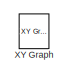
[diagram: root canvas - part 1/6, top left region]
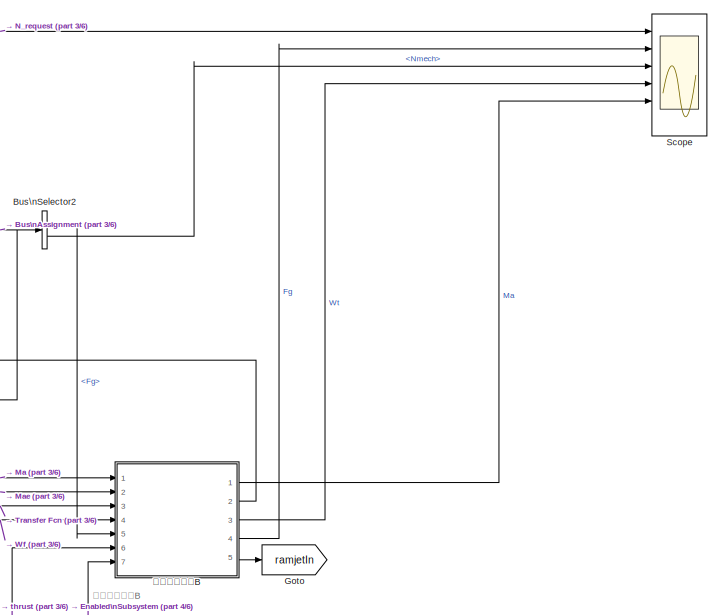
[diagram: root canvas - part 2/6, top right region]
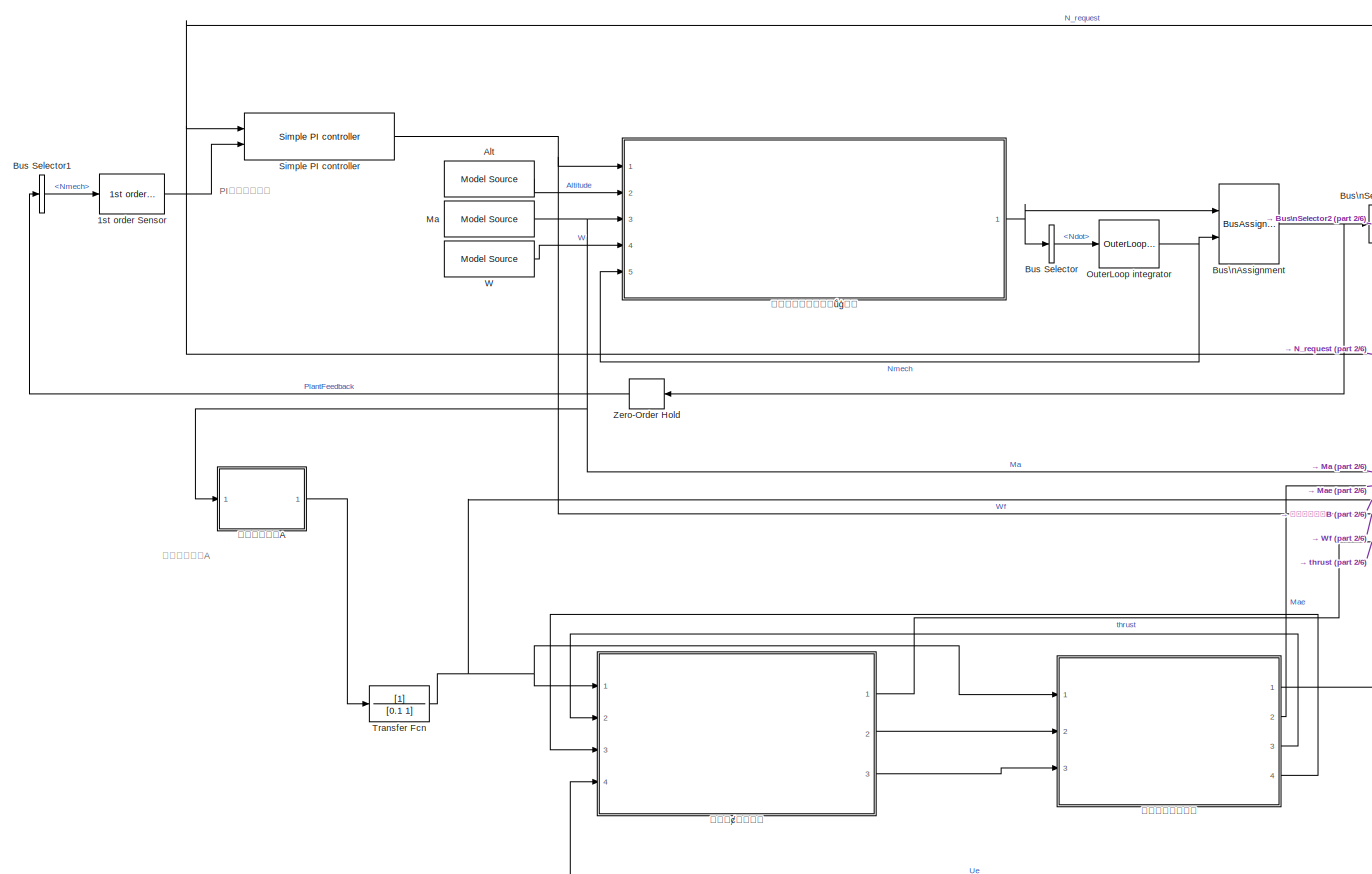
[diagram: root canvas - part 3/6, top center region]
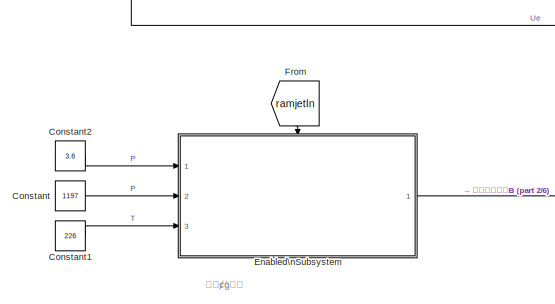
[diagram: root canvas - part 4/6, central region]
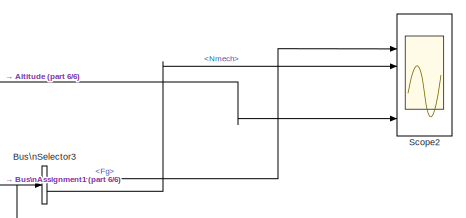
[diagram: root canvas - part 5/6, bottom right region]
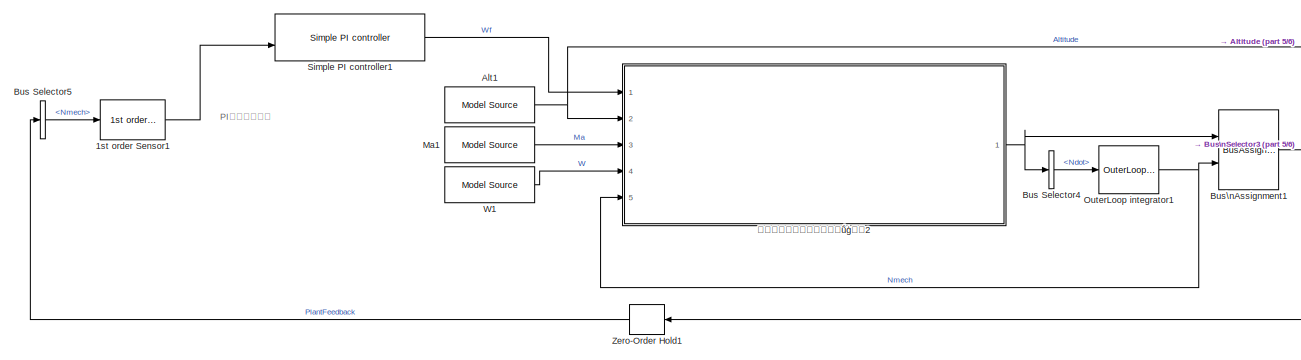
[diagram: root canvas - part 6/6, bottom center region]
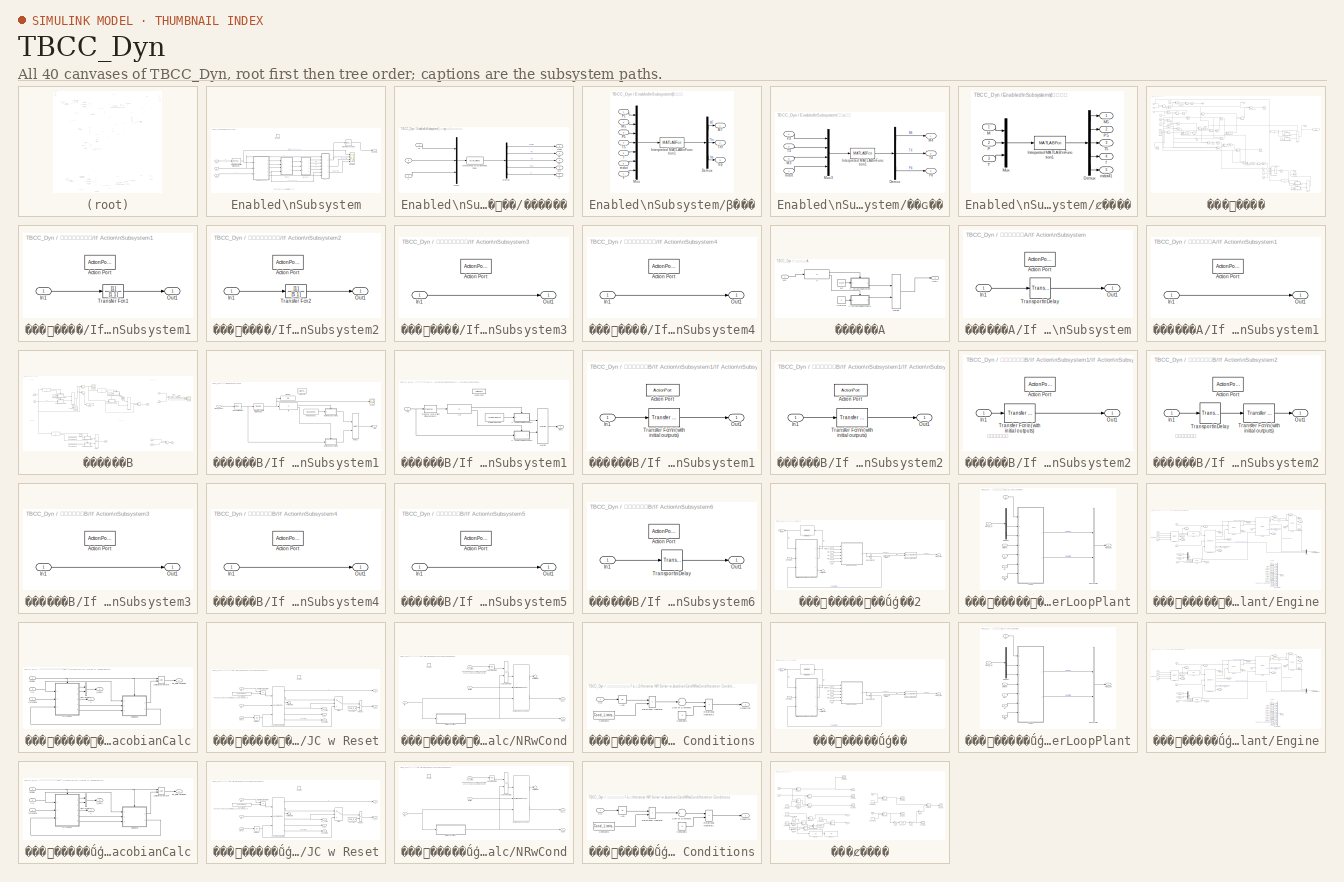
[diagram: thumbnail index - all 40 canvases of the model, root first then tree order]
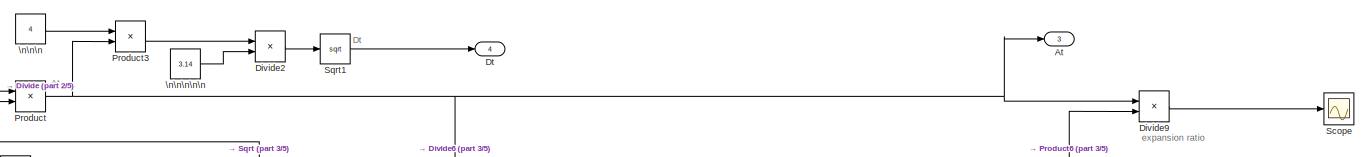
[diagram: ���߶���� - part 1/5, top center region]
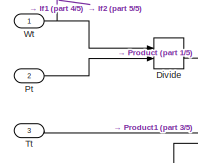
[diagram: ���߶���� - part 2/5, top left region]
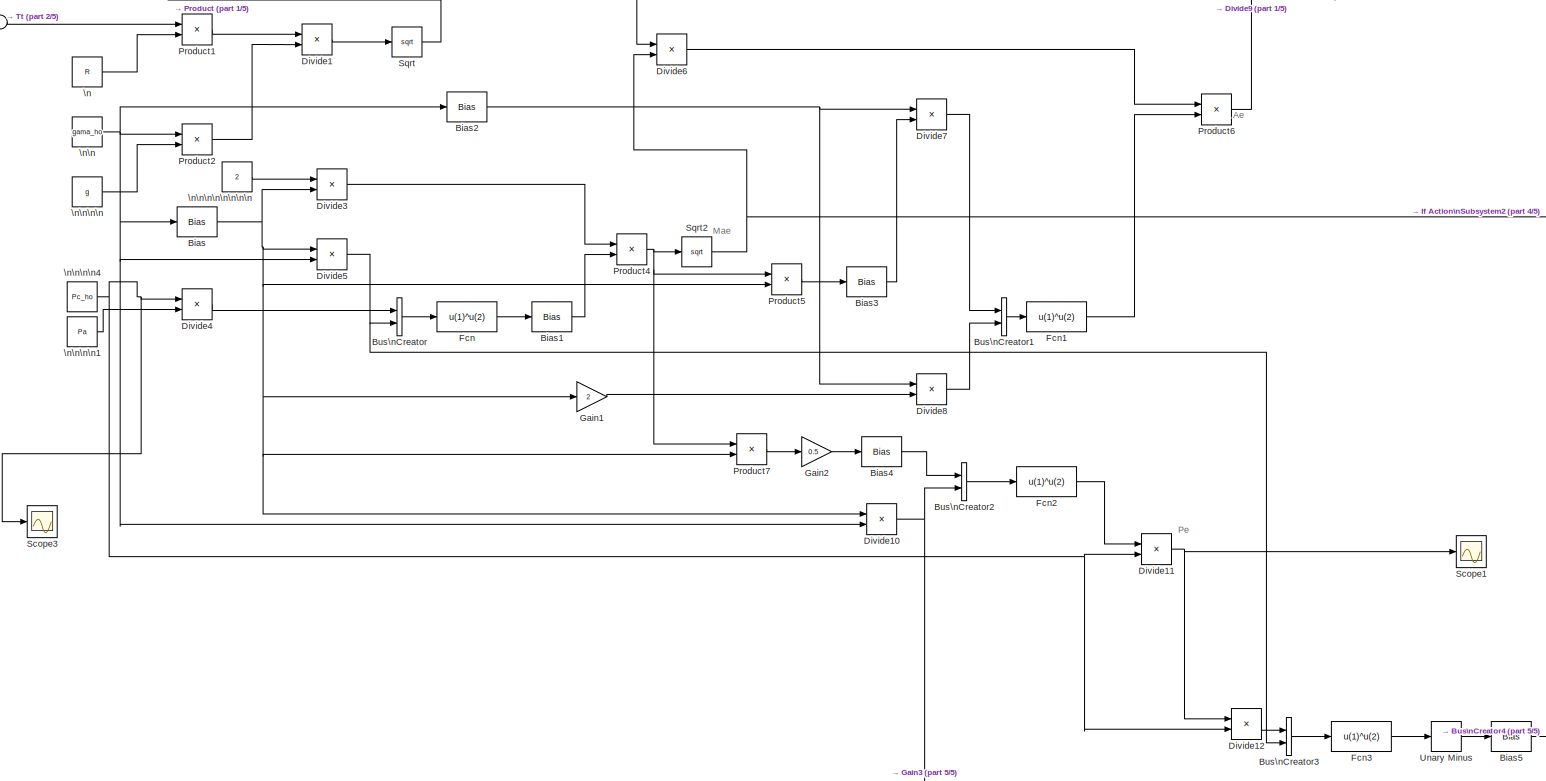
[diagram: ���߶���� - part 3/5, central region]
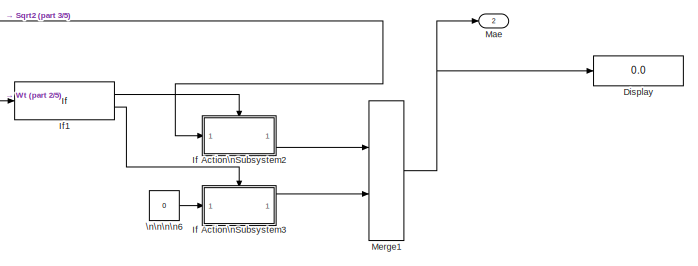
[diagram: ���߶���� - part 4/5, middle right region]
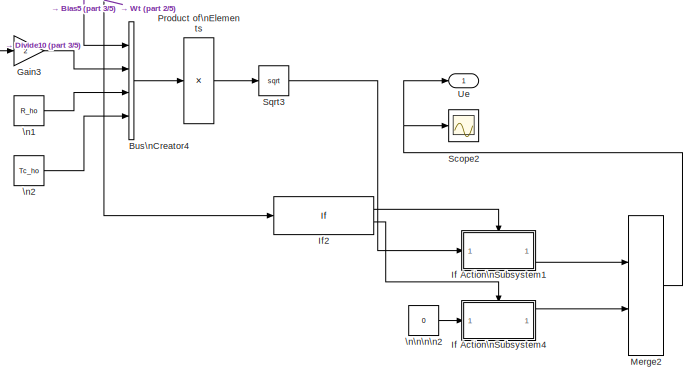
[diagram: ���߶���� - part 5/5, bottom right region]
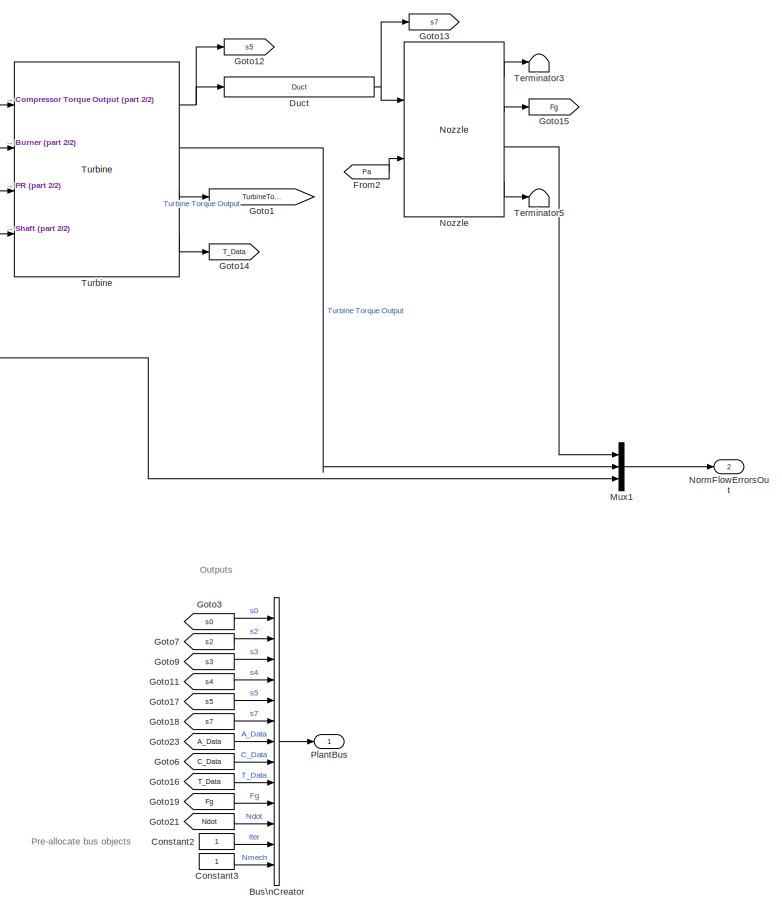
[diagram: ���緢�����ڲ��ṹģ��2/InnerLoopPlant/Engine - part 1/2, right side, full height]
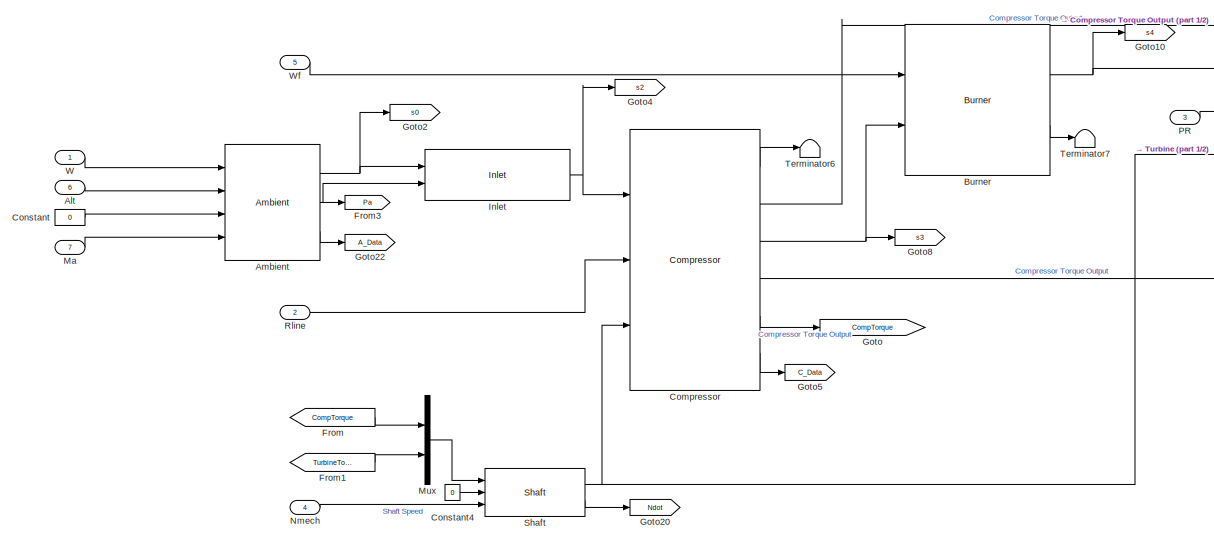
[diagram: ���緢�����ڲ��ṹģ��2/InnerLoopPlant/Engine - part 2/2, middle left region]
MODEL TBCC_Dyn
KIND model
BLOCK [Reference] 1st order  Sensor  REF=Lib_Cntrl_FirstOrderSensor_TMATS/1st order  Sensor
  F_Drift_M = 0
  F_Gain_M = 1
  GN_C_M = 1
  GN_EN_M = off
  GN_MinNoise_M = 0.3
  GN_NST_M = MWS.Solve.T
  Gain_M = 1
  IC_M = MWS.Solve.N_IC
  Ports = [1, 1]
  SID = 618
  Sen_Max_M = 20000
  Sen_Min_M = 0
  SourceBlock = Lib_Cntrl_FirstOrderSensor_TMATS/1st order  Sensor
  SourceType = T-MATS: 1st order sensor Library Block
  Tau_M = 0.05
BLOCK [Reference] 1st order  Sensor1  REF=Lib_Cntrl_FirstOrderSensor_TMATS/1st order  Sensor
  F_Drift_M = 0
  F_Gain_M = 1
  GN_C_M = 1
  GN_EN_M = off
  GN_MinNoise_M = 0.3
  GN_NST_M = MWS.Solve.T
  Gain_M = 1
  IC_M = MWS.Solve.N_IC
  Ports = [1, 1]
  SID = 1632
  Sen_Max_M = 20000
  Sen_Min_M = 0
  SourceBlock = Lib_Cntrl_FirstOrderSensor_TMATS/1st order  Sensor
  SourceType = T-MATS: 1st order sensor Library Block
  Tau_M = 0.05
BLOCK [Reference] Alt  REF=Lib_Solve_ModelSource_TMATS/Model Source
  Ports = [0, 1]
  SID = 604
  SourceBlock = Lib_Solve_ModelSource_TMATS/Model Source
  SourceType = T-MATS: Model Source Library Block
  T_vec_M = MWS.in.t_vec
  input_array_M = MWS.in.Alt
BLOCK [Reference] Alt1  REF=Lib_Solve_ModelSource_TMATS/Model Source
  Ports = [0, 1]
  SID = 1633
  SourceBlock = Lib_Solve_ModelSource_TMATS/Model Source
  SourceType = T-MATS: Model Source Library Block
  T_vec_M = MWS.in.t_vec
  input_array_M = MWS.in.Alt
BLOCK [BusSelector] Bus Selector
  OutputAsBus = off
  OutputSignals = PlantBus.Ndot
  Ports = [1, 1]
  SID = 531
BLOCK [BusSelector] Bus Selector1
  OutputAsBus = off
  OutputSignals = PlantBus.Nmech
  Ports = [1, 1]
  SID = 550
BLOCK [BusSelector] Bus Selector4
  OutputAsBus = off
  OutputSignals = PlantBus.Ndot
  Ports = [1, 1]
  SID = 1636
BLOCK [BusSelector] Bus Selector5
  OutputAsBus = off
  OutputSignals = PlantBus.Nmech
  Ports = [1, 1]
  SID = 1637
BLOCK [BusAssignment] Bus\nAssignment
  AssignedSignals = PlantBus.Nmech
  Ports = [2, 1]
  SID = 758
BLOCK [BusAssignment] Bus\nAssignment1
  AssignedSignals = PlantBus.Nmech
  Ports = [2, 1]
  SID = 1634
BLOCK [BusSelector] Bus\nSelector2
  OutputAsBus = off
  OutputSignals = PlantBus.Fg,PlantBus.Nmech
  Ports = [1, 2]
  SID = 781
BLOCK [BusSelector] Bus\nSelector3
  OutputAsBus = off
  OutputSignals = PlantBus.Fg,PlantBus.Nmech
  Ports = [1, 2]
  SID = 1635
BLOCK [Constant] Constant
  SID = 1760
  Value = 1197
BLOCK [Constant] Constant1
  SID = 1761
  Value = 226
BLOCK [Constant] Constant2
  SID = 1762
  Value = 3.6
BLOCK [SubSystem] Enabled\nSubsystem
  Ports = [3, 1, 1]
  RequestExecContextInheritance = off
  SID = 1535
  TreatAsAtomicUnit = on
BLOCK [EnablePort] Enabled\nSubsystem/Enable
  Ports = []
  SID = 1537
BLOCK [Inport] Enabled\nSubsystem/In1
  IconDisplay = Port number
  SID = 1836
BLOCK [Inport] Enabled\nSubsystem/In2
  IconDisplay = Port number
  Port = 2
  SID = 1837
BLOCK [Inport] Enabled\nSubsystem/In3
  IconDisplay = Port number
  Port = 3
  SID = 1838
BLOCK [Outport] Enabled\nSubsystem/Ma_ram1
  IconDisplay = Port number
  SID = 1816
BLOCK [Scope] Enabled\nSubsystem/Scope1
  Floating = off
  NumInputPorts = 4
  Ports = [4]
  SID = 1763
  ScopeSpecificationString = Simulink.scopes.TimeScopeBlockCfg('CurrentConfiguration', extmgr.ConfigurationSet(extmgr.Configuration('Core','General UI',true,'FigureColor',[1 1 1]),extmgr.Configuration('Core','Source UI',true),extmgr.Configuration('Sources','WiredSimulink',true,'DataLoggingVariableName','ScopeData1'),extmgr.Configuration('Visuals','Time Domain',true,'SerializedDisplays',{struct('MinYLimReal','2.54346','MaxYLim...<+3605ch>
BLOCK [SignalConversion] Enabled\nSubsystem/Signal\nConversion
  OverrideOpt = off
  SID = 1765
BLOCK [Reference] Enabled\nSubsystem/Transfer Fcn\n(with initial outputs)  REF=simulink_extras/Additional\nLinear/Transfer Fcn\n(with initial outputs)
  D = [2  1]
  N = [1]
  Ports = [1, 1]
  SID = 1766
  SourceBlock = simulink_extras/Additional\nLinear/Transfer Fcn\n(with initial outputs)
  SourceProductBaseCode = SL
  SourceProductName = Simulink
  SourceType = Transfer Function with Initial Outputs
  U0 = 0
  Y0 = 2.6
BLOCK [SubSystem] Enabled\nSubsystem/À<copyright redacted>
  Ports = [4, 3]
  RequestExecContextInheritance = off
  SID = 1793
BLOCK [Demux] Enabled\nSubsystem/À<copyright redacted>
  DisplayOption = bar
  Outputs = 3
  Ports = [1, 3]
  SID = 1798
BLOCK [MATLABFcn] Enabled\nSubsystem/À<copyright redacted>\nFunction1
  MATLABFcn = diffuser(u(1),u(2),u(3),u(4))
  OutputDimensions = 3
  Ports = [1, 1]
  SID = 1799
BLOCK [Inport] Enabled\nSubsystem/À<copyright redacted>
  IconDisplay = Port number
  Port = 3
  SID = 1796
BLOCK [Outport] Enabled\nSubsystem/À<copyright redacted>
  IconDisplay = Port number
  SID = 1801
BLOCK [Mux] Enabled\nSubsystem/À<copyright redacted>
  DisplayOption = bar
  Ports = [4, 1]
  SID = 1800
BLOCK [Inport] Enabled\nSubsystem/À<copyright redacted>
  IconDisplay = Port number
  SID = 1794
BLOCK [Outport] Enabled\nSubsystem/À<copyright redacted>
  IconDisplay = Port number
  Port = 3
  SID = 1803
BLOCK [Inport] Enabled\nSubsystem/À<copyright redacted>
  IconDisplay = Port number
  Port = 2
  SID = 1795
BLOCK [Outport] Enabled\nSubsystem/À<copyright redacted>
  IconDisplay = Port number
  Port = 2
  SID = 1802
BLOCK [Inport] Enabled\nSubsystem/À<copyright redacted>
  IconDisplay = Port number
  Port = 4
  SID = 1797
BLOCK [SubSystem] Enabled\nSubsystem/前体压缩//½øÆøµÀ
  Ports = [3, 5]
  RequestExecContextInheritance = off
  SID = 1767
BLOCK [Demux] Enabled\nSubsystem/前体压缩//½øÆøµÀ/Demux
  DisplayOption = bar
  Outputs = 5
  Ports = [1, 5]
  SID = 1771
BLOCK [Outport] Enabled\nSubsystem/前体压缩//½øÆøµÀ/F
  IconDisplay = Port number
  Port = 5
  SID = 1778
BLOCK [MATLABFcn] Enabled\nSubsystem/前体压缩//½øÆøµÀ/Interpreted MATLAB\nFunction1
  MATLABFcn = inlet_v(u(1),u(2),u(3))
  OutputDimensions = 5
  Ports = [1, 1]
  SID = 1772
BLOCK [Inport] Enabled\nSubsystem/前体压缩//½øÆøµÀ/M
  IconDisplay = Port number
  SID = 1768
BLOCK [Outport] Enabled\nSubsystem/前体压缩//½øÆøµÀ/M3
  IconDisplay = Port number
  Port = 3
  SID = 1776
BLOCK [Mux] Enabled\nSubsystem/前体压缩//½øÆøµÀ/Mux3
  DisplayOption = bar
  Inputs = 3
  Ports = [3, 1]
  SID = 1773
BLOCK [Inport] Enabled\nSubsystem/前体压缩//½øÆøµÀ/P
  IconDisplay = Port number
  Port = 2
  SID = 1769
BLOCK [Outport] Enabled\nSubsystem/前体压缩//½øÆøµÀ/P3
  IconDisplay = Port number
  SID = 1774
BLOCK [Inport] Enabled\nSubsystem/前体压缩//½øÆøµÀ/T
  IconDisplay = Port number
  Port = 3
  SID = 1770
BLOCK [Outport] Enabled\nSubsystem/前体压缩//½øÆøµÀ/T3
  IconDisplay = Port number
  Port = 2
  SID = 1775
BLOCK [Outport] Enabled\nSubsystem/前体压缩//½øÆøµÀ/mdot
  IconDisplay = Port number
  Port = 4
  SID = 1777
BLOCK [SubSystem] Enabled\nSubsystem/È¼ÉÕÊÒ
  Ports = [3, 5]
  RequestExecContextInheritance = off
  SID = 1804
BLOCK [Demux] Enabled\nSubsystem/È¼ÉÕÊÒ/Demux
  DisplayOption = bar
  Outputs = 5
  Ports = [1, 5]
  SID = 1808
BLOCK [MATLABFcn] Enabled\nSubsystem/È¼ÉÕÊÒ/Interpreted MATLAB\nFunction1
  MATLABFcn = combustion(u(1),u(2),u(3))
  OutputDimensions = 5
  Ports = [1, 1]
  SID = 1809
BLOCK [Inport] Enabled\nSubsystem/È¼ÉÕÊÒ/M
  IconDisplay = Port number
  SID = 1805
BLOCK [Outport] Enabled\nSubsystem/È¼ÉÕÊÒ/M5
  IconDisplay = Port number
  SID = 1811
BLOCK [Mux] Enabled\nSubsystem/È¼ÉÕÊÒ/Mux
  DisplayOption = bar
  Inputs = 3
  Ports = [3, 1]
  SID = 1810
BLOCK [Inport] Enabled\nSubsystem/È¼ÉÕÊÒ/P
  IconDisplay = Port number
  Port = 2
  SID = 1806
BLOCK [Outport] Enabled\nSubsystem/È¼ÉÕÊÒ/P5
  IconDisplay = Port number
  Port = 2
  SID = 1812
BLOCK [Inport] Enabled\nSubsystem/È¼ÉÕÊÒ/T
  IconDisplay = Port number
  Port = 3
  SID = 1807
BLOCK [Outport] Enabled\nSubsystem/È¼ÉÕÊÒ/T5
  IconDisplay = Port number
  Port = 3
  SID = 1813
BLOCK [Outport] Enabled\nSubsystem/È¼ÉÕÊÒ/f
  IconDisplay = Port number
  Port = 4
  SID = 1814
BLOCK [Outport] Enabled\nSubsystem/È¼ÉÕÊÒ/mdot41
  IconDisplay = Port number
  Port = 5
  SID = 1815
BLOCK [SubSystem] Enabled\nSubsystem/尾喷管
  Ports = [7, 3]
  RequestExecContextInheritance = off
  SID = 1779
BLOCK [Demux] Enabled\nSubsystem/尾喷管/Demux
  DisplayOption = bar
  Outputs = 3
  Ports = [1, 3]
  SID = 1787
BLOCK [Inport] Enabled\nSubsystem/尾喷管/F
  IconDisplay = Port number
  Port = 7
  SID = 1786
BLOCK [MATLABFcn] Enabled\nSubsystem/尾喷管/Interpreted MATLAB\nFunction1
  MATLABFcn = nozzle(u(1),u(2),u(3),u(4),u(5),u(6),u(7))
  OutputDimensions = 3
  Ports = [1, 1]
  SID = 1788
BLOCK [Outport] Enabled\nSubsystem/尾喷管/Isp
  IconDisplay = Port number
  Port = 3
  SID = 1792
BLOCK [Inport] Enabled\nSubsystem/尾喷管/M5
  IconDisplay = Port number
  Port = 2
  SID = 1781
BLOCK [Outport] Enabled\nSubsystem/尾喷管/M7
  IconDisplay = Port number
  SID = 1790
BLOCK [Mux] Enabled\nSubsystem/尾喷管/Mux
  DisplayOption = bar
  Inputs = 7
  Ports = [7, 1]
  SID = 1789
BLOCK [Inport] Enabled\nSubsystem/尾喷管/P1
  IconDisplay = Port number
  SID = 1780
BLOCK [Inport] Enabled\nSubsystem/尾喷管/P5
  IconDisplay = Port number
  Port = 3
  SID = 1782
BLOCK [Inport] Enabled\nSubsystem/尾喷管/T5
  IconDisplay = Port number
  Port = 4
  SID = 1783
BLOCK [Outport] Enabled\nSubsystem/尾喷管/Thr
  IconDisplay = Port number
  Port = 2
  SID = 1791
BLOCK [Inport] Enabled\nSubsystem/尾喷管/f
  IconDisplay = Port number
  Port = 5
  SID = 1784
BLOCK [Inport] Enabled\nSubsystem/尾喷管/mdot
  IconDisplay = Port number
  Port = 6
  SID = 1785
BLOCK [From] From
  GotoTag = ramjetIn
  SID = 1834
BLOCK [Goto] Goto
  GotoTag = ramjetIn
  SID = 1835
BLOCK [Reference] Ma  REF=Lib_Solve_ModelSource_TMATS/Model Source
  Ports = [0, 1]
  SID = 780
  SourceBlock = Lib_Solve_ModelSource_TMATS/Model Source
  SourceType = T-MATS: Model Source Library Block
  T_vec_M = MWS.in.t_vec
  input_array_M = MWS.in.Ma
BLOCK [Reference] Ma1  REF=Lib_Solve_ModelSource_TMATS/Model Source
  Ports = [0, 1]
  SID = 1638
  SourceBlock = Lib_Solve_ModelSource_TMATS/Model Source
  SourceType = T-MATS: Model Source Library Block
  T_vec_M = MWS.in.t_vec
  input_array_M = MWS.in.Ma
BLOCK [Reference] OuterLoop integrator  REF=Lib_Solve_OuterLoopIntegrator_TMATS/OuterLoop integrator
  OL_IC_M = MWS.Solve.N_IC
  Ports = [1, 1]
  SID = 581
  SourceBlock = Lib_Solve_OuterLoopIntegrator_TMATS/OuterLoop integrator
  SourceType = T-MATS: OuterLoop Integrator Library Block
BLOCK [Reference] OuterLoop integrator1  REF=Lib_Solve_OuterLoopIntegrator_TMATS/OuterLoop integrator
  OL_IC_M = MWS.Solve.N_IC
  Ports = [1, 1]
  SID = 1639
  SourceBlock = Lib_Solve_OuterLoopIntegrator_TMATS/OuterLoop integrator
  SourceType = T-MATS: OuterLoop Integrator Library Block
BLOCK [Scope] Scope
  Floating = off
  NumInputPorts = 6
  Ports = [6]
  SID = 802
  ScopeSpecificationString = Simulink.scopes.TimeScopeBlockCfg('CurrentConfiguration', extmgr.ConfigurationSet(extmgr.Configuration('Core','General UI',true,'FigureColor',[1 1 1]),extmgr.Configuration('Core','Source UI',true),extmgr.Configuration('Sources','WiredSimulink',true,'DataLoggingVariableName','ScopeData1'),extmgr.Configuration('Visuals','Time Domain',true,'SerializedDisplays',{struct('MinYLimReal','3669.16854','MaxY...<+5750ch>
BLOCK [Scope] Scope2
  Floating = off
  NumInputPorts = 6
  Ports = [6]
  SID = 1640
  ScopeSpecificationString = Simulink.scopes.TimeScopeBlockCfg('CurrentConfiguration', extmgr.ConfigurationSet(extmgr.Configuration('Core','General UI',true,'FigureColor',[1 1 1]),extmgr.Configuration('Core','Source UI',true),extmgr.Configuration('Sources','WiredSimulink',true,'DataLoggingVariableName','ScopeData1'),extmgr.Configuration('Visuals','Time Domain',true,'SerializedDisplays',{struct('MinYLimReal','-1.00000','MaxYLi...<+6074ch>
BLOCK [Reference] Simple PI controller  REF=Lib_Cntrl_SimplePIcontroller_TMATS/Simple PI controller
  Ki_M = 0.1/2
  Kp_M = 0.05/2
  PI_IC_M = 3
  Ports = [2, 1]
  SID = 671
  SourceBlock = Lib_Cntrl_SimplePIcontroller_TMATS/Simple PI controller
  SourceType = T-MATS: Simple PI controller Library Block
BLOCK [Reference] Simple PI controller1  REF=Lib_Cntrl_SimplePIcontroller_TMATS/Simple PI controller
  Ki_M = 0.1/2
  Kp_M = 0.05/2
  PI_IC_M = 3
  Ports = [2, 1]
  SID = 1641
  SourceBlock = Lib_Cntrl_SimplePIcontroller_TMATS/Simple PI controller
  SourceType = T-MATS: Simple PI controller Library Block
BLOCK [TransferFcn] Transfer Fcn
  Denominator = [0.1 1]
  SID = 879
BLOCK [Reference] W  REF=Lib_Solve_ModelSource_TMATS/Model Source
  Ports = [0, 1]
  SID = 801
  SourceBlock = Lib_Solve_ModelSource_TMATS/Model Source
  SourceType = T-MATS: Model Source Library Block
  T_vec_M = MWS.in.t_vec
  input_array_M = MWS.in.W
BLOCK [Reference] W1  REF=Lib_Solve_ModelSource_TMATS/Model Source
  Ports = [0, 1]
  SID = 1642
  SourceBlock = Lib_Solve_ModelSource_TMATS/Model Source
  SourceType = T-MATS: Model Source Library Block
  T_vec_M = MWS.in.t_vec
  input_array_M = MWS.in.W
BLOCK [Reference] XY Graph  REF=simulink/Sinks/XY Graph
  IOType = viewer
  Ports = [2]
  SID = 795
  SourceBlock = simulink/Sinks/XY Graph
  SourceProductBaseCode = SL
  SourceProductName = Simulink
  SourceType = XY scope.
  st = -1
  xmax = 1
  xmin = -1
  ymax = 1
  ymin = -1
BLOCK [ZeroOrderHold] Zero-Order Hold
  SID = 503
  SampleTime = MWS.Solve.T
BLOCK [ZeroOrderHold] Zero-Order Hold1
  SID = 1643
  SampleTime = MWS.Solve.T
BLOCK [SubSystem] 火箭燃烧室
  Ports = [4, 3]
  RequestExecContextInheritance = off
  SID = 881
BLOCK [Inport] 火箭燃烧室/At
  IconDisplay = Port number
  Port = 2
  SID = 883
BLOCK [Bias] 火箭燃烧室/Bias
  Bias = 1
  SID = 886
  SaturateOnIntegerOverflow = off
BLOCK [Bias] 火箭燃烧室/Bias1
  Bias = 1
  SID = 887
  SaturateOnIntegerOverflow = off
BLOCK [Bias] 火箭燃烧室/Bias2
  Bias = -1
  SID = 888
  SaturateOnIntegerOverflow = off
BLOCK [BusCreator] 火箭燃烧室/Bus\nCreator
  DisplayOption = bar
  InheritFromInputs = on
  Inputs = 2
  Ports = [2, 1]
  SID = 889
BLOCK [Constant] 火箭燃烧室/Constant
  SID = 890
  SampleTime = 0.6
  Value = r_ho
BLOCK [Constant] 火箭燃烧室/Constant1
  SID = 891
  SampleTime = 0.6
  Value = Pc_ho
BLOCK [Constant] 火箭燃烧室/Constant2
  SID = 892
  SampleTime = 0.6
  Value = Tc_ho
BLOCK [Constant] 火箭燃烧室/Constant4
  SID = 893
  SampleTime = 0.6
  Value = gama_ho
BLOCK [Constant] 火箭燃烧室/Constant6
  SID = 894
  SampleTime = 0.6
  Value = 2
BLOCK [Constant] 火箭燃烧室/Constant7
  SID = 895
  SampleTime = 0.6
  Value = L_ho
BLOCK [Constant] 火箭燃烧室/Constant8
  SID = 896
  SampleTime = 0.6
  Value = 5
BLOCK [Display] 火箭燃烧室/Display
  Decimation = 2
  Ports = [1]
  SID = 930
BLOCK [Display] 火箭燃烧室/Display1
  Decimation = 2
  Ports = [1]
  SID = 932
BLOCK [Product] 火箭燃烧室/Divide
  InputSameDT = off
  Inputs = */
  OutDataTypeStr = Inherit: Inherit via internal rule
  Ports = [2, 1]
  RndMeth = Floor
  SID = 897
  SaturateOnIntegerOverflow = off
BLOCK [Product] 火箭燃烧室/Divide1
  InputSameDT = off
  Inputs = */
  OutDataTypeStr = Inherit: Inherit via internal rule
  Ports = [2, 1]
  RndMeth = Floor
  SID = 898
  SaturateOnIntegerOverflow = off
BLOCK [Product] 火箭燃烧室/Divide2
  InputSameDT = off
  Inputs = */
  OutDataTypeStr = Inherit: Inherit via internal rule
  Ports = [2, 1]
  RndMeth = Floor
  SID = 899
  SaturateOnIntegerOverflow = off
BLOCK [Product] 火箭燃烧室/Divide3
  InputSameDT = off
  Inputs = */
  OutDataTypeStr = Inherit: Inherit via internal rule
  Ports = [2, 1]
  RndMeth = Floor
  SID = 900
  SaturateOnIntegerOverflow = off
BLOCK [Product] 火箭燃烧室/Divide4
  InputSameDT = off
  Inputs = */
  OutDataTypeStr = Inherit: Inherit via internal rule
  Ports = [2, 1]
  RndMeth = Floor
  SID = 901
  SaturateOnIntegerOverflow = off
BLOCK [Inport] 火箭燃烧室/Dt
  IconDisplay = Port number
  Port = 3
  SID = 884
BLOCK [Fcn] 火箭燃烧室/Fcn
  Expr = u(1)^u(2)
  SID = 902
BLOCK [Fcn] 火箭燃烧室/Fcn1
  Expr = u(1)^2
  SID = 903
BLOCK [Gain] 火箭燃烧室/Gain
  Gain = 0.5
  OutDataTypeStr = Inherit: Inherit via internal rule
  ParamDataTypeStr = Inherit: Inherit via internal rule
  SID = 904
  SaturateOnIntegerOverflow = off
BLOCK [Gain] 火箭燃烧室/Gain1
  Gain = 3.14
  OutDataTypeStr = Inherit: Inherit via internal rule
  ParamDataTypeStr = Inherit: Inherit via internal rule
  SID = 905
  SaturateOnIntegerOverflow = off
BLOCK [Gain] 火箭燃烧室/Gain2
  Gain = 1.1
  OutDataTypeStr = Inherit: Inherit via internal rule
  ParamDataTypeStr = Inherit: Inherit via internal rule
  SID = 906
  SaturateOnIntegerOverflow = off
BLOCK [Product] 火箭燃烧室/Product
  InputSameDT = off
  OutDataTypeStr = Inherit: Inherit via internal rule
  Ports = [2, 1]
  RndMeth = Floor
  SID = 907
  SaturateOnIntegerOverflow = off
BLOCK [Product] 火箭燃烧室/Product1
  InputSameDT = off
  OutDataTypeStr = Inherit: Inherit via internal rule
  Ports = [2, 1]
  RndMeth = Floor
  SID = 908
  SaturateOnIntegerOverflow = off
BLOCK [Product] 火箭燃烧室/Product3
  InputSameDT = off
  OutDataTypeStr = Inherit: Inherit via internal rule
  Ports = [2, 1]
  RndMeth = Floor
  SID = 909
  SaturateOnIntegerOverflow = off
BLOCK [Product] 火箭燃烧室/Product4
  InputSameDT = off
  OutDataTypeStr = Inherit: Inherit via internal rule
  Ports = [2, 1]
  RndMeth = Floor
  SID = 910
  SaturateOnIntegerOverflow = off
BLOCK [Product] 火箭燃烧室/Product5
  InputSameDT = off
  OutDataTypeStr = Inherit: Inherit via internal rule
  Ports = [2, 1]
  RndMeth = Floor
  SID = 911
  SaturateOnIntegerOverflow = off
BLOCK [Product] 火箭燃烧室/Product6
  InputSameDT = off
  OutDataTypeStr = Inherit: Inherit via internal rule
  Ports = [2, 1]
  RndMeth = Floor
  SID = 912
  SaturateOnIntegerOverflow = off
BLOCK [Outport] 火箭燃烧室/Pt
  IconDisplay = Port number
  Port = 2
  SID = 921
BLOCK [Scope] 火箭燃烧室/Scope
  Floating = off
  NumInputPorts = 1
  Ports = [1]
  SID = 913
  ScopeSpecificationString = Simulink.scopes.TimeScopeBlockCfg('CurrentConfiguration', extmgr.ConfigurationSet(extmgr.Configuration('Core','General UI',true),extmgr.Configuration('Core','Source UI',true),extmgr.Configuration('Sources','WiredSimulink',true,'DataLoggingVariableName','ScopeData1'),extmgr.Configuration('Visuals','Time Domain',true,'SerializedDisplays',{struct('MinYLimReal','0.000035','MaxYLimReal','0.000055','YLa...<+1417ch>
BLOCK [Scope] 火箭燃烧室/Scope1
  Floating = off
  NumInputPorts = 1
  Ports = [1]
  SID = 914
  ScopeSpecificationString = Simulink.scopes.TimeScopeBlockCfg('CurrentConfiguration', extmgr.ConfigurationSet(extmgr.Configuration('Core','General UI',true),extmgr.Configuration('Core','Source UI',true),extmgr.Configuration('Sources','WiredSimulink',true,'DataLoggingVariableName','ScopeData3'),extmgr.Configuration('Visuals','Time Domain',true,'SerializedDisplays',{struct('MinYLimReal','-0.0236','MaxYLimReal','0.21239','YLabe...<+1365ch>
BLOCK [Scope] 火箭燃烧室/Scope2
  Floating = off
  NumInputPorts = 1
  Ports = [1]
  SID = 915
  ScopeSpecificationString = Simulink.scopes.TimeScopeBlockCfg('CurrentConfiguration', extmgr.ConfigurationSet(extmgr.Configuration('Core','General UI',true),extmgr.Configuration('Core','Source UI',true),extmgr.Configuration('Sources','WiredSimulink',true,'DataLoggingVariableName','ScopeData4'),extmgr.Configuration('Visuals','Time Domain',true,'SerializedDisplays',{struct('MinYLimReal','0.00012','MaxYLimReal','0.00212','YLabe...<+1362ch>
BLOCK [Scope] 火箭燃烧室/Scope3
  Floating = off
  NumInputPorts = 1
  Ports = [1]
  SID = 916
  ScopeSpecificationString = Simulink.scopes.TimeScopeBlockCfg('CurrentConfiguration', extmgr.ConfigurationSet(extmgr.Configuration('Core','General UI',true),extmgr.Configuration('Core','Source UI',true),extmgr.Configuration('Sources','WiredSimulink',true,'DataLoggingVariableName','ScopeData5'),extmgr.Configuration('Visuals','Time Domain',true,'SerializedDisplays',{struct('MinYLimReal','0.02636','MaxYLimReal','0.04636','YLabe...<+1364ch>
BLOCK [Scope] 火箭燃烧室/Scope4
  Floating = off
  NumInputPorts = 1
  Ports = [1]
  SID = 917
  ScopeSpecificationString = Simulink.scopes.TimeScopeBlockCfg('CurrentConfiguration', extmgr.ConfigurationSet(extmgr.Configuration('Core','General UI',true),extmgr.Configuration('Core','Source UI',true),extmgr.Configuration('Sources','WiredSimulink',true,'DataLoggingVariableName','ScopeData1'),extmgr.Configuration('Visuals','Time Domain',true,'SerializedDisplays',{struct('MinYLimReal','-0.19083','MaxYLimReal','1.7175','YLabe...<+1362ch>
BLOCK [Scope] 火箭燃烧室/Scope5
  Floating = off
  NumInputPorts = 1
  Ports = [1]
  SID = 918
  ScopeSpecificationString = Simulink.scopes.TimeScopeBlockCfg('CurrentConfiguration', extmgr.ConfigurationSet(extmgr.Configuration('Core','General UI',true),extmgr.Configuration('Core','Source UI',true),extmgr.Configuration('Sources','WiredSimulink',true,'DataLoggingVariableName','ScopeData2'),extmgr.Configuration('Visuals','Time Domain',true,'SerializedDisplays',{struct('MinYLimReal','-0.66792','MaxYLimReal','6.01125','YLab...<+1388ch>
BLOCK [Scope] 火箭燃烧室/Scope6
  Floating = off
  NumInputPorts = 1
  Ports = [1]
  SID = 919
  ScopeSpecificationString = Simulink.scopes.TimeScopeBlockCfg('CurrentConfiguration', extmgr.ConfigurationSet(extmgr.Configuration('Core','General UI',true),extmgr.Configuration('Core','Source UI',true),extmgr.Configuration('Sources','WiredSimulink',true,'DataLoggingVariableName','ScopeData1'),extmgr.Configuration('Visuals','Time Domain',true,'SerializedDisplays',{struct('MinYLimReal','-1874.40741','MaxYLimReal','16869.66665...<+1392ch>
BLOCK [Outport] 火箭燃烧室/Thrust
  IconDisplay = Port number
  SID = 920
BLOCK [Outport] 火箭燃烧室/Tt
  IconDisplay = Port number
  Port = 3
  SID = 922
BLOCK [Inport] 火箭燃烧室/Ue
  IconDisplay = Port number
  Port = 4
  SID = 885
BLOCK [Inport] 火箭燃烧室/Wt
  IconDisplay = Port number
  SID = 882
BLOCK [SubSystem] 控制器A
  Ports = [1, 1]
  RequestExecContextInheritance = off
  SID = 1079
BLOCK [If] 控制器A/If
  IfExpression = u1 >= 1
  Ports = [1, 2]
  SID = 948
BLOCK [SubSystem] 控制器A/If Action\nSubsystem
  Ports = [1, 1, 0, 0, 0, 0, 0, 1]
  RequestExecContextInheritance = off
  SID = 949
  TreatAsAtomicUnit = on
BLOCK [ActionPort] 控制器A/If Action\nSubsystem/Action Port
  ActionPortLabel = if(u1 >= 1)
  SID = 951
BLOCK [Inport] 控制器A/If Action\nSubsystem/In1
  IconDisplay = Port number
  SID = 950
BLOCK [Outport] 控制器A/If Action\nSubsystem/Out1
  IconDisplay = Port number
  SID = 952
BLOCK [TransportDelay] 控制器A/If Action\nSubsystem/Transport\nDelay
  DelayTime = 0
  Ports = [1, 1]
  SID = 1078
BLOCK [SubSystem] 控制器A/If Action\nSubsystem1
  Ports = [1, 1, 0, 0, 0, 0, 0, 1]
  RequestExecContextInheritance = off
  SID = 953
  TreatAsAtomicUnit = on
BLOCK [ActionPort] 控制器A/If Action\nSubsystem1/Action Port
  ActionPortLabel = else
  SID = 955
BLOCK [Inport] 控制器A/If Action\nSubsystem1/In1
  IconDisplay = Port number
  SID = 954
BLOCK [Outport] 控制器A/If Action\nSubsystem1/Out1
  IconDisplay = Port number
  SID = 956
BLOCK [Inport] 控制器A/Ma
  IconDisplay = Port number
  SID = 1080
BLOCK [Merge] 控制器A/Merge
  Ports = [2, 1]
  SID = 957
BLOCK [Outport] 控制器A/Out1
  IconDisplay = Port number
  SID = 1081
BLOCK [Constant] 控制器A/Wt
  SID = 880
  SampleTime = 0.6
  Value = Wt_ho
BLOCK [Constant] 控制器A/\n\n\n\n3
  SID = 947
  SampleTime = 0.6
  Value = 0
BLOCK [SubSystem] 控制器B
  Ports = [7, 5]
  RequestExecContextInheritance = off
  SID = 1036
BLOCK [Display] 控制器B/Display
  Decimation = 1
  Ports = [1]
  SID = 1043
BLOCK [SubSystem] 控制器B/If Action\nSubsystem1
  Ports = [1, 1, 0, 0, 0, 0, 0, 1]
  RequestExecContextInheritance = off
  SID = 1192
  TreatAsAtomicUnit = on
BLOCK [ActionPort] 控制器B/If Action\nSubsystem1/Action Port
  ActionPortLabel = if(u1 > 0)
  SID = 1194
BLOCK [Display] 控制器B/If Action\nSubsystem1/Display
  Decimation = 1
  Ports = [1]
  SID = 1322
BLOCK [SubSystem] 控制器B/If Action\nSubsystem1/If Action\nSubsystem1
  Ports = [1, 1, 0, 0, 0, 0, 0, 1]
  RequestExecContextInheritance = off
  SID = 1294
  TreatAsAtomicUnit = on
BLOCK [ActionPort] 控制器B/If Action\nSubsystem1/If Action\nSubsystem1/Action Port
  ActionPortLabel = if(u1 <= 0)
  SID = 1296
BLOCK [SubSystem] 控制器B/If Action\nSubsystem1/If Action\nSubsystem1/If Action\nSubsystem1
  Ports = [1, 1, 0, 0, 0, 0, 0, 1]
  RequestExecContextInheritance = off
  SID = 1324
  TreatAsAtomicUnit = on
BLOCK [ActionPort] 控制器B/If Action\nSubsystem1/If Action\nSubsystem1/If Action\nSubsystem1/Action Port
  ActionPortLabel = if(u1 <= 1)
  SID = 1326
BLOCK [Inport] 控制器B/If Action\nSubsystem1/If Action\nSubsystem1/If Action\nSubsystem1/In1
  IconDisplay = Port number
  SID = 1325
BLOCK [Outport] 控制器B/If Action\nSubsystem1/If Action\nSubsystem1/If Action\nSubsystem1/Out1
  IconDisplay = Port number
  SID = 1329
BLOCK [Reference] 控制器B/If Action\nSubsystem1/If Action\nSubsystem1/If Action\nSubsystem1/Transfer Fcn\n(with initial outputs)  REF=simulink_extras/Additional\nLinear/Transfer Fcn\n(with initial outputs)
  D = [10  1]
  N = [1]
  Ports = [1, 1]
  SID = 1328
  SourceBlock = simulink_extras/Additional\nLinear/Transfer Fcn\n(with initial outputs)
  SourceProductBaseCode = SL
  SourceProductName = Simulink
  SourceType = Transfer Function with Initial Outputs
  U0 = 0
  Y0 = 3520
BLOCK [SubSystem] 控制器B/If Action\nSubsystem1/If Action\nSubsystem1/If Action\nSubsystem2
  Ports = [1, 1, 0, 0, 0, 0, 0, 1]
  RequestExecContextInheritance = off
  SID = 1330
  TreatAsAtomicUnit = on
BLOCK [ActionPort] 控制器B/If Action\nSubsystem1/If Action\nSubsystem1/If Action\nSubsystem2/Action Port
  ActionPortLabel = else
  SID = 1332
BLOCK [Inport] 控制器B/If Action\nSubsystem1/If Action\nSubsystem1/If Action\nSubsystem2/In1
  IconDisplay = Port number
  SID = 1331
BLOCK [Outport] 控制器B/If Action\nSubsystem1/If Action\nSubsystem1/If Action\nSubsystem2/Out1
  IconDisplay = Port number
  SID = 1335
BLOCK [Reference] 控制器B/If Action\nSubsystem1/If Action\nSubsystem1/If Action\nSubsystem2/Transfer Fcn\n(with initial outputs)  REF=simulink_extras/Additional\nLinear/Transfer Fcn\n(with initial outputs)
  D = [10  1]
  N = [1]
  Ports = [1, 1]
  SID = 1334
  SourceBlock = simulink_extras/Additional\nLinear/Transfer Fcn\n(with initial outputs)
  SourceProductBaseCode = SL
  SourceProductName = Simulink
  SourceType = Transfer Function with Initial Outputs
  U0 = 0
  Y0 = 7020
BLOCK [If] 控制器B/If Action\nSubsystem1/If Action\nSubsystem1/If3
  IfExpression = u1 <= 1
  Ports = [1, 2]
  SID = 1323
BLOCK [Inport] 控制器B/If Action\nSubsystem1/If Action\nSubsystem1/In1
  IconDisplay = Port number
  SID = 1295
BLOCK [Merge] 控制器B/If Action\nSubsystem1/If Action\nSubsystem1/Merge
  Ports = [2, 1]
  SID = 1341
BLOCK [Reference] 控制器B/If Action\nSubsystem1/If Action\nSubsystem1/Model Source2  REF=Lib_Solve_ModelSource_TMATS/Model Source
  Ports = [0, 1]
  SID = 1340
  SourceBlock = Lib_Solve_ModelSource_TMATS/Model Source
  SourceType = T-MATS: Model Source Library Block
  T_vec_M = MWS.in.t_vec
  input_array_M = MWS.in.Ndmd_stop2
BLOCK [Outport] 控制器B/If Action\nSubsystem1/If Action\nSubsystem1/Out1
  IconDisplay = Port number
  SID = 1298
BLOCK [Reference] 控制器B/If Action\nSubsystem1/If Action\nSubsystem1/Transfer Fcn\n(with initial outputs)  REF=simulink_extras/Additional\nLinear/Transfer Fcn\n(with initial outputs)
  D = [10  1]
  N = [1]
  Ports = [1, 1]
  SID = 1303
  SourceBlock = simulink_extras/Additional\nLinear/Transfer Fcn\n(with initial outputs)
  SourceProductBaseCode = SL
  SourceProductName = Simulink
  SourceType = Transfer Function with Initial Outputs
  U0 = 0
  Y0 = 7020
BLOCK [SubSystem] 控制器B/If Action\nSubsystem1/If Action\nSubsystem2
  Ports = [1, 1, 0, 0, 0, 0, 0, 1]
  RequestExecContextInheritance = off
  SID = 1288
  TreatAsAtomicUnit = on
BLOCK [ActionPort] 控制器B/If Action\nSubsystem1/If Action\nSubsystem2/Action Port
  ActionPortLabel = else
  SID = 1290
BLOCK [Inport] 控制器B/If Action\nSubsystem1/If Action\nSubsystem2/In1
  IconDisplay = Port number
  SID = 1289
BLOCK [Outport] 控制器B/If Action\nSubsystem1/If Action\nSubsystem2/Out1
  IconDisplay = Port number
  SID = 1292
BLOCK [Reference] 控制器B/If Action\nSubsystem1/If Action\nSubsystem2/Transfer Fcn\n(with initial outputs)  REF=simulink_extras/Additional\nLinear/Transfer Fcn\n(with initial outputs)
  D = [10  1]
  N = [1]
  Ports = [1, 1]
  SID = 1291
  SourceBlock = simulink_extras/Additional\nLinear/Transfer Fcn\n(with initial outputs)
  SourceProductBaseCode = SL
  SourceProductName = Simulink
  SourceType = Transfer Function with Initial Outputs
  U0 = 0
  Y0 = 11000
BLOCK [If] 控制器B/If Action\nSubsystem1/If3
  IfExpression = u1 <= 0
  Ports = [1, 2]
  SID = 1286
BLOCK [Merge] 控制器B/If Action\nSubsystem1/Merge2
  InitialOutput = [1]
  Ports = [2, 1]
  SID = 1302
BLOCK [Reference] 控制器B/If Action\nSubsystem1/Model Source1  REF=Lib_Solve_ModelSource_TMATS/Model Source
  Ports = [0, 1]
  SID = 1301
  SourceBlock = Lib_Solve_ModelSource_TMATS/Model Source
  SourceType = T-MATS: Model Source Library Block
  T_vec_M = MWS.in.t_vec
  input_array_M = MWS.in.Ndmd_stop1
BLOCK [Inport] 控制器B/If Action\nSubsystem1/Model_Input
  IconDisplay = Port number
  SID = 1318
BLOCK [Outport] 控制器B/If Action\nSubsystem1/Out1
  IconDisplay = Port number
  SID = 1196
BLOCK [Scope] 控制器B/If Action\nSubsystem1/Scope
  Floating = off
  NumInputPorts = 1
  Ports = [1]
  SID = 1367
  ScopeSpecificationString = Simulink.scopes.TimeScopeBlockCfg('CurrentConfiguration', extmgr.ConfigurationSet(extmgr.Configuration('Core','General UI',true),extmgr.Configuration('Core','Source UI',true),extmgr.Configuration('Sources','WiredSimulink',true,'DataLoggingVariableName','ScopeData1'),extmgr.Configuration('Visuals','Time Domain',true,'SerializedDisplays',{struct('MinYLimReal','6500.00282','MaxYLimReal','11499.99969'...<+1473ch>
BLOCK [Reference] 控制器B/If Action\nSubsystem1/Transfer Fcn\n(with initial outputs)  REF=simulink_extras/Additional\nLinear/Transfer Fcn\n(with initial outputs)
  D = [10  1]
  N = [1]
  Ports = [1, 1]
  SID = 1319
  SourceBlock = simulink_extras/Additional\nLinear/Transfer Fcn\n(with initial outputs)
  SourceProductBaseCode = SL
  SourceProductName = Simulink
  SourceType = Transfer Function with Initial Outputs
  U0 = 0
  Y0 = 11000
BLOCK [TransportDelay] 控制器B/If Action\nSubsystem1/Transport\nDelay
  DelayTime = 0.4
  InitialOutput = 11000
  Ports = [1, 1]
  SID = 1370
BLOCK [SubSystem] 控制器B/If Action\nSubsystem2
  Ports = [1, 1, 0, 0, 0, 0, 0, 1]
  RequestExecContextInheritance = off
  SID = 1044
  TreatAsAtomicUnit = on
BLOCK [ActionPort] 控制器B/If Action\nSubsystem2/Action Port
  ActionPortLabel = if(u1 > 0)
  SID = 1046
BLOCK [Inport] 控制器B/If Action\nSubsystem2/In1
  IconDisplay = Port number
  SID = 1045
BLOCK [Outport] 控制器B/If Action\nSubsystem2/Out1
  IconDisplay = Port number
  SID = 1047
BLOCK [Reference] 控制器B/If Action\nSubsystem2/Transfer Fcn\n(with initial outputs)  REF=simulink_extras/Additional\nLinear/Transfer Fcn\n(with initial outputs)
  D = [2  1]
  N = [1]
  Ports = [1, 1]
  SID = 1076
  SourceBlock = simulink_extras/Additional\nLinear/Transfer Fcn\n(with initial outputs)
  SourceProductBaseCode = SL
  SourceProductName = Simulink
  SourceType = Transfer Function with Initial Outputs
  U0 = 0
  Y0 = 1
BLOCK [TransportDelay] 控制器B/If Action\nSubsystem2/Transport\nDelay
  DelayTime = 5
  InitialOutput = 1
  Ports = [1, 1]
  SID = 1364
BLOCK [SubSystem] 控制器B/If Action\nSubsystem3
  Ports = [1, 1, 0, 0, 0, 0, 0, 1]
  RequestExecContextInheritance = off
  SID = 1048
  TreatAsAtomicUnit = on
BLOCK [ActionPort] 控制器B/If Action\nSubsystem3/Action Port
  ActionPortLabel = else
  SID = 1050
BLOCK [Inport] 控制器B/If Action\nSubsystem3/In1
  IconDisplay = Port number
  SID = 1049
BLOCK [Outport] 控制器B/If Action\nSubsystem3/Out1
  IconDisplay = Port number
  SID = 1051
BLOCK [SubSystem] 控制器B/If Action\nSubsystem4
  Ports = [1, 1, 0, 0, 0, 0, 0, 1]
  RequestExecContextInheritance = off
  SID = 1198
  TreatAsAtomicUnit = on
BLOCK [ActionPort] 控制器B/If Action\nSubsystem4/Action Port
  ActionPortLabel = else
  SID = 1200
BLOCK [Inport] 控制器B/If Action\nSubsystem4/In1
  IconDisplay = Port number
  SID = 1199
BLOCK [Outport] 控制器B/If Action\nSubsystem4/Out1
  IconDisplay = Port number
  SID = 1201
BLOCK [SubSystem] 控制器B/If Action\nSubsystem5
  Ports = [1, 1, 0, 0, 0, 0, 0, 1]
  RequestExecContextInheritance = off
  SID = 1604
  TreatAsAtomicUnit = on
BLOCK [ActionPort] 控制器B/If Action\nSubsystem5/Action Port
  ActionPortLabel = else
  SID = 1606
BLOCK [Inport] 控制器B/If Action\nSubsystem5/In1
  IconDisplay = Port number
  SID = 1605
BLOCK [Outport] 控制器B/If Action\nSubsystem5/Out1
  IconDisplay = Port number
  SID = 1607
BLOCK [SubSystem] 控制器B/If Action\nSubsystem6
  Ports = [1, 1, 0, 0, 0, 0, 0, 1]
  RequestExecContextInheritance = off
  SID = 1622
  TreatAsAtomicUnit = on
BLOCK [ActionPort] 控制器B/If Action\nSubsystem6/Action Port
  ActionPortLabel = if(u1 > 2.5)
  SID = 1624
BLOCK [Inport] 控制器B/If Action\nSubsystem6/In1
  IconDisplay = Port number
  SID = 1623
BLOCK [Outport] 控制器B/If Action\nSubsystem6/Out1
  IconDisplay = Port number
  SID = 1625
BLOCK [TransportDelay] 控制器B/If Action\nSubsystem6/Transport\nDelay
  DelayTime = 10
  Ports = [1, 1]
  SID = 1631
BLOCK [If] 控制器B/If1
  Ports = [1, 2]
  SID = 1052
BLOCK [If] 控制器B/If2
  Ports = [1, 2]
  SID = 1214
BLOCK [If] 控制器B/If3
  IfExpression = u1 > 2.5
  Ports = [1, 2]
  SID = 1593
BLOCK [Inport] 控制器B/Ma
  IconDisplay = Port number
  SID = 1037
BLOCK [Inport] 控制器B/Ma_roc
  IconDisplay = Port number
  Port = 2
  SID = 1040
BLOCK [MinMax] 控制器B/Max
  Function = max
  InputSameDT = off
  Inputs = 2
  Ports = [2, 1]
  SID = 1089
  SaturateOnIntegerOverflow = off
BLOCK [MinMax] 控制器B/Max1
  Function = max
  InputSameDT = off
  Inputs = 2
  Ports = [2, 1]
  SID = 1630
  SaturateOnIntegerOverflow = off
BLOCK [Merge] 控制器B/Merge1
  InitialOutput = [1]
  Ports = [2, 1]
  SID = 1053
BLOCK [Merge] 控制器B/Merge2
  InitialOutput = [1]
  Ports = [2, 1]
  SID = 1202
BLOCK [Merge] 控制器B/Merge3
  InitialOutput = [1]
  Ports = [2, 1]
  SID = 1594
BLOCK [Reference] 控制器B/Model Source1  REF=Lib_Solve_ModelSource_TMATS/Model Source
  Ports = [0, 1]
  SID = 1189
  SourceBlock = Lib_Solve_ModelSource_TMATS/Model Source
  SourceType = T-MATS: Model Source Library Block
  T_vec_M = MWS.in.t_vec
  input_array_M = MWS.in.Ndmd
BLOCK [Reference] 控制器B/Model Source2  REF=Lib_Solve_ModelSource_TMATS/Model Source
  Ports = [0, 1]
  SID = 1317
  SourceBlock = Lib_Solve_ModelSource_TMATS/Model Source
  SourceType = T-MATS: Model Source Library Block
  T_vec_M = MWS.in.t_vec
  input_array_M = MWS.in.Ndmd_stop
BLOCK [Outport] 控制器B/Out1
  IconDisplay = Port number
  SID = 1038
BLOCK [Outport] 控制器B/Out2
  IconDisplay = Port number
  Port = 2
  SID = 1203
BLOCK [Outport] 控制器B/Out3
  IconDisplay = Port number
  Port = 3
  SID = 1218
BLOCK [Outport] 控制器B/Out4
  IconDisplay = Port number
  Port = 4
  SID = 1345
BLOCK [Sum] 控制器B/Plus
  InputSameDT = off
  OutDataTypeStr = Inherit: Inherit via internal rule
  Ports = [2, 1]
  SID = 1054
  SaturateOnIntegerOverflow = off
BLOCK [Sum] 控制器B/Plus1
  InputSameDT = off
  OutDataTypeStr = Inherit: Inherit via internal rule
  Ports = [2, 1]
  SID = 1217
  SaturateOnIntegerOverflow = off
BLOCK [Sum] 控制器B/Plus2
  InputSameDT = off
  OutDataTypeStr = Inherit: Inherit via internal rule
  Ports = [2, 1]
  SID = 1371
  SaturateOnIntegerOverflow = off
BLOCK [Scope] 控制器B/Scope1
  Floating = off
  NumInputPorts = 3
  Ports = [3]
  SID = 1090
  ScopeSpecificationString = Simulink.scopes.TimeScopeBlockCfg('CurrentConfiguration', extmgr.ConfigurationSet(extmgr.Configuration('Core','General UI',true,'FigureColor',[1 1 1]),extmgr.Configuration('Core','Source UI',true),extmgr.Configuration('Sources','WiredSimulink',true,'DataLoggingVariableName','ScopeData1'),extmgr.Configuration('Visuals','Time Domain',true,'SerializedDisplays',{struct('MinYLimReal','-1.00000','MaxYLi...<+3946ch>
BLOCK [Scope] 控制器B/Scope2
  Floating = off
  NumInputPorts = 3
  Ports = [3]
  SID = 1055
  ScopeSpecificationString = Simulink.scopes.TimeScopeBlockCfg('CurrentConfiguration', extmgr.ConfigurationSet(extmgr.Configuration('Core','General UI',true,'FigureColor',[1 1 1]),extmgr.Configuration('Core','Source UI',true),extmgr.Configuration('Sources','WiredSimulink',true,'DataLoggingVariableName','ScopeData1'),extmgr.Configuration('Visuals','Time Domain',true,'SerializedDisplays',{struct('MinYLimReal','-0.125','MaxYLimR...<+3944ch>
BLOCK [Scope] 控制器B/Scope3
  Floating = off
  NumInputPorts = 3
  Ports = [3]
  SID = 1285
  ScopeSpecificationString = Simulink.scopes.TimeScopeBlockCfg('CurrentConfiguration', extmgr.ConfigurationSet(extmgr.Configuration('Core','General UI',true,'FigureColor',[1 1 1]),extmgr.Configuration('Core','Source UI',true),extmgr.Configuration('Sources','WiredSimulink',true,'DataLoggingVariableName','ScopeData1'),extmgr.Configuration('Visuals','Time Domain',true,'SerializedDisplays',{struct('MinYLimReal','-0.22009','MaxYLi...<+3935ch>
BLOCK [Inport] 控制器B/Thrust
  IconDisplay = Port number
  Port = 5
  SID = 1342
BLOCK [Inport] 控制器B/Thrust_roc
  IconDisplay = Port number
  Port = 6
  SID = 1343
BLOCK [Inport] 控制器B/Wt
  IconDisplay = Port number
  Port = 4
  SID = 1216
BLOCK [Inport] 控制器B/Wt_roc
  IconDisplay = Port number
  Port = 3
  SID = 1215
BLOCK [Constant] 控制器B/\n\n\n\n1
  SID = 1042
  SampleTime = 0.6
  Value = 0
BLOCK [Constant] 控制器B/\n\n\n\n2
  SID = 1369
  SampleTime = 0.6
  Value = 4000
BLOCK [Constant] 控制器B/\n\n\n\n3
  SID = 1626
  SampleTime = 0.6
BLOCK [Outport] 控制器B/ramjetIn
  IconDisplay = Port number
  Port = 5
  SID = 1736
BLOCK [Inport] 控制器B/ramjetOut
  IconDisplay = Port number
  Port = 7
  SID = 1737
BLOCK [SubSystem] 拉瓦尔喷管
  Ports = [3, 4]
  RequestExecContextInheritance = off
  SID = 804
BLOCK [Outport] 拉瓦尔喷管/At
  IconDisplay = Port number
  Port = 3
  SID = 870
BLOCK [Bias] 拉瓦尔喷管/Bias
  Bias = -1
  SID = 818
  SaturateOnIntegerOverflow = off
BLOCK [Bias] 拉瓦尔喷管/Bias1
  Bias = -1
  SID = 819
  SaturateOnIntegerOverflow = off
BLOCK [Bias] 拉瓦尔喷管/Bias2
  Bias = 1
  SID = 820
  SaturateOnIntegerOverflow = off
BLOCK [Bias] 拉瓦尔喷管/Bias3
  Bias = 2
  SID = 821
  SaturateOnIntegerOverflow = off
BLOCK [Bias] 拉瓦尔喷管/Bias4
  Bias = 1
  SID = 822
  SaturateOnIntegerOverflow = off
BLOCK [Bias] 拉瓦尔喷管/Bias5
  Bias = 1
  SID = 823
  SaturateOnIntegerOverflow = off
BLOCK [BusCreator] 拉瓦尔喷管/Bus\nCreator
  DisplayOption = bar
  InheritFromInputs = on
  Inputs = 2
  Ports = [2, 1]
  SID = 824
BLOCK [BusCreator] 拉瓦尔喷管/Bus\nCreator1
  DisplayOption = bar
  InheritFromInputs = on
  Inputs = 2
  Ports = [2, 1]
  SID = 825
BLOCK [BusCreator] 拉瓦尔喷管/Bus\nCreator2
  DisplayOption = bar
  InheritFromInputs = on
  Inputs = 2
  Ports = [2, 1]
  SID = 826
BLOCK [BusCreator] 拉瓦尔喷管/Bus\nCreator3
  DisplayOption = bar
  InheritFromInputs = on
  Inputs = 2
  Ports = [2, 1]
  SID = 827
BLOCK [BusCreator] 拉瓦尔喷管/Bus\nCreator4
  DisplayOption = bar
  InheritFromInputs = on
  Inputs = 4
  Ports = [4, 1]
  SID = 828
BLOCK [Display] 拉瓦尔喷管/Display
  Decimation = 1
  Ports = [1]
  SID = 965
BLOCK [Product] 拉瓦尔喷管/Divide
  InputSameDT = off
  Inputs = */
  OutDataTypeStr = Inherit: Inherit via internal rule
  Ports = [2, 1]
  RndMeth = Floor
  SID = 829
  SaturateOnIntegerOverflow = off
BLOCK [Product] 拉瓦尔喷管/Divide1
  InputSameDT = off
  Inputs = */
  OutDataTypeStr = Inherit: Inherit via internal rule
  Ports = [2, 1]
  RndMeth = Floor
  SID = 830
  SaturateOnIntegerOverflow = off
BLOCK [Product] 拉瓦尔喷管/Divide10
  InputSameDT = off
  Inputs = /*
  OutDataTypeStr = Inherit: Inherit via internal rule
  Ports = [2, 1]
  RndMeth = Floor
  SID = 831
  SaturateOnIntegerOverflow = off
BLOCK [Product] 拉瓦尔喷管/Divide11
  InputSameDT = off
  Inputs = /*
  OutDataTypeStr = Inherit: Inherit via internal rule
  Ports = [2, 1]
  RndMeth = Floor
  SID = 832
  SaturateOnIntegerOverflow = off
BLOCK [Product] 拉瓦尔喷管/Divide12
  InputSameDT = off
  Inputs = */
  OutDataTypeStr = Inherit: Inherit via internal rule
  Ports = [2, 1]
  RndMeth = Floor
  SID = 833
  SaturateOnIntegerOverflow = off
BLOCK [Product] 拉瓦尔喷管/Divide2
  InputSameDT = off
  Inputs = */
  OutDataTypeStr = Inherit: Inherit via internal rule
  Ports = [2, 1]
  RndMeth = Floor
  SID = 834
  SaturateOnIntegerOverflow = off
BLOCK [Product] 拉瓦尔喷管/Divide3
  InputSameDT = off
  Inputs = */
  OutDataTypeStr = Inherit: Inherit via internal rule
  Ports = [2, 1]
  RndMeth = Floor
  SID = 835
  SaturateOnIntegerOverflow = off
BLOCK [Product] 拉瓦尔喷管/Divide4
  InputSameDT = off
  Inputs = */
  OutDataTypeStr = Inherit: Inherit via internal rule
  Ports = [2, 1]
  RndMeth = Floor
  SID = 836
  SaturateOnIntegerOverflow = off
BLOCK [Product] 拉瓦尔喷管/Divide5
  InputSameDT = off
  Inputs = */
  OutDataTypeStr = Inherit: Inherit via internal rule
  Ports = [2, 1]
  RndMeth = Floor
  SID = 837
  SaturateOnIntegerOverflow = off
BLOCK [Product] 拉瓦尔喷管/Divide6
  InputSameDT = off
  Inputs = */
  OutDataTypeStr = Inherit: Inherit via internal rule
  Ports = [2, 1]
  RndMeth = Floor
  SID = 838
  SaturateOnIntegerOverflow = off
BLOCK [Product] 拉瓦尔喷管/Divide7
  InputSameDT = off
  Inputs = /*
  OutDataTypeStr = Inherit: Inherit via internal rule
  Ports = [2, 1]
  RndMeth = Floor
  SID = 839
  SaturateOnIntegerOverflow = off
BLOCK [Product] 拉瓦尔喷管/Divide8
  InputSameDT = off
  Inputs = */
  OutDataTypeStr = Inherit: Inherit via internal rule
  Ports = [2, 1]
  RndMeth = Floor
  SID = 840
  SaturateOnIntegerOverflow = off
BLOCK [Product] 拉瓦尔喷管/Divide9
  InputSameDT = off
  Inputs = /*
  OutDataTypeStr = Inherit: Inherit via internal rule
  Ports = [2, 1]
  RndMeth = Floor
  SID = 841
  SaturateOnIntegerOverflow = off
BLOCK [Outport] 拉瓦尔喷管/Dt
  IconDisplay = Port number
  Port = 4
  SID = 871
BLOCK [Fcn] 拉瓦尔喷管/Fcn
  Expr = u(1)^u(2)
  SID = 842
BLOCK [Fcn] 拉瓦尔喷管/Fcn1
  Expr = u(1)^u(2)
  SID = 843
BLOCK [Fcn] 拉瓦尔喷管/Fcn2
  Expr = u(1)^u(2)
  SID = 844
BLOCK [Fcn] 拉瓦尔喷管/Fcn3
  Expr = u(1)^u(2)
  SID = 845
BLOCK [Gain] 拉瓦尔喷管/Gain1
  Gain = 2
  OutDataTypeStr = Inherit: Inherit via internal rule
  ParamDataTypeStr = Inherit: Inherit via internal rule
  SID = 846
  SaturateOnIntegerOverflow = off
BLOCK [Gain] 拉瓦尔喷管/Gain2
  Gain = 0.5
  OutDataTypeStr = Inherit: Inherit via internal rule
  ParamDataTypeStr = Inherit: Inherit via internal rule
  SID = 847
  SaturateOnIntegerOverflow = off
BLOCK [Gain] 拉瓦尔喷管/Gain3
  Gain = 2
  OutDataTypeStr = Inherit: Inherit via internal rule
  ParamDataTypeStr = Inherit: Inherit via internal rule
  SID = 848
  SaturateOnIntegerOverflow = off
BLOCK [SubSystem] 拉瓦尔喷管/If Action\nSubsystem1
  Ports = [1, 1, 0, 0, 0, 0, 0, 1]
  RequestExecContextInheritance = off
  SID = 985
  TreatAsAtomicUnit = on
BLOCK [ActionPort] 拉瓦尔喷管/If Action\nSubsystem1/Action Port
  ActionPortLabel = if(u1 > 0)
  SID = 987
BLOCK [Inport] 拉瓦尔喷管/If Action\nSubsystem1/In1
  IconDisplay = Port number
  SID = 986
BLOCK [Outport] 拉瓦尔喷管/If Action\nSubsystem1/Out1
  IconDisplay = Port number
  SID = 988
BLOCK [TransferFcn] 拉瓦尔喷管/If Action\nSubsystem1/Transfer Fcn1
  Denominator = [1 1]
  SID = 995
BLOCK [SubSystem] 拉瓦尔喷管/If Action\nSubsystem2
  Ports = [1, 1, 0, 0, 0, 0, 0, 1]
  RequestExecContextInheritance = off
  SID = 974
  TreatAsAtomicUnit = on
BLOCK [ActionPort] 拉瓦尔喷管/If Action\nSubsystem2/Action Port
  ActionPortLabel = if(u1 > 0)
  SID = 976
BLOCK [Inport] 拉瓦尔喷管/If Action\nSubsystem2/In1
  IconDisplay = Port number
  SID = 975
BLOCK [Outport] 拉瓦尔喷管/If Action\nSubsystem2/Out1
  IconDisplay = Port number
  SID = 977
BLOCK [TransferFcn] 拉瓦尔喷管/If Action\nSubsystem2/Transfer Fcn2
  Denominator = [5 1]
  SID = 983
BLOCK [SubSystem] 拉瓦尔喷管/If Action\nSubsystem3
  Ports = [1, 1, 0, 0, 0, 0, 0, 1]
  RequestExecContextInheritance = off
  SID = 978
  TreatAsAtomicUnit = on
BLOCK [ActionPort] 拉瓦尔喷管/If Action\nSubsystem3/Action Port
  ActionPortLabel = else
  SID = 980
BLOCK [Inport] 拉瓦尔喷管/If Action\nSubsystem3/In1
  IconDisplay = Port number
  SID = 979
BLOCK [Outport] 拉瓦尔喷管/If Action\nSubsystem3/Out1
  IconDisplay = Port number
  SID = 981
BLOCK [SubSystem] 拉瓦尔喷管/If Action\nSubsystem4
  Ports = [1, 1, 0, 0, 0, 0, 0, 1]
  RequestExecContextInheritance = off
  SID = 989
  TreatAsAtomicUnit = on
BLOCK [ActionPort] 拉瓦尔喷管/If Action\nSubsystem4/Action Port
  ActionPortLabel = else
  SID = 991
BLOCK [Inport] 拉瓦尔喷管/If Action\nSubsystem4/In1
  IconDisplay = Port number
  SID = 990
BLOCK [Outport] 拉瓦尔喷管/If Action\nSubsystem4/Out1
  IconDisplay = Port number
  SID = 992
BLOCK [If] 拉瓦尔喷管/If1
  Ports = [1, 2]
  SID = 973
BLOCK [If] 拉瓦尔喷管/If2
  Ports = [1, 2]
  SID = 993
BLOCK [Outport] 拉瓦尔喷管/Mae
  IconDisplay = Port number
  Port = 2
  SID = 869
BLOCK [Merge] 拉瓦尔喷管/Merge1
  Ports = [2, 1]
  SID = 982
BLOCK [Merge] 拉瓦尔喷管/Merge2
  Ports = [2, 1]
  SID = 994
BLOCK [Product] 拉瓦尔喷管/Product
  InputSameDT = off
  OutDataTypeStr = Inherit: Inherit via internal rule
  Ports = [2, 1]
  RndMeth = Floor
  SID = 849
  SaturateOnIntegerOverflow = off
BLOCK [Product] 拉瓦尔喷管/Product of\nElements
  InputSameDT = off
  Inputs = *
  OutDataTypeStr = Inherit: Inherit via internal rule
  Ports = [1, 1]
  RndMeth = Floor
  SID = 850
  SaturateOnIntegerOverflow = off
BLOCK [Product] 拉瓦尔喷管/Product1
  InputSameDT = off
  OutDataTypeStr = Inherit: Inherit via internal rule
  Ports = [2, 1]
  RndMeth = Floor
  SID = 851
  SaturateOnIntegerOverflow = off
BLOCK [Product] 拉瓦尔喷管/Product2
  InputSameDT = off
  OutDataTypeStr = Inherit: Inherit via internal rule
  Ports = [2, 1]
  RndMeth = Floor
  SID = 852
  SaturateOnIntegerOverflow = off
BLOCK [Product] 拉瓦尔喷管/Product3
  InputSameDT = off
  OutDataTypeStr = Inherit: Inherit via internal rule
  Ports = [2, 1]
  RndMeth = Floor
  SID = 853
  SaturateOnIntegerOverflow = off
BLOCK [Product] 拉瓦尔喷管/Product4
  InputSameDT = off
  OutDataTypeStr = Inherit: Inherit via internal rule
  Ports = [2, 1]
  RndMeth = Floor
  SID = 854
  SaturateOnIntegerOverflow = off
BLOCK [Product] 拉瓦尔喷管/Product5
  InputSameDT = off
  OutDataTypeStr = Inherit: Inherit via internal rule
  Ports = [2, 1]
  RndMeth = Floor
  SID = 855
  SaturateOnIntegerOverflow = off
BLOCK [Product] 拉瓦尔喷管/Product6
  InputSameDT = off
  OutDataTypeStr = Inherit: Inherit via internal rule
  Ports = [2, 1]
  RndMeth = Floor
  SID = 856
  SaturateOnIntegerOverflow = off
BLOCK [Product] 拉瓦尔喷管/Product7
  InputSameDT = off
  OutDataTypeStr = Inherit: Inherit via internal rule
  Ports = [2, 1]
  RndMeth = Floor
  SID = 857
  SaturateOnIntegerOverflow = off
BLOCK [Inport] 拉瓦尔喷管/Pt
  IconDisplay = Port number
  Port = 2
  SID = 806
BLOCK [Scope] 拉瓦尔喷管/Scope
  Floating = off
  NumInputPorts = 1
  Ports = [1]
  SID = 858
  ScopeSpecificationString = Simulink.scopes.TimeScopeBlockCfg('CurrentConfiguration', extmgr.ConfigurationSet(extmgr.Configuration('Core','General UI',true),extmgr.Configuration('Core','Source UI',true),extmgr.Configuration('Sources','WiredSimulink',true),extmgr.Configuration('Visuals','Time Domain',true,'SerializedDisplays',{struct('MinYLimReal','2.69614','MaxYLimReal','4.69614','YLabelReal','','MinYLimMag','2.69614','MaxYL...<+1325ch>
BLOCK [Scope] 拉瓦尔喷管/Scope1
  Floating = off
  NumInputPorts = 1
  Ports = [1]
  SID = 859
  ScopeSpecificationString = Simulink.scopes.TimeScopeBlockCfg('CurrentConfiguration', extmgr.ConfigurationSet(extmgr.Configuration('Core','General UI',true),extmgr.Configuration('Core','Source UI',true),extmgr.Configuration('Sources','WiredSimulink',true,'DataLoggingVariableName','ScopeData2'),extmgr.Configuration('Visuals','Time Domain',true,'SerializedDisplays',{struct('MinYLimReal','1315.00000','MaxYLimReal','201315.00000...<+1416ch>
BLOCK [Scope] 拉瓦尔喷管/Scope2
  Floating = off
  NumInputPorts = 1
  Ports = [1]
  SID = 860
  ScopeSpecificationString = Simulink.scopes.TimeScopeBlockCfg('CurrentConfiguration', extmgr.ConfigurationSet(extmgr.Configuration('Core','General UI',true),extmgr.Configuration('Core','Source UI',true),extmgr.Configuration('Sources','WiredSimulink',true,'DataLoggingVariableName','ScopeData6'),extmgr.Configuration('Visuals','Time Domain',true,'SerializedDisplays',{struct('MinYLimReal','-272.83948','MaxYLimReal','2455.55531',...<+1425ch>
BLOCK [Scope] 拉瓦尔喷管/Scope3
  Floating = off
  NumInputPorts = 1
  Ports = [1]
  SID = 959
  ScopeSpecificationString = Simulink.scopes.TimeScopeBlockCfg('CurrentConfiguration', extmgr.ConfigurationSet(extmgr.Configuration('Core','General UI',true),extmgr.Configuration('Core','Source UI',true),extmgr.Configuration('Sources','WiredSimulink',true,'DataLoggingVariableName','ScopeData1'),extmgr.Configuration('Visuals','Time Domain',true,'SerializedDisplays',{struct('MinYLimReal','1315.00000','MaxYLimReal','201315.00000...<+1416ch>
BLOCK [Sqrt] 拉瓦尔喷管/Sqrt
  SID = 861
BLOCK [Sqrt] 拉瓦尔喷管/Sqrt1
  SID = 862
BLOCK [Sqrt] 拉瓦尔喷管/Sqrt2
  SID = 863
BLOCK [Sqrt] 拉瓦尔喷管/Sqrt3
  SID = 864
BLOCK [Inport] 拉瓦尔喷管/Tt
  IconDisplay = Port number
  Port = 3
  SID = 807
BLOCK [Outport] 拉瓦尔喷管/Ue
  IconDisplay = Port number
  SID = 868
BLOCK [UnaryMinus] 拉瓦尔喷管/Unary Minus
  SID = 867
BLOCK [Inport] 拉瓦尔喷管/Wt
  IconDisplay = Port number
  SID = 805
BLOCK [Constant] 拉瓦尔喷管/\n
  SID = 808
  SampleTime = 0.6
  Value = R
BLOCK [Constant] 拉瓦尔喷管/\n1
  SID = 816
  SampleTime = 0.6
  Value = R_ho
BLOCK [Constant] 拉瓦尔喷管/\n2
  SID = 817
  SampleTime = 0.6
  Value = Tc_ho
BLOCK [Constant] 拉瓦尔喷管/\n\n
  SID = 809
  SampleTime = 0.6
  Value = gama_ho
BLOCK [Constant] 拉瓦尔喷管/\n\n\n
  SID = 810
  SampleTime = 0.6
  Value = 4
BLOCK [Constant] 拉瓦尔喷管/\n\n\n\n
  SID = 811
  SampleTime = 0.6
  Value = g
BLOCK [Constant] 拉瓦尔喷管/\n\n\n\n1
  SID = 814
  SampleTime = 0.6
  Value = Pa
BLOCK [Constant] 拉瓦尔喷管/\n\n\n\n2
  SID = 984
  SampleTime = 0.6
  Value = 0
BLOCK [Constant] 拉瓦尔喷管/\n\n\n\n4
  SID = 970
  SampleTime = 0.6
  Value = Pc_ho
BLOCK [Constant] 拉瓦尔喷管/\n\n\n\n6
  SID = 972
  SampleTime = 0.6
  Value = 0
BLOCK [Constant] 拉瓦尔喷管/\n\n\n\n\n
  SID = 812
  SampleTime = 0.6
  Value = 3.14
BLOCK [Constant] 拉瓦尔喷管/\n\n\n\n\n\n\n\n
  SID = 813
  SampleTime = 0.6
  Value = 2
BLOCK [SubSystem] 涡喷发动机结构模型
  Ports = [5, 1]
  RequestExecContextInheritance = off
  SID = 416
BLOCK [Inport] 涡喷发动机结构模型/Alt
  IconDisplay = Port number
  Port = 2
  SID = 778
BLOCK [BusSelector] 涡喷发动机结构模型/Bus Selector
  OutputAsBus = off
  OutputSignals = PlantErrors
  Ports = [1, 1]
  SID = 530
BLOCK [BusAssignment] 涡喷发动机结构模型/Bus\nAssignment
  AssignedSignals = PlantBus.Iter
  Ports = [2, 1]
  SID = 751
BLOCK [Constant] 涡喷发动机结构模型/Constant
  SID = 626
BLOCK [Goto] 涡喷发动机结构模型/Goto
  GotoTag = Iter
  SID = 748
BLOCK [From] 涡喷发动机结构模型/Goto1
  GotoTag = Iter
  SID = 750
BLOCK [SubSystem] 涡喷发动机结构模型/InnerLoopPlant
  Ports = [6, 1]
  RequestExecContextInheritance = off
  SID = 436
BLOCK [Inport] 涡喷发动机结构模型/InnerLoopPlant/Alt
  IconDisplay = Port number
  Port = 4
  SID = 774
BLOCK [BusCreator] 涡喷发动机结构模型/InnerLoopPlant/Bus Creator
  DisplayOption = bar
  InheritFromInputs = on
  Inputs = 2
  Ports = [2, 1]
  SID = 527
BLOCK [Demux] 涡喷发动机结构模型/InnerLoopPlant/Demux1
  DisplayOption = bar
  Outputs = 3
  Ports = [1, 3]
  SID = 672
BLOCK [SubSystem] 涡喷发动机结构模型/InnerLoopPlant/Engine
  Ports = [7, 2]
  RequestExecContextInheritance = off
  SID = 629
BLOCK [Inport] 涡喷发动机结构模型/InnerLoopPlant/Engine/Alt
  IconDisplay = Port number
  Port = 6
  SID = 635
BLOCK [Reference] 涡喷发动机结构模型/InnerLoopPlant/Engine/Ambient  REF=Lib_Turbo_Ambient_TMATS/Ambient
  AFARc_M = 0
  Ports = [4, 3]
  SID = 636
  SourceBlock = Lib_Turbo_Ambient_TMATS/Ambient
  SourceType = T-MATS: Ambient Library Block
  T_A_PsVec_M = [17.554 14.696 12.228 10.108 8.297 6.759 5.461 4.373 3.468 2.73 2.149 1.692 1.049 0.651 0.406]
  T_A_RtArray_M = [0.0686;    0.0686;    0.0686;    0.0686;    0.0686;    0.0686;    0.0686]
  T_A_TsVec_M = [536.51 518.67 500.84 483.03 465.22 447.41 429.62 411.84 394.06 389.97 389.97 389.97 389.97 392.25 397.69]
  T_A_gammaArray_M = [ 1.4 1.4 1.4 1.4 1.4 1.4 1.4; 1.4 1.4 1.4 1.4 1.4 1.4 1.4]
  X_A_AltVec_M = 5000*[-1 0 1 2 3 4 5 6 7 8 9 10 12 14 16]
  X_A_FARVec_M = [0; 0.0050; 0.0100; 0.0150; 0.0200; 0.0250; 0.0300]
  Y_A_TVec_M = [300 10000]
BLOCK [Reference] 涡喷发动机结构模型/InnerLoopPlant/Engine/Burner  REF=Lib_Turbo_Burner_TMATS/Burner
  Eff_M = 1
  LHVEn_M = on
  LHV_M = MWS.Burner.LHV
  Ports = [2, 2]
  SID = 637
  SourceBlock = Lib_Turbo_Burner_TMATS/Burner
  SourceType = T-MATS: Burner Library Block
  dPnormBurner_M = MWS.Burner.dP
  hFuel_M = -1200
BLOCK [BusCreator] 涡喷发动机结构模型/InnerLoopPlant/Engine/Bus\nCreator
  DisplayOption = bar
  InheritFromInputs = on
  Inputs = 13
  Ports = [13, 1]
  SID = 702
BLOCK [Reference] 涡喷发动机结构模型/InnerLoopPlant/Engine/Compressor  REF=Lib_Turbo_Compressor_TMATS/Compressor
  BlkNm_M = double(gcb)
  CBLDEN_M = off
  C_BFPt_M = 0.5
  C_BFht_M = 0.5
  C_CBD_M = 0
  C_CBFPt_M = 0.5
  C_CBFht_M = 0.5
  C_FBD_M = 0
  DefSMEn_M = off
  EffDes_M = 0.85
  FBLDEN_M = off
  FVar_M = strcat('iDes_',stripchar_TMATS(gcb),'.bin')
  HP_M = off
  NcDes_M = 10000
  PRDes_M = 20
  Ports = [3, 6]
  RlineDes_M = 2
  SID = 638
  SL_M = off
  SMNEn_M = off
  SRline_M = 1
  Scale_M = none
  SourceBlock = Lib_Turbo_Compressor_TMATS/Compressor
  SourceType = T-MATS: Compressor Library Block
  T_C_Map_EffArray_M = MWS.HPC.EffArray
  T_C_Map_PRArray_M = MWS.HPC.PRArray
  T_C_Map_PRSurgeVec_M = MWS.HPC.PRMapSurge
  T_C_Map_WcArray_M = MWS.HPC.WcArray
  X_C_Map_WcSurgeVec_M = MWS.HPC.WcMapSurge
  X_C_RlineVec_M = MWS.HPC.RlineVec
  Y_C_Map_NcVec_M = MWS.HPC.NcVec
  Z_C_AlphaVec_M = 1
  iDesign_M = 2
  s_C_Eff_M = MWS.HPC.s_eff
  s_C_Nc_M = MWS.HPC.s_Nc
  s_C_PR_M = MWS.HPC.s_PR
  s_C_Wc_M = MWS.HPC.s_Wc
BLOCK [Constant] 涡喷发动机结构模型/InnerLoopPlant/Engine/Constant
  SID = 639
  Value = 0
BLOCK [Constant] 涡喷发动机结构模型/InnerLoopPlant/Engine/Constant2
  OutDataTypeStr = int32
  SID = 756
BLOCK [Constant] 涡喷发动机结构模型/InnerLoopPlant/Engine/Constant3
  SID = 757
BLOCK [Constant] 涡喷发动机结构模型/InnerLoopPlant/Engine/Constant4
  SID = 761
  Value = 0
BLOCK [Reference] 涡喷发动机结构模型/InnerLoopPlant/Engine/Duct  REF=Lib_Turbo_Duct_TMATS/Duct
  Ports = [1, 1]
  SID = 641
  SourceBlock = Lib_Turbo_Duct_TMATS/Duct
  SourceType = T-MATS: Duct Library Block
  dP_M = MWS.Duct.dP
BLOCK [From] 涡喷发动机结构模型/InnerLoopPlant/Engine/From
  GotoTag = CompTorque
  SID = 642
BLOCK [From] 涡喷发动机结构模型/InnerLoopPlant/Engine/From1
  GotoTag = TurbineTorque
  SID = 643
BLOCK [From] 涡喷发动机结构模型/InnerLoopPlant/Engine/From2
  GotoTag = Pa
  SID = 644
BLOCK [Goto] 涡喷发动机结构模型/InnerLoopPlant/Engine/From3
  GotoTag = Pa
  SID = 645
BLOCK [Goto] 涡喷发动机结构模型/InnerLoopPlant/Engine/Goto
  GotoTag = CompTorque
  SID = 646
BLOCK [Goto] 涡喷发动机结构模型/InnerLoopPlant/Engine/Goto1
  GotoTag = TurbineTorque
  SID = 647
BLOCK [Goto] 涡喷发动机结构模型/InnerLoopPlant/Engine/Goto10
  GotoTag = s4
  SID = 682
BLOCK [From] 涡喷发动机结构模型/InnerLoopPlant/Engine/Goto11
  GotoTag = s4
  SID = 696
BLOCK [Goto] 涡喷发动机结构模型/InnerLoopPlant/Engine/Goto12
  GotoTag = s5
  SID = 684
BLOCK [Goto] 涡喷发动机结构模型/InnerLoopPlant/Engine/Goto13
  GotoTag = s7
  SID = 685
BLOCK [Goto] 涡喷发动机结构模型/InnerLoopPlant/Engine/Goto14
  GotoTag = T_Data
  SID = 686
BLOCK [Goto] 涡喷发动机结构模型/InnerLoopPlant/Engine/Goto15
  GotoTag = Fg
  SID = 687
BLOCK [From] 涡喷发动机结构模型/InnerLoopPlant/Engine/Goto16
  GotoTag = T_Data
  SID = 700
BLOCK [From] 涡喷发动机结构模型/InnerLoopPlant/Engine/Goto17
  GotoTag = s5
  SID = 697
BLOCK [From] 涡喷发动机结构模型/InnerLoopPlant/Engine/Goto18
  GotoTag = s7
  SID = 698
BLOCK [From] 涡喷发动机结构模型/InnerLoopPlant/Engine/Goto19
  GotoTag = Fg
  SID = 701
BLOCK [Goto] 涡喷发动机结构模型/InnerLoopPlant/Engine/Goto2
  GotoTag = s0
  SID = 673
BLOCK [Goto] 涡喷发动机结构模型/InnerLoopPlant/Engine/Goto20
  GotoTag = Ndot
  SID = 704
BLOCK [From] 涡喷发动机结构模型/InnerLoopPlant/Engine/Goto21
  GotoTag = Ndot
  SID = 706
BLOCK [Goto] 涡喷发动机结构模型/InnerLoopPlant/Engine/Goto22
  GotoTag = A_Data
  SID = 716
BLOCK [From] 涡喷发动机结构模型/InnerLoopPlant/Engine/Goto23
  GotoTag = A_Data
  SID = 718
BLOCK [From] 涡喷发动机结构模型/InnerLoopPlant/Engine/Goto3
  GotoTag = s0
  SID = 693
BLOCK [Goto] 涡喷发动机结构模型/InnerLoopPlant/Engine/Goto4
  GotoTag = s2
  SID = 676
BLOCK [Goto] 涡喷发动机结构模型/InnerLoopPlant/Engine/Goto5
  GotoTag = C_Data
  SID = 677
BLOCK [From] 涡喷发动机结构模型/InnerLoopPlant/Engine/Goto6
  GotoTag = C_Data
  SID = 699
BLOCK [From] 涡喷发动机结构模型/InnerLoopPlant/Engine/Goto7
  GotoTag = s2
  SID = 694
BLOCK [Goto] 涡喷发动机结构模型/InnerLoopPlant/Engine/Goto8
  GotoTag = s3
  SID = 680
BLOCK [From] 涡喷发动机结构模型/InnerLoopPlant/Engine/Goto9
  GotoTag = s3
  SID = 695
BLOCK [Reference] 涡喷发动机结构模型/InnerLoopPlant/Engine/Inlet  REF=Lib_Turbo_Inlet_TMATS/Inlet
  Ports = [2, 1]
  SID = 648
  SourceBlock = Lib_Turbo_Inlet_TMATS/Inlet
  SourceType = T-MATS: Inlet Library Block
  T_eRamtbl_M = [1 1]
  X_eRamVec_M = [0 3]
  eRambase_M = MWS.Inlet.eRambase
BLOCK [Inport] 涡喷发动机结构模型/InnerLoopPlant/Engine/Ma
  IconDisplay = Port number
  Port = 7
  SID = 771
BLOCK [Mux] 涡喷发动机结构模型/InnerLoopPlant/Engine/Mux
  DisplayOption = bar
  Inputs = 2
  Ports = [2, 1]
  SID = 649
BLOCK [Mux] 涡喷发动机结构模型/InnerLoopPlant/Engine/Mux1
  DisplayOption = bar
  Inputs = 3
  Ports = [3, 1]
  SID = 650
BLOCK [Inport] 涡喷发动机结构模型/InnerLoopPlant/Engine/Nmech
  IconDisplay = Port number
  Port = 4
  SID = 633
BLOCK [Outport] 涡喷发动机结构模型/InnerLoopPlant/Engine/NormFlowErrorsOut
  IconDisplay = Port number
  Port = 2
  SID = 669
BLOCK [Reference] 涡喷发动机结构模型/InnerLoopPlant/Engine/Nozzle  REF=Lib_Turbo_Nozzle_TMATS/Nozzle
  CfgEn_M = off
  FVar_M = strcat('iDes_',stripchar_TMATS(gcb),'.bin')
  N_EArea_M = 110.7
  N_FL_M = MWS.Noz.LossPerc
  N_TArea_M = MWS.Noz.ATh
  Ports = [2, 4]
  SID = 651
  SWType_M = Convergent
  SourceBlock = Lib_Turbo_Nozzle_TMATS/Nozzle
  SourceType = T-MATS: Nozzle Library Block
  T_N_CdThArray_M = MWS.Noz.CdThArray
  T_N_CfgArray_M = [1 1]
  T_N_CvArray_M = MWS.Noz.CvArray
  T_N_MAP_gammaArray_M = MWS.Noz.GArray
  T_N_RtArray_M = MWS.Noz.RArray
  T_N_TGArray_M = MWS.Noz.TGArray
  WDes_M = 100
  X_N_FARVec_M = MWS.Noz.FARVec
  X_N_PEQPaVec_M = MWS.Noz.PeQPaVec
  X_N_TtVec2_M = MWS.Noz.TtVec
  Y_N_TtVec_M = MWS.Noz.TtVec
  iDesign_M = 2
BLOCK [Inport] 涡喷发动机结构模型/InnerLoopPlant/Engine/PR
  IconDisplay = Port number
  Port = 3
  SID = 632
BLOCK [Outport] 涡喷发动机结构模型/InnerLoopPlant/Engine/PlantBus
  IconDisplay = Port number
  SID = 668
BLOCK [Inport] 涡喷发动机结构模型/InnerLoopPlant/Engine/Rline
  IconDisplay = Port number
  Port = 2
  SID = 631
BLOCK [Reference] 涡喷发动机结构模型/InnerLoopPlant/Engine/Shaft  REF=Lib_Turbo_Shaft_TMATS/Shaft
  Ports = [3, 2]
  SID = 652
  Shaft_Inertia_M = MWS.Shaft.N_I
  SourceBlock = Lib_Turbo_Shaft_TMATS/Shaft
  SourceType = T-MATS: Shaft Library Block
BLOCK [Terminator] 涡喷发动机结构模型/InnerLoopPlant/Engine/Terminator3
  SID = 653
BLOCK [Terminator] 涡喷发动机结构模型/InnerLoopPlant/Engine/Terminator5
  SID = 655
BLOCK [Terminator] 涡喷发动机结构模型/InnerLoopPlant/Engine/Terminator6
  SID = 656
BLOCK [Terminator] 涡喷发动机结构模型/InnerLoopPlant/Engine/Terminator7
  SID = 657
BLOCK [Reference] 涡喷发动机结构模型/InnerLoopPlant/Engine/Turbine  REF=Lib_Turbo_Turbine_TMATS/Turbine
  BlkNm_M = double(gcb)
  CFlwEn_M = off
  ConfigNPSS_M = 0
  EffDes_M = 0.9200
  FVar_M = strcat('iDes_',stripchar_TMATS(gcb),'.bin')
  HP_M = off
  NDes_M = 10000
  NcDes_M = 100
  PRDes_M = 5
  Ports = [4, 4]
  SID = 667
  Scale_M = none
  SourceBlock = Lib_Turbo_Turbine_TMATS/Turbine
  SourceType = T-MATS: Turbine Library Block
  T_CoolFlwPos_M = 0
  T_T_Map_EffArray_M = MWS.HPT.EffArray
  T_T_Map_WcArray_M = MWS.HPT.WcArray
  X_T_Map_PRVec_M = MWS.HPT.PRVec
  Y_T_Map_NcVec_M = MWS.HPT.NcVec
  iDesign_M = 2
  s_T_Eff_M = MWS.HPT.s_eff
  s_T_Nc_M = MWS.HPT.s_Nc
  s_T_PR_M = MWS.HPT.s_PR
  s_T_Wc_M = MWS.HPT.s_Wc
BLOCK [Inport] 涡喷发动机结构模型/InnerLoopPlant/Engine/W
  IconDisplay = Port number
  SID = 630
BLOCK [Inport] 涡喷发动机结构模型/InnerLoopPlant/Engine/Wf
  IconDisplay = Port number
  Port = 5
  SID = 634
BLOCK [Inport] 涡喷发动机结构模型/InnerLoopPlant/Ma
  IconDisplay = Port number
  Port = 5
  SID = 775
BLOCK [Inport] 涡喷发动机结构模型/InnerLoopPlant/Nmech
  IconDisplay = Port number
  Port = 2
  SID = 772
BLOCK [Inport] 涡喷发动机结构模型/InnerLoopPlant/Plant_In_IS
  IconDisplay = Port number
  SID = 494
BLOCK [Outport] 涡喷发动机结构模型/InnerLoopPlant/Plant_Out
  IconDisplay = Port number
  SID = 528
BLOCK [Inport] 涡喷发动机结构模型/InnerLoopPlant/W
  IconDisplay = Port number
  Port = 6
  SID = 798
BLOCK [Inport] 涡喷发动机结构模型/InnerLoopPlant/Wf
  IconDisplay = Port number
  Port = 3
  SID = 773
BLOCK [SubSystem] 涡喷发动机结构模型/Iterative NR Solver w JacobianCalc
  AncestorBlock = Lib_Solve_IterNRSolverJC_TMATS/Iterative NR Solver w JacobianCalc
  Ports = [3, 3]
  RequestExecContextInheritance = off
  SID = 582
BLOCK [BusCreator] 涡喷发动机结构模型/Iterative NR Solver w JacobianCalc/Bus Creator
  DisplayOption = bar
  InheritFromInputs = on
  Inputs = 2
  Ports = [2, 1]
  SID = 582:511
BLOCK [Inport] 涡喷发动机结构模型/Iterative NR Solver w JacobianCalc/Enable
  IconDisplay = Port number
  Port = 2
  PortDimensions = 1
  SID = 582:533
BLOCK [Inport] 涡喷发动机结构模型/Iterative NR Solver w JacobianCalc/Iterations
  IconDisplay = Port number
  PortDimensions = 1
  SID = 582:448
BLOCK [SubSystem] 涡喷发动机结构模型/Iterative NR Solver w JacobianCalc/JC w Reset
  Ports = [3, 5, 1]
  RequestExecContextInheritance = off
  SID = 582:520
BLOCK [Constant] 涡喷发动机结构模型/Iterative NR Solver w JacobianCalc/JC w Reset/Constant
  SID = 582:509
  Value = SNR_IC_M
BLOCK [Constant] 涡喷发动机结构模型/Iterative NR Solver w JacobianCalc/JC w Reset/Constant1
  OutDataTypeStr = uint32
  SID = 582:451
  Value = SJacobianAttempts_M
BLOCK [EnablePort] 涡喷发动机结构模型/Iterative NR Solver w JacobianCalc/JC w Reset/Enable
  Ports = []
  SID = 582:535
BLOCK [Inport] 涡喷发动机结构模型/Iterative NR Solver w JacobianCalc/JC w Reset/Iter
  IconDisplay = Port number
  Port = 2
  PortDimensions = 1
  SID = 582:521
BLOCK [Outport] 涡喷发动机结构模型/Iterative NR Solver w JacobianCalc/JC w Reset/J
  IconDisplay = Port number
  PortDimensions = [length(SNR_IC_M),length(SNR_IC_M)]
  SID = 582:524
BLOCK [Outport] 涡喷发动机结构模型/Iterative NR Solver w JacobianCalc/JC w Reset/JC_Active
  IconDisplay = Port number
  Port = 4
  PortDimensions = 1
  SID = 582:526
BLOCK [Outport] 涡喷发动机结构模型/Iterative NR Solver w JacobianCalc/JC w Reset/JacFailed
  IconDisplay = Port number
  Port = 2
  PortDimensions = 1
  SID = 582:544
BLOCK [Reference] 涡喷发动机结构模型/Iterative NR Solver w JacobianCalc/JC w Reset/Jacobian Calculator  REF=Lib_NM_JacobianCalc_TMATS/Jacobian Calculator
  N_Per_M = SJac_Per_M
  Ports = [3, 6]
  SID = 582:452
  SourceBlock = Lib_NM_JacobianCalc_TMATS/Jacobian Calculator
  SourceType = T-MATS: Jacobian Calculator Library Block
BLOCK [Product] 涡喷发动机结构模型/Iterative NR Solver w JacobianCalc/JC w Reset/Product
  InputSameDT = off
  OutDataTypeStr = Inherit: Inherit via internal rule
  Ports = [2, 1]
  SID = 582:508
  SaturateOnIntegerOverflow = off
BLOCK [RelationalOperator] 涡喷发动机结构模型/Iterative NR Solver w JacobianCalc/JC w Reset/Relational Operator
  InputSameDT = off
  Operator = ==
  OutDataTypeStr = boolean
  Ports = [2, 1]
  SID = 582:456
BLOCK [Switch] 涡喷发动机结构模型/Iterative NR Solver w JacobianCalc/JC w Reset/Switch
  Criteria = u2 ~= 0
  InputSameDT = off
  SID = 582:457
  SaturateOnIntegerOverflow = off
  Threshold = 1
BLOCK [Terminator] 涡喷发动机结构模型/Iterative NR Solver w JacobianCalc/JC w Reset/Terminator3
  SID = 582:459
BLOCK [UnitDelay] 涡喷发动机结构模型/Iterative NR Solver w JacobianCalc/JC w Reset/Unit Delay
  HasFrameUpgradeWarning = on
  InitialCondition = ones(length(SNR_IC_M),1)
  SID = 582:513
  SampleTime = -1
BLOCK [Outport] 涡喷发动机结构模型/Iterative NR Solver w JacobianCalc/JC w Reset/X_out
  IconDisplay = Port number
  Port = 3
  PortDimensions = length(SNR_IC_M)
  SID = 582:525
BLOCK [Inport] 涡喷发动机结构模型/Iterative NR Solver w JacobianCalc/JC w Reset/f(x)
  IconDisplay = Port number
  PortDimensions = length(SNR_IC_M)
  SID = 582:528
BLOCK [Outport] 涡喷发动机结构模型/Iterative NR Solver w JacobianCalc/JC w Reset/inv(J)
  IconDisplay = Port number
  Port = 5
  PortDimensions = [length(SNR_IC_M),length(SNR_IC_M)]
  SID = 582:527
BLOCK [Inport] 涡喷发动机结构模型/Iterative NR Solver w JacobianCalc/JC w Reset/x(n+1)
  IconDisplay = Port number
  Port = 3
  SID = 582:523
BLOCK [Logic] 涡喷发动机结构模型/Iterative NR Solver w JacobianCalc/Logical\nOperator
  AllPortsSameDT = off
  OutDataTypeStr = boolean
  Ports = [2, 1]
  SID = 582:537
BLOCK [SubSystem] 涡喷发动机结构模型/Iterative NR Solver w JacobianCalc/NRwCond
  Ports = [3, 2, 1]
  RequestExecContextInheritance = off
  SID = 582:514
BLOCK [Outport] 涡喷发动机结构模型/Iterative NR Solver w JacobianCalc/NRwCond/CCnd
  IconDisplay = Port number
  PortDimensions = 1
  SID = 582:519
BLOCK [EnablePort] 涡喷发动机结构模型/Iterative NR Solver w JacobianCalc/NRwCond/Enable
  Ports = []
  SID = 582:536
BLOCK [SubSystem] 涡喷发动机结构模型/Iterative NR Solver w JacobianCalc/NRwCond/Iteration Conditions
  Ports = [1, 1]
  RequestExecContextInheritance = off
  SID = 582:461
BLOCK [Abs] 涡喷发动机结构模型/Iterative NR Solver w JacobianCalc/NRwCond/Iteration Conditions/Abs
  SID = 582:463
  SaturateOnIntegerOverflow = off
BLOCK [Outport] 涡喷发动机结构模型/Iterative NR Solver w JacobianCalc/NRwCond/Iteration Conditions/Condition
  IconDisplay = Port number
  SID = 582:469
BLOCK [Constant] 涡喷发动机结构模型/Iterative NR Solver w JacobianCalc/NRwCond/Iteration Conditions/Constant1
  SID = 582:464
  Value = Cond_Limits_M
BLOCK [Constant] 涡喷发动机结构模型/Iterative NR Solver w JacobianCalc/NRwCond/Iteration Conditions/Constant2
  SID = 582:465
  Value = 0
BLOCK [RelationalOperator] 涡喷发动机结构模型/Iterative NR Solver w JacobianCalc/NRwCond/Iteration Conditions/Relational Operator
  InputSameDT = off
  Operator = >
  OutDataTypeStr = boolean
  Ports = [2, 1]
  SID = 582:466
BLOCK [RelationalOperator] 涡喷发动机结构模型/Iterative NR Solver w JacobianCalc/NRwCond/Iteration Conditions/Relational Operator1
  InputSameDT = off
  Operator = >
  OutDataTypeStr = boolean
  Ports = [2, 1]
  SID = 582:467
BLOCK [Sum] 涡喷发动机结构模型/Iterative NR Solver w JacobianCalc/NRwCond/Iteration Conditions/Sum of Elements
  InputSameDT = off
  Inputs = +
  OutDataTypeStr = Inherit: Inherit via internal rule
  Ports = [1, 1]
  SID = 582:468
  SaturateOnIntegerOverflow = off
BLOCK [Inport] 涡喷发动机结构模型/Iterative NR Solver w JacobianCalc/NRwCond/Iteration Conditions/f(x)
  IconDisplay = Port number
  SID = 582:462
BLOCK [Inport] 涡喷发动机结构模型/Iterative NR Solver w JacobianCalc/NRwCond/JC_Active
  IconDisplay = Port number
  Port = 2
  PortDimensions = 1
  SID = 582:530
BLOCK [Logic] 涡喷发动机结构模型/Iterative NR Solver w JacobianCalc/NRwCond/Logical Operator
  AllPortsSameDT = off
  Operator = NOT
  OutDataTypeStr = boolean
  Ports = [1, 1]
  SID = 582:453
BLOCK [Logic] 涡喷发动机结构模型/Iterative NR Solver w JacobianCalc/NRwCond/Logical Operator1
  AllPortsSameDT = off
  OutDataTypeStr = boolean
  Ports = [2, 1]
  SID = 582:454
BLOCK [Reference] 涡喷发动机结构模型/Iterative NR Solver w JacobianCalc/NRwCond/Newton Raphson Solver  REF=Lib_NM_NewtonRaphsonSolver_TMATS/Newton Raphson Solver
  BlkNm_M = double(gcb)
  NR_IC_M = ones(size(SNR_IC_M))
  NR_Mn_Lim_M = SNR_Mn_M./SNR_IC_M
  NR_Mx_Lim_M = SNR_Mx_M./SNR_IC_M
  NR_dx_Lim_M = SNR_DX_M
  Ports = [3, 2]
  SID = 582:455
  SourceBlock = Lib_NM_NewtonRaphsonSolver_TMATS/Newton Raphson Solver
  SourceType = T-MATS: Newton Raphson Solver Library Block
BLOCK [Terminator] 涡喷发动机结构模型/Iterative NR Solver w JacobianCalc/NRwCond/Terminator
  SID = 582:512
BLOCK [Inport] 涡喷发动机结构模型/Iterative NR Solver w JacobianCalc/NRwCond/f(x)
  IconDisplay = Port number
  PortDimensions = length(SNR_IC_M)
  SID = 582:529
BLOCK [Inport] 涡喷发动机结构模型/Iterative NR Solver w JacobianCalc/NRwCond/inv(f'(x))
  IconDisplay = Port number
  Port = 3
  PortDimensions = [length(SNR_IC_M),length(SNR_IC_M)]
  SID = 582:516
BLOCK [Outport] 涡喷发动机结构模型/Iterative NR Solver w JacobianCalc/NRwCond/x(n+1)
  IconDisplay = Port number
  Port = 2
  PortDimensions = length(SNR_IC_M)
  SID = 582:518
BLOCK [Outport] 涡喷发动机结构模型/Iterative NR Solver w JacobianCalc/S_Data
  IconDisplay = Port number
  Port = 3
  SID = 582:510
BLOCK [Outport] 涡喷发动机结构模型/Iterative NR Solver w JacobianCalc/X
  IconDisplay = Port number
  Port = 2
  PortDimensions = length(SNR_IC_M)
  SID = 582:460
BLOCK [Outport] 涡喷发动机结构模型/Iterative NR Solver w JacobianCalc/do_while Condition
  IconDisplay = Port number
  PortDimensions = 1
  SID = 582:470
BLOCK [Inport] 涡喷发动机结构模型/Iterative NR Solver w JacobianCalc/f(x)
  IconDisplay = Port number
  Port = 3
  PortDimensions = length(SNR_IC_M)
  SID = 582:450
BLOCK [Inport] 涡喷发动机结构模型/M
  IconDisplay = Port number
  Port = 4
  SID = 799
BLOCK [Inport] 涡喷发动机结构模型/Ma
  IconDisplay = Port number
  Port = 3
  SID = 779
BLOCK [Inport] 涡喷发动机结构模型/Nmech
  IconDisplay = Port number
  Port = 5
  SID = 776
BLOCK [Outport] 涡喷发动机结构模型/Plant_Out
  IconDisplay = Port number
  SID = 529
BLOCK [Terminator] 涡喷发动机结构模型/Terminator
  SID = 625
BLOCK [Inport] 涡喷发动机结构模型/Wf
  IconDisplay = Port number
  SID = 777
BLOCK [WhileIterator] 涡喷发动机结构模型/While Iterator
  MaxIters = MWS.Solve.Max_Iter
  Ports = [1, 1]
  SID = 429
  ShowIterationPort = on
  WhileBlockType = do-while
BLOCK [SubSystem] 涡喷发动机内部结构模型2
  Ports = [5, 1]
  RequestExecContextInheritance = off
  SID = 1644
BLOCK [Inport] 涡喷发动机内部结构模型2/Alt
  IconDisplay = Port number
  Port = 2
  SID = 1646
BLOCK [BusSelector] 涡喷发动机内部结构模型2/Bus Selector
  OutputAsBus = off
  OutputSignals = PlantErrors
  Ports = [1, 1]
  SID = 1651
BLOCK [BusAssignment] 涡喷发动机内部结构模型2/Bus\nAssignment
  AssignedSignals = PlantBus.Iter
  Ports = [2, 1]
  SID = 1650
BLOCK [Constant] 涡喷发动机内部结构模型2/Constant
  SID = 1652
BLOCK [Goto] 涡喷发动机内部结构模型2/Goto
  GotoTag = Iter
  SID = 1653
BLOCK [From] 涡喷发动机内部结构模型2/Goto1
  GotoTag = Iter
  SID = 1654
BLOCK [SubSystem] 涡喷发动机内部结构模型2/InnerLoopPlant
  Ports = [6, 1]
  RequestExecContextInheritance = off
  SID = 1655
BLOCK [Inport] 涡喷发动机内部结构模型2/InnerLoopPlant/Alt
  IconDisplay = Port number
  Port = 4
  SID = 1659
BLOCK [BusCreator] 涡喷发动机内部结构模型2/InnerLoopPlant/Bus Creator
  DisplayOption = bar
  InheritFromInputs = on
  Inputs = 2
  Ports = [2, 1]
  SID = 1662
BLOCK [Demux] 涡喷发动机内部结构模型2/InnerLoopPlant/Demux1
  DisplayOption = bar
  Outputs = 3
  Ports = [1, 3]
  SID = 1663
BLOCK [SubSystem] 涡喷发动机内部结构模型2/InnerLoopPlant/Engine
  Ports = [7, 2]
  RequestExecContextInheritance = off
  SID = 1664
BLOCK [Inport] 涡喷发动机内部结构模型2/InnerLoopPlant/Engine/Alt
  IconDisplay = Port number
  Port = 6
  SID = 1670
BLOCK [Reference] 涡喷发动机内部结构模型2/InnerLoopPlant/Engine/Ambient  REF=Lib_Turbo_Ambient_TMATS/Ambient
  AFARc_M = 0
  Ports = [4, 3]
  SID = 1672
  SourceBlock = Lib_Turbo_Ambient_TMATS/Ambient
  SourceType = T-MATS: Ambient Library Block
  T_A_PsVec_M = [17.554 14.696 12.228 10.108 8.297 6.759 5.461 4.373 3.468 2.73 2.149 1.692 1.049 0.651 0.406]
  T_A_RtArray_M = [0.0686;    0.0686;    0.0686;    0.0686;    0.0686;    0.0686;    0.0686]
  T_A_TsVec_M = [536.51 518.67 500.84 483.03 465.22 447.41 429.62 411.84 394.06 389.97 389.97 389.97 389.97 392.25 397.69]
  T_A_gammaArray_M = [ 1.4 1.4 1.4 1.4 1.4 1.4 1.4; 1.4 1.4 1.4 1.4 1.4 1.4 1.4]
  X_A_AltVec_M = 5000*[-1 0 1 2 3 4 5 6 7 8 9 10 12 14 16]
  X_A_FARVec_M = [0; 0.0050; 0.0100; 0.0150; 0.0200; 0.0250; 0.0300]
  Y_A_TVec_M = [300 10000]
BLOCK [Reference] 涡喷发动机内部结构模型2/InnerLoopPlant/Engine/Burner  REF=Lib_Turbo_Burner_TMATS/Burner
  Eff_M = 1
  LHVEn_M = on
  LHV_M = MWS.Burner.LHV
  Ports = [2, 2]
  SID = 1673
  SourceBlock = Lib_Turbo_Burner_TMATS/Burner
  SourceType = T-MATS: Burner Library Block
  dPnormBurner_M = MWS.Burner.dP
  hFuel_M = -1200
BLOCK [BusCreator] 涡喷发动机内部结构模型2/InnerLoopPlant/Engine/Bus\nCreator
  DisplayOption = bar
  InheritFromInputs = on
  Inputs = 13
  Ports = [13, 1]
  SID = 1674
BLOCK [Reference] 涡喷发动机内部结构模型2/InnerLoopPlant/Engine/Compressor  REF=Lib_Turbo_Compressor_TMATS/Compressor
  BlkNm_M = double(gcb)
  CBLDEN_M = off
  C_BFPt_M = 0.5
  C_BFht_M = 0.5
  C_CBD_M = 0
  C_CBFPt_M = 0.5
  C_CBFht_M = 0.5
  C_FBD_M = 0
  DefSMEn_M = off
  EffDes_M = 0.85
  FBLDEN_M = off
  FVar_M = strcat('iDes_',stripchar_TMATS(gcb),'.bin')
  HP_M = off
  NcDes_M = 10000
  PRDes_M = 20
  Ports = [3, 6]
  RlineDes_M = 2
  SID = 1675
  SL_M = off
  SMNEn_M = off
  SRline_M = 1
  Scale_M = none
  SourceBlock = Lib_Turbo_Compressor_TMATS/Compressor
  SourceType = T-MATS: Compressor Library Block
  T_C_Map_EffArray_M = MWS.HPC.EffArray
  T_C_Map_PRArray_M = MWS.HPC.PRArray
  T_C_Map_PRSurgeVec_M = MWS.HPC.PRMapSurge
  T_C_Map_WcArray_M = MWS.HPC.WcArray
  X_C_Map_WcSurgeVec_M = MWS.HPC.WcMapSurge
  X_C_RlineVec_M = MWS.HPC.RlineVec
  Y_C_Map_NcVec_M = MWS.HPC.NcVec
  Z_C_AlphaVec_M = 1
  iDesign_M = 2
  s_C_Eff_M = MWS.HPC.s_eff
  s_C_Nc_M = MWS.HPC.s_Nc
  s_C_PR_M = MWS.HPC.s_PR
  s_C_Wc_M = MWS.HPC.s_Wc
BLOCK [Constant] 涡喷发动机内部结构模型2/InnerLoopPlant/Engine/Constant
  SID = 1676
  Value = 0
BLOCK [Constant] 涡喷发动机内部结构模型2/InnerLoopPlant/Engine/Constant2
  OutDataTypeStr = int32
  SID = 1677
BLOCK [Constant] 涡喷发动机内部结构模型2/InnerLoopPlant/Engine/Constant3
  SID = 1678
BLOCK [Constant] 涡喷发动机内部结构模型2/InnerLoopPlant/Engine/Constant4
  SID = 1679
  Value = 0
BLOCK [Reference] 涡喷发动机内部结构模型2/InnerLoopPlant/Engine/Duct  REF=Lib_Turbo_Duct_TMATS/Duct
  Ports = [1, 1]
  SID = 1680
  SourceBlock = Lib_Turbo_Duct_TMATS/Duct
  SourceType = T-MATS: Duct Library Block
  dP_M = MWS.Duct.dP
BLOCK [From] 涡喷发动机内部结构模型2/InnerLoopPlant/Engine/From
  GotoTag = CompTorque
  SID = 1681
BLOCK [From] 涡喷发动机内部结构模型2/InnerLoopPlant/Engine/From1
  GotoTag = TurbineTorque
  SID = 1682
BLOCK [From] 涡喷发动机内部结构模型2/InnerLoopPlant/Engine/From2
  GotoTag = Pa
  SID = 1683
BLOCK [Goto] 涡喷发动机内部结构模型2/InnerLoopPlant/Engine/From3
  GotoTag = Pa
  SID = 1684
BLOCK [Goto] 涡喷发动机内部结构模型2/InnerLoopPlant/Engine/Goto
  GotoTag = CompTorque
  SID = 1685
BLOCK [Goto] 涡喷发动机内部结构模型2/InnerLoopPlant/Engine/Goto1
  GotoTag = TurbineTorque
  SID = 1686
BLOCK [Goto] 涡喷发动机内部结构模型2/InnerLoopPlant/Engine/Goto10
  GotoTag = s4
  SID = 1687
BLOCK [From] 涡喷发动机内部结构模型2/InnerLoopPlant/Engine/Goto11
  GotoTag = s4
  SID = 1688
BLOCK [Goto] 涡喷发动机内部结构模型2/InnerLoopPlant/Engine/Goto12
  GotoTag = s5
  SID = 1689
BLOCK [Goto] 涡喷发动机内部结构模型2/InnerLoopPlant/Engine/Goto13
  GotoTag = s7
  SID = 1690
BLOCK [Goto] 涡喷发动机内部结构模型2/InnerLoopPlant/Engine/Goto14
  GotoTag = T_Data
  SID = 1691
BLOCK [Goto] 涡喷发动机内部结构模型2/InnerLoopPlant/Engine/Goto15
  GotoTag = Fg
  SID = 1692
BLOCK [From] 涡喷发动机内部结构模型2/InnerLoopPlant/Engine/Goto16
  GotoTag = T_Data
  SID = 1693
BLOCK [From] 涡喷发动机内部结构模型2/InnerLoopPlant/Engine/Goto17
  GotoTag = s5
  SID = 1694
BLOCK [From] 涡喷发动机内部结构模型2/InnerLoopPlant/Engine/Goto18
  GotoTag = s7
  SID = 1695
BLOCK [From] 涡喷发动机内部结构模型2/InnerLoopPlant/Engine/Goto19
  GotoTag = Fg
  SID = 1696
BLOCK [Goto] 涡喷发动机内部结构模型2/InnerLoopPlant/Engine/Goto2
  GotoTag = s0
  SID = 1697
BLOCK [Goto] 涡喷发动机内部结构模型2/InnerLoopPlant/Engine/Goto20
  GotoTag = Ndot
  SID = 1698
BLOCK [From] 涡喷发动机内部结构模型2/InnerLoopPlant/Engine/Goto21
  GotoTag = Ndot
  SID = 1699
BLOCK [Goto] 涡喷发动机内部结构模型2/InnerLoopPlant/Engine/Goto22
  GotoTag = A_Data
  SID = 1700
BLOCK [From] 涡喷发动机内部结构模型2/InnerLoopPlant/Engine/Goto23
  GotoTag = A_Data
  SID = 1701
BLOCK [From] 涡喷发动机内部结构模型2/InnerLoopPlant/Engine/Goto3
  GotoTag = s0
  SID = 1702
BLOCK [Goto] 涡喷发动机内部结构模型2/InnerLoopPlant/Engine/Goto4
  GotoTag = s2
  SID = 1703
BLOCK [Goto] 涡喷发动机内部结构模型2/InnerLoopPlant/Engine/Goto5
  GotoTag = C_Data
  SID = 1704
BLOCK [From] 涡喷发动机内部结构模型2/InnerLoopPlant/Engine/Goto6
  GotoTag = C_Data
  SID = 1705
BLOCK [From] 涡喷发动机内部结构模型2/InnerLoopPlant/Engine/Goto7
  GotoTag = s2
  SID = 1706
BLOCK [Goto] 涡喷发动机内部结构模型2/InnerLoopPlant/Engine/Goto8
  GotoTag = s3
  SID = 1707
BLOCK [From] 涡喷发动机内部结构模型2/InnerLoopPlant/Engine/Goto9
  GotoTag = s3
  SID = 1708
BLOCK [Reference] 涡喷发动机内部结构模型2/InnerLoopPlant/Engine/Inlet  REF=Lib_Turbo_Inlet_TMATS/Inlet
  Ports = [2, 1]
  SID = 1709
  SourceBlock = Lib_Turbo_Inlet_TMATS/Inlet
  SourceType = T-MATS: Inlet Library Block
  T_eRamtbl_M = [1 1]
  X_eRamVec_M = [0 3]
  eRambase_M = MWS.Inlet.eRambase
BLOCK [Inport] 涡喷发动机内部结构模型2/InnerLoopPlant/Engine/Ma
  IconDisplay = Port number
  Port = 7
  SID = 1671
BLOCK [Mux] 涡喷发动机内部结构模型2/InnerLoopPlant/Engine/Mux
  DisplayOption = bar
  Inputs = 2
  Ports = [2, 1]
  SID = 1710
BLOCK [Mux] 涡喷发动机内部结构模型2/InnerLoopPlant/Engine/Mux1
  DisplayOption = bar
  Inputs = 3
  Ports = [3, 1]
  SID = 1711
BLOCK [Inport] 涡喷发动机内部结构模型2/InnerLoopPlant/Engine/Nmech
  IconDisplay = Port number
  Port = 4
  SID = 1668
BLOCK [Outport] 涡喷发动机内部结构模型2/InnerLoopPlant/Engine/NormFlowErrorsOut
  IconDisplay = Port number
  Port = 2
  SID = 1720
BLOCK [Reference] 涡喷发动机内部结构模型2/InnerLoopPlant/Engine/Nozzle  REF=Lib_Turbo_Nozzle_TMATS/Nozzle
  CfgEn_M = off
  FVar_M = strcat('iDes_',stripchar_TMATS(gcb),'.bin')
  N_EArea_M = 110.7
  N_FL_M = MWS.Noz.LossPerc
  N_TArea_M = MWS.Noz.ATh
  Ports = [2, 4]
  SID = 1712
  SWType_M = Convergent
  SourceBlock = Lib_Turbo_Nozzle_TMATS/Nozzle
  SourceType = T-MATS: Nozzle Library Block
  T_N_CdThArray_M = MWS.Noz.CdThArray
  T_N_CfgArray_M = [1 1]
  T_N_CvArray_M = MWS.Noz.CvArray
  T_N_MAP_gammaArray_M = MWS.Noz.GArray
  T_N_RtArray_M = MWS.Noz.RArray
  T_N_TGArray_M = MWS.Noz.TGArray
  WDes_M = 100
  X_N_FARVec_M = MWS.Noz.FARVec
  X_N_PEQPaVec_M = MWS.Noz.PeQPaVec
  X_N_TtVec2_M = MWS.Noz.TtVec
  Y_N_TtVec_M = MWS.Noz.TtVec
  iDesign_M = 2
BLOCK [Inport] 涡喷发动机内部结构模型2/InnerLoopPlant/Engine/PR
  IconDisplay = Port number
  Port = 3
  SID = 1667
BLOCK [Outport] 涡喷发动机内部结构模型2/InnerLoopPlant/Engine/PlantBus
  IconDisplay = Port number
  SID = 1719
BLOCK [Inport] 涡喷发动机内部结构模型2/InnerLoopPlant/Engine/Rline
  IconDisplay = Port number
  Port = 2
  SID = 1666
BLOCK [Reference] 涡喷发动机内部结构模型2/InnerLoopPlant/Engine/Shaft  REF=Lib_Turbo_Shaft_TMATS/Shaft
  Ports = [3, 2]
  SID = 1713
  Shaft_Inertia_M = MWS.Shaft.N_I
  SourceBlock = Lib_Turbo_Shaft_TMATS/Shaft
  SourceType = T-MATS: Shaft Library Block
BLOCK [Terminator] 涡喷发动机内部结构模型2/InnerLoopPlant/Engine/Terminator3
  SID = 1714
BLOCK [Terminator] 涡喷发动机内部结构模型2/InnerLoopPlant/Engine/Terminator5
  SID = 1715
BLOCK [Terminator] 涡喷发动机内部结构模型2/InnerLoopPlant/Engine/Terminator6
  SID = 1716
BLOCK [Terminator] 涡喷发动机内部结构模型2/InnerLoopPlant/Engine/Terminator7
  SID = 1717
BLOCK [Reference] 涡喷发动机内部结构模型2/InnerLoopPlant/Engine/Turbine  REF=Lib_Turbo_Turbine_TMATS/Turbine
  BlkNm_M = double(gcb)
  CFlwEn_M = off
  ConfigNPSS_M = 0
  EffDes_M = 0.9200
  FVar_M = strcat('iDes_',stripchar_TMATS(gcb),'.bin')
  HP_M = off
  NDes_M = 10000
  NcDes_M = 100
  PRDes_M = 5
  Ports = [4, 4]
  SID = 1718
  Scale_M = none
  SourceBlock = Lib_Turbo_Turbine_TMATS/Turbine
  SourceType = T-MATS: Turbine Library Block
  T_CoolFlwPos_M = 0
  T_T_Map_EffArray_M = MWS.HPT.EffArray
  T_T_Map_WcArray_M = MWS.HPT.WcArray
  X_T_Map_PRVec_M = MWS.HPT.PRVec
  Y_T_Map_NcVec_M = MWS.HPT.NcVec
  iDesign_M = 2
  s_T_Eff_M = MWS.HPT.s_eff
  s_T_Nc_M = MWS.HPT.s_Nc
  s_T_PR_M = MWS.HPT.s_PR
  s_T_Wc_M = MWS.HPT.s_Wc
BLOCK [Inport] 涡喷发动机内部结构模型2/InnerLoopPlant/Engine/W
  IconDisplay = Port number
  SID = 1665
BLOCK [Inport] 涡喷发动机内部结构模型2/InnerLoopPlant/Engine/Wf
  IconDisplay = Port number
  Port = 5
  SID = 1669
BLOCK [Inport] 涡喷发动机内部结构模型2/InnerLoopPlant/Ma
  IconDisplay = Port number
  Port = 5
  SID = 1660
BLOCK [Inport] 涡喷发动机内部结构模型2/InnerLoopPlant/Nmech
  IconDisplay = Port number
  Port = 2
  SID = 1657
BLOCK [Inport] 涡喷发动机内部结构模型2/InnerLoopPlant/Plant_In_IS
  IconDisplay = Port number
  SID = 1656
BLOCK [Outport] 涡喷发动机内部结构模型2/InnerLoopPlant/Plant_Out
  IconDisplay = Port number
  SID = 1723
BLOCK [Inport] 涡喷发动机内部结构模型2/InnerLoopPlant/W
  IconDisplay = Port number
  Port = 6
  SID = 1661
BLOCK [Inport] 涡喷发动机内部结构模型2/InnerLoopPlant/Wf
  IconDisplay = Port number
  Port = 3
  SID = 1658
BLOCK [SubSystem] 涡喷发动机内部结构模型2/Iterative NR Solver w JacobianCalc
  AncestorBlock = Lib_Solve_IterNRSolverJC_TMATS/Iterative NR Solver w JacobianCalc
  Ports = [3, 3]
  RequestExecContextInheritance = off
  SID = 1724
BLOCK [BusCreator] 涡喷发动机内部结构模型2/Iterative NR Solver w JacobianCalc/Bus Creator
  DisplayOption = bar
  InheritFromInputs = on
  Inputs = 2
  Ports = [2, 1]
  SID = 1724:511
BLOCK [Inport] 涡喷发动机内部结构模型2/Iterative NR Solver w JacobianCalc/Enable
  IconDisplay = Port number
  Port = 2
  PortDimensions = 1
  SID = 1724:533
BLOCK [Inport] 涡喷发动机内部结构模型2/Iterative NR Solver w JacobianCalc/Iterations
  IconDisplay = Port number
  PortDimensions = 1
  SID = 1724:448
BLOCK [SubSystem] 涡喷发动机内部结构模型2/Iterative NR Solver w JacobianCalc/JC w Reset
  Ports = [3, 5, 1]
  RequestExecContextInheritance = off
  SID = 1724:520
BLOCK [Constant] 涡喷发动机内部结构模型2/Iterative NR Solver w JacobianCalc/JC w Reset/Constant
  SID = 1724:509
  Value = SNR_IC_M
BLOCK [Constant] 涡喷发动机内部结构模型2/Iterative NR Solver w JacobianCalc/JC w Reset/Constant1
  OutDataTypeStr = uint32
  SID = 1724:451
  Value = SJacobianAttempts_M
BLOCK [EnablePort] 涡喷发动机内部结构模型2/Iterative NR Solver w JacobianCalc/JC w Reset/Enable
  Ports = []
  SID = 1724:535
BLOCK [Inport] 涡喷发动机内部结构模型2/Iterative NR Solver w JacobianCalc/JC w Reset/Iter
  IconDisplay = Port number
  Port = 2
  PortDimensions = 1
  SID = 1724:521
BLOCK [Outport] 涡喷发动机内部结构模型2/Iterative NR Solver w JacobianCalc/JC w Reset/J
  IconDisplay = Port number
  PortDimensions = [length(SNR_IC_M),length(SNR_IC_M)]
  SID = 1724:524
BLOCK [Outport] 涡喷发动机内部结构模型2/Iterative NR Solver w JacobianCalc/JC w Reset/JC_Active
  IconDisplay = Port number
  Port = 4
  PortDimensions = 1
  SID = 1724:526
BLOCK [Outport] 涡喷发动机内部结构模型2/Iterative NR Solver w JacobianCalc/JC w Reset/JacFailed
  IconDisplay = Port number
  Port = 2
  PortDimensions = 1
  SID = 1724:544
BLOCK [Reference] 涡喷发动机内部结构模型2/Iterative NR Solver w JacobianCalc/JC w Reset/Jacobian Calculator  REF=Lib_NM_JacobianCalc_TMATS/Jacobian Calculator
  N_Per_M = SJac_Per_M
  Ports = [3, 6]
  SID = 1724:452
  SourceBlock = Lib_NM_JacobianCalc_TMATS/Jacobian Calculator
  SourceType = T-MATS: Jacobian Calculator Library Block
BLOCK [Product] 涡喷发动机内部结构模型2/Iterative NR Solver w JacobianCalc/JC w Reset/Product
  InputSameDT = off
  OutDataTypeStr = Inherit: Inherit via internal rule
  Ports = [2, 1]
  SID = 1724:508
  SaturateOnIntegerOverflow = off
BLOCK [RelationalOperator] 涡喷发动机内部结构模型2/Iterative NR Solver w JacobianCalc/JC w Reset/Relational Operator
  InputSameDT = off
  Operator = ==
  OutDataTypeStr = boolean
  Ports = [2, 1]
  SID = 1724:456
BLOCK [Switch] 涡喷发动机内部结构模型2/Iterative NR Solver w JacobianCalc/JC w Reset/Switch
  Criteria = u2 ~= 0
  InputSameDT = off
  SID = 1724:457
  SaturateOnIntegerOverflow = off
  Threshold = 1
BLOCK [Terminator] 涡喷发动机内部结构模型2/Iterative NR Solver w JacobianCalc/JC w Reset/Terminator3
  SID = 1724:459
BLOCK [UnitDelay] 涡喷发动机内部结构模型2/Iterative NR Solver w JacobianCalc/JC w Reset/Unit Delay
  HasFrameUpgradeWarning = on
  InitialCondition = ones(length(SNR_IC_M),1)
  SID = 1724:513
  SampleTime = -1
BLOCK [Outport] 涡喷发动机内部结构模型2/Iterative NR Solver w JacobianCalc/JC w Reset/X_out
  IconDisplay = Port number
  Port = 3
  PortDimensions = length(SNR_IC_M)
  SID = 1724:525
BLOCK [Inport] 涡喷发动机内部结构模型2/Iterative NR Solver w JacobianCalc/JC w Reset/f(x)
  IconDisplay = Port number
  PortDimensions = length(SNR_IC_M)
  SID = 1724:528
BLOCK [Outport] 涡喷发动机内部结构模型2/Iterative NR Solver w JacobianCalc/JC w Reset/inv(J)
  IconDisplay = Port number
  Port = 5
  PortDimensions = [length(SNR_IC_M),length(SNR_IC_M)]
  SID = 1724:527
BLOCK [Inport] 涡喷发动机内部结构模型2/Iterative NR Solver w JacobianCalc/JC w Reset/x(n+1)
  IconDisplay = Port number
  Port = 3
  SID = 1724:523
BLOCK [Logic] 涡喷发动机内部结构模型2/Iterative NR Solver w JacobianCalc/Logical\nOperator
  AllPortsSameDT = off
  OutDataTypeStr = boolean
  Ports = [2, 1]
  SID = 1724:537
BLOCK [SubSystem] 涡喷发动机内部结构模型2/Iterative NR Solver w JacobianCalc/NRwCond
  Ports = [3, 2, 1]
  RequestExecContextInheritance = off
  SID = 1724:514
BLOCK [Outport] 涡喷发动机内部结构模型2/Iterative NR Solver w JacobianCalc/NRwCond/CCnd
  IconDisplay = Port number
  PortDimensions = 1
  SID = 1724:519
BLOCK [EnablePort] 涡喷发动机内部结构模型2/Iterative NR Solver w JacobianCalc/NRwCond/Enable
  Ports = []
  SID = 1724:536
BLOCK [SubSystem] 涡喷发动机内部结构模型2/Iterative NR Solver w JacobianCalc/NRwCond/Iteration Conditions
  Ports = [1, 1]
  RequestExecContextInheritance = off
  SID = 1724:461
BLOCK [Abs] 涡喷发动机内部结构模型2/Iterative NR Solver w JacobianCalc/NRwCond/Iteration Conditions/Abs
  SID = 1724:463
  SaturateOnIntegerOverflow = off
BLOCK [Outport] 涡喷发动机内部结构模型2/Iterative NR Solver w JacobianCalc/NRwCond/Iteration Conditions/Condition
  IconDisplay = Port number
  SID = 1724:469
BLOCK [Constant] 涡喷发动机内部结构模型2/Iterative NR Solver w JacobianCalc/NRwCond/Iteration Conditions/Constant1
  SID = 1724:464
  Value = Cond_Limits_M
BLOCK [Constant] 涡喷发动机内部结构模型2/Iterative NR Solver w JacobianCalc/NRwCond/Iteration Conditions/Constant2
  SID = 1724:465
  Value = 0
BLOCK [RelationalOperator] 涡喷发动机内部结构模型2/Iterative NR Solver w JacobianCalc/NRwCond/Iteration Conditions/Relational Operator
  InputSameDT = off
  Operator = >
  OutDataTypeStr = boolean
  Ports = [2, 1]
  SID = 1724:466
BLOCK [RelationalOperator] 涡喷发动机内部结构模型2/Iterative NR Solver w JacobianCalc/NRwCond/Iteration Conditions/Relational Operator1
  InputSameDT = off
  Operator = >
  OutDataTypeStr = boolean
  Ports = [2, 1]
  SID = 1724:467
BLOCK [Sum] 涡喷发动机内部结构模型2/Iterative NR Solver w JacobianCalc/NRwCond/Iteration Conditions/Sum of Elements
  InputSameDT = off
  Inputs = +
  OutDataTypeStr = Inherit: Inherit via internal rule
  Ports = [1, 1]
  SID = 1724:468
  SaturateOnIntegerOverflow = off
BLOCK [Inport] 涡喷发动机内部结构模型2/Iterative NR Solver w JacobianCalc/NRwCond/Iteration Conditions/f(x)
  IconDisplay = Port number
  SID = 1724:462
BLOCK [Inport] 涡喷发动机内部结构模型2/Iterative NR Solver w JacobianCalc/NRwCond/JC_Active
  IconDisplay = Port number
  Port = 2
  PortDimensions = 1
  SID = 1724:530
BLOCK [Logic] 涡喷发动机内部结构模型2/Iterative NR Solver w JacobianCalc/NRwCond/Logical Operator
  AllPortsSameDT = off
  Operator = NOT
  OutDataTypeStr = boolean
  Ports = [1, 1]
  SID = 1724:453
BLOCK [Logic] 涡喷发动机内部结构模型2/Iterative NR Solver w JacobianCalc/NRwCond/Logical Operator1
  AllPortsSameDT = off
  OutDataTypeStr = boolean
  Ports = [2, 1]
  SID = 1724:454
BLOCK [Reference] 涡喷发动机内部结构模型2/Iterative NR Solver w JacobianCalc/NRwCond/Newton Raphson Solver  REF=Lib_NM_NewtonRaphsonSolver_TMATS/Newton Raphson Solver
  BlkNm_M = double(gcb)
  NR_IC_M = ones(size(SNR_IC_M))
  NR_Mn_Lim_M = SNR_Mn_M./SNR_IC_M
  NR_Mx_Lim_M = SNR_Mx_M./SNR_IC_M
  NR_dx_Lim_M = SNR_DX_M
  Ports = [3, 2]
  SID = 1724:455
  SourceBlock = Lib_NM_NewtonRaphsonSolver_TMATS/Newton Raphson Solver
  SourceType = T-MATS: Newton Raphson Solver Library Block
BLOCK [Terminator] 涡喷发动机内部结构模型2/Iterative NR Solver w JacobianCalc/NRwCond/Terminator
  SID = 1724:512
BLOCK [Inport] 涡喷发动机内部结构模型2/Iterative NR Solver w JacobianCalc/NRwCond/f(x)
  IconDisplay = Port number
  PortDimensions = length(SNR_IC_M)
  SID = 1724:529
BLOCK [Inport] 涡喷发动机内部结构模型2/Iterative NR Solver w JacobianCalc/NRwCond/inv(f'(x))
  IconDisplay = Port number
  Port = 3
  PortDimensions = [length(SNR_IC_M),length(SNR_IC_M)]
  SID = 1724:516
BLOCK [Outport] 涡喷发动机内部结构模型2/Iterative NR Solver w JacobianCalc/NRwCond/x(n+1)
  IconDisplay = Port number
  Port = 2
  PortDimensions = length(SNR_IC_M)
  SID = 1724:518
BLOCK [Outport] 涡喷发动机内部结构模型2/Iterative NR Solver w JacobianCalc/S_Data
  IconDisplay = Port number
  Port = 3
  SID = 1724:510
BLOCK [Outport] 涡喷发动机内部结构模型2/Iterative NR Solver w JacobianCalc/X
  IconDisplay = Port number
  Port = 2
  PortDimensions = length(SNR_IC_M)
  SID = 1724:460
BLOCK [Outport] 涡喷发动机内部结构模型2/Iterative NR Solver w JacobianCalc/do_while Condition
  IconDisplay = Port number
  PortDimensions = 1
  SID = 1724:470
BLOCK [Inport] 涡喷发动机内部结构模型2/Iterative NR Solver w JacobianCalc/f(x)
  IconDisplay = Port number
  Port = 3
  PortDimensions = length(SNR_IC_M)
  SID = 1724:450
BLOCK [Inport] 涡喷发动机内部结构模型2/M
  IconDisplay = Port number
  Port = 4
  SID = 1648
BLOCK [Inport] 涡喷发动机内部结构模型2/Ma
  IconDisplay = Port number
  Port = 3
  SID = 1647
BLOCK [Inport] 涡喷发动机内部结构模型2/Nmech
  IconDisplay = Port number
  Port = 5
  SID = 1649
BLOCK [Outport] 涡喷发动机内部结构模型2/Plant_Out
  IconDisplay = Port number
  SID = 1727
BLOCK [Terminator] 涡喷发动机内部结构模型2/Terminator
  SID = 1725
BLOCK [Inport] 涡喷发动机内部结构模型2/Wf
  IconDisplay = Port number
  SID = 1645
BLOCK [WhileIterator] 涡喷发动机内部结构模型2/While Iterator
  MaxIters = MWS.Solve.Max_Iter
  Ports = [1, 1]
  SID = 1726
  ShowIterationPort = on
  WhileBlockType = do-while
ANNOTATION (root): \n \n PI控制器
ANNOTATION (root): \n \n 控制器A
ANNOTATION (root): \n \n 控制器B
ANNOTATION (root): \n \n 亚燃模型
ANNOTATION Enabled\nSubsystem: \n \n 亚燃冲压发动机simulink·ÂÕæ
ANNOTATION 火箭燃烧室: Ac
ANNOTATION 火箭燃烧室: Dc
ANNOTATION 火箭燃烧室: Lc
ANNOTATION 火箭燃烧室: Pt
ANNOTATION 火箭燃烧室: Tt
ANNOTATION 火箭燃烧室: Vc
ANNOTATION 控制器B: 转速转换
ANNOTATION 控制器B: 马赫转换
ANNOTATION 控制器B: 总推力
ANNOTATION 控制器B: 总燃料流量
ANNOTATION 控制器B/If Action\nSubsystem1/If Action\nSubsystem2: \n \n 惯性环节
ANNOTATION 控制器B/If Action\nSubsystem2: \n \n 惯性环节
ANNOTATION 拉瓦尔喷管: \n \n expansion ratio
ANNOTATION 拉瓦尔喷管: Ae
ANNOTATION 拉瓦尔喷管: At
ANNOTATION 拉瓦尔喷管: Dt
ANNOTATION 拉瓦尔喷管: Mae
ANNOTATION 拉瓦尔喷管: Pe
ANNOTATION 涡喷发动机结构模型/InnerLoopPlant/Engine: \n \n Outputs
ANNOTATION 涡喷发动机结构模型/InnerLoopPlant/Engine: Pre-allocate bus objects
ANNOTATION 涡喷发动机结构模型/Iterative NR Solver w JacobianCalc/JC w Reset: Reset Jacobian Calculator after SJacobianAttempts_M
ANNOTATION 涡喷发动机结构模型/Iterative NR Solver w JacobianCalc/NRwCond: Enable NR when conditions are not met \nand Jacobian Calculator is not active
ANNOTATION 涡喷发动机内部结构模型2/InnerLoopPlant/Engine: \n \n Outputs
ANNOTATION 涡喷发动机内部结构模型2/InnerLoopPlant/Engine: Pre-allocate bus objects
ANNOTATION 涡喷发动机内部结构模型2/Iterative NR Solver w JacobianCalc/JC w Reset: Reset Jacobian Calculator after SJacobianAttempts_M
ANNOTATION 涡喷发动机内部结构模型2/Iterative NR Solver w JacobianCalc/NRwCond: Enable NR when conditions are not met \nand Jacobian Calculator is not active
LINE 1st order  Sensor1:1 -> Simple PI controller1:2
LINE 1st order  Sensor:1 -> Simple PI controller:2
NET Alt1:1 -> Scope2:6, 涡喷发动机内部结构模型2:2
LINE Alt:1 -> 涡喷发动机结构模型:2
LINE Bus Selector1:1 -> 1st order  Sensor:1
LINE Bus Selector4:1 -> OuterLoop integrator1:1
LINE Bus Selector5:1 -> 1st order  Sensor1:1
LINE Bus Selector:1 -> OuterLoop integrator:1
NET Bus\nAssignment1:1 -> Bus\nSelector3:1, Zero-Order Hold1:1
NET Bus\nAssignment:1 -> Bus\nSelector2:1, Zero-Order Hold:1
LINE Bus\nSelector2:1 -> 控制器B:5
LINE Bus\nSelector2:2 -> Scope:3
LINE Bus\nSelector3:1 -> Scope2:2
LINE Bus\nSelector3:2 -> Scope2:3
LINE Constant1:1 -> Enabled\nSubsystem:3
LINE Constant2:1 -> Enabled\nSubsystem:1
LINE Constant:1 -> Enabled\nSubsystem:2
LINE Enabled\nSubsystem/In1:1 -> Enabled\nSubsystem/Transfer Fcn\n(with initial outputs):1
NET Enabled\nSubsystem/In2:1 -> Enabled\nSubsystem/前体压缩//½øÆøµÀ:2, Enabled\nSubsystem/尾喷管:1
LINE Enabled\nSubsystem/In3:1 -> Enabled\nSubsystem/前体压缩//½øÆøµÀ:3
LINE Enabled\nSubsystem/Signal\nConversion:1 -> Enabled\nSubsystem/Ma_ram1:1
NET Enabled\nSubsystem/Transfer Fcn\n(with initial outputs):1 -> Enabled\nSubsystem/Scope1:1, Enabled\nSubsystem/前体压缩//½øÆøµÀ:1
LINE Enabled\nSubsystem/À<copyright redacted>\nSubsystem/À<copyright redacted>
LINE Enabled\nSubsystem/À<copyright redacted>\nSubsystem/À<copyright redacted>
LINE Enabled\nSubsystem/À<copyright redacted>\nSubsystem/À<copyright redacted>
LINE Enabled\nSubsystem/À<copyright redacted>\nFunction1:1 -> Enabled\nSubsystem/À<copyright redacted>
LINE Enabled\nSubsystem/À<copyright redacted>\nSubsystem/À<copyright redacted>
LINE Enabled\nSubsystem/À<copyright redacted>\nSubsystem/À<copyright redacted>\nFunction1:1
LINE Enabled\nSubsystem/À<copyright redacted>\nSubsystem/À<copyright redacted>
LINE Enabled\nSubsystem/À<copyright redacted>\nSubsystem/À<copyright redacted>
LINE Enabled\nSubsystem/À<copyright redacted>\nSubsystem/À<copyright redacted>
LINE Enabled\nSubsystem/À<copyright redacted>\nSubsystem/È¼ÉÕÊÒ:1
LINE Enabled\nSubsystem/À<copyright redacted>\nSubsystem/È¼ÉÕÊÒ:2
LINE Enabled\nSubsystem/À<copyright redacted>\nSubsystem/È¼ÉÕÊÒ:3
LINE Enabled\nSubsystem/前体压缩//½øÆøµÀ/Demux:1 -> Enabled\nSubsystem/前体压缩//½øÆøµÀ/mdot:1
LINE Enabled\nSubsystem/前体压缩//½øÆøµÀ/Demux:2 -> Enabled\nSubsystem/前体压缩//½øÆøµÀ/P3:1
LINE Enabled\nSubsystem/前体压缩//½øÆøµÀ/Demux:3 -> Enabled\nSubsystem/前体压缩//½øÆøµÀ/T3:1
LINE Enabled\nSubsystem/前体压缩//½øÆøµÀ/Demux:4 -> Enabled\nSubsystem/前体压缩//½øÆøµÀ/M3:1
LINE Enabled\nSubsystem/前体压缩//½øÆøµÀ/Demux:5 -> Enabled\nSubsystem/前体压缩//½øÆøµÀ/F:1
LINE Enabled\nSubsystem/前体压缩//½øÆøµÀ/Interpreted MATLAB\nFunction1:1 -> Enabled\nSubsystem/前体压缩//½øÆøµÀ/Demux:1
LINE Enabled\nSubsystem/前体压缩//½øÆøµÀ/M:1 -> Enabled\nSubsystem/前体压缩//½øÆøµÀ/Mux3:1
LINE Enabled\nSubsystem/前体压缩//½øÆøµÀ/Mux3:1 -> Enabled\nSubsystem/前体压缩//½øÆøµÀ/Interpreted MATLAB\nFunction1:1
LINE Enabled\nSubsystem/前体压缩//½øÆøµÀ/P:1 -> Enabled\nSubsystem/前体压缩//½øÆøµÀ/Mux3:2
LINE Enabled\nSubsystem/前体压缩//½øÆøµÀ/T:1 -> Enabled\nSubsystem/前体压缩//½øÆøµÀ/Mux3:3
LINE Enabled\nSubsystem/前体压缩//½øÆøµÀ:1 -> Enabled\nSubsystem/À<copyright redacted>
LINE Enabled\nSubsystem/前体压缩//½øÆøµÀ:2 -> Enabled\nSubsystem/À<copyright redacted>
LINE Enabled\nSubsystem/前体压缩//½øÆøµÀ:3 -> Enabled\nSubsystem/À<copyright redacted>
NET Enabled\nSubsystem/前体压缩//½øÆøµÀ:4 -> Enabled\nSubsystem/À<copyright redacted>\nSubsystem/尾喷管:6
LINE Enabled\nSubsystem/前体压缩//½øÆøµÀ:5 -> Enabled\nSubsystem/尾喷管:7
LINE Enabled\nSubsystem/È¼ÉÕÊÒ/Demux:1 -> Enabled\nSubsystem/È¼ÉÕÊÒ/M5:1
LINE Enabled\nSubsystem/È¼ÉÕÊÒ/Demux:2 -> Enabled\nSubsystem/È¼ÉÕÊÒ/P5:1
LINE Enabled\nSubsystem/È¼ÉÕÊÒ/Demux:3 -> Enabled\nSubsystem/È¼ÉÕÊÒ/T5:1
LINE Enabled\nSubsystem/È¼ÉÕÊÒ/Demux:4 -> Enabled\nSubsystem/È¼ÉÕÊÒ/f:1
LINE Enabled\nSubsystem/È¼ÉÕÊÒ/Demux:5 -> Enabled\nSubsystem/È¼ÉÕÊÒ/mdot41:1
LINE Enabled\nSubsystem/È¼ÉÕÊÒ/Interpreted MATLAB\nFunction1:1 -> Enabled\nSubsystem/È¼ÉÕÊÒ/Demux:1
LINE Enabled\nSubsystem/È¼ÉÕÊÒ/M:1 -> Enabled\nSubsystem/È¼ÉÕÊÒ/Mux:1
LINE Enabled\nSubsystem/È¼ÉÕÊÒ/Mux:1 -> Enabled\nSubsystem/È¼ÉÕÊÒ/Interpreted MATLAB\nFunction1:1
LINE Enabled\nSubsystem/È¼ÉÕÊÒ/P:1 -> Enabled\nSubsystem/È¼ÉÕÊÒ/Mux:2
LINE Enabled\nSubsystem/È¼ÉÕÊÒ/T:1 -> Enabled\nSubsystem/È¼ÉÕÊÒ/Mux:3
LINE Enabled\nSubsystem/È¼ÉÕÊÒ:1 -> Enabled\nSubsystem/尾喷管:2
LINE Enabled\nSubsystem/È¼ÉÕÊÒ:2 -> Enabled\nSubsystem/尾喷管:3
LINE Enabled\nSubsystem/È¼ÉÕÊÒ:3 -> Enabled\nSubsystem/尾喷管:4
LINE Enabled\nSubsystem/È¼ÉÕÊÒ:4 -> Enabled\nSubsystem/尾喷管:5
LINE Enabled\nSubsystem/尾喷管/Demux:1 -> Enabled\nSubsystem/尾喷管/M7:1
LINE Enabled\nSubsystem/尾喷管/Demux:2 -> Enabled\nSubsystem/尾喷管/Thr:1
LINE Enabled\nSubsystem/尾喷管/Demux:3 -> Enabled\nSubsystem/尾喷管/Isp:1
LINE Enabled\nSubsystem/尾喷管/F:1 -> Enabled\nSubsystem/尾喷管/Mux:7
LINE Enabled\nSubsystem/尾喷管/Interpreted MATLAB\nFunction1:1 -> Enabled\nSubsystem/尾喷管/Demux:1
LINE Enabled\nSubsystem/尾喷管/M5:1 -> Enabled\nSubsystem/尾喷管/Mux:2
LINE Enabled\nSubsystem/尾喷管/Mux:1 -> Enabled\nSubsystem/尾喷管/Interpreted MATLAB\nFunction1:1
LINE Enabled\nSubsystem/尾喷管/P1:1 -> Enabled\nSubsystem/尾喷管/Mux:1
LINE Enabled\nSubsystem/尾喷管/P5:1 -> Enabled\nSubsystem/尾喷管/Mux:3
LINE Enabled\nSubsystem/尾喷管/T5:1 -> Enabled\nSubsystem/尾喷管/Mux:4
LINE Enabled\nSubsystem/尾喷管/f:1 -> Enabled\nSubsystem/尾喷管/Mux:5
LINE Enabled\nSubsystem/尾喷管/mdot:1 -> Enabled\nSubsystem/尾喷管/Mux:6
NET Enabled\nSubsystem/尾喷管:1 -> Enabled\nSubsystem/Scope1:2, Enabled\nSubsystem/Signal\nConversion:1
LINE Enabled\nSubsystem/尾喷管:2 -> Enabled\nSubsystem/Scope1:3
LINE Enabled\nSubsystem/尾喷管:3 -> Enabled\nSubsystem/Scope1:4
LINE Enabled\nSubsystem:1 -> 控制器B:7
LINE From:1 -> Enabled\nSubsystem:enable
LINE Ma1:1 -> 涡喷发动机内部结构模型2:3
NET Ma:1 -> 控制器A:1, 控制器B:1, 涡喷发动机结构模型:3
NET OuterLoop integrator1:1 -> Bus\nAssignment1:2, 涡喷发动机内部结构模型2:5
NET OuterLoop integrator:1 -> Bus\nAssignment:2, 涡喷发动机结构模型:5
LINE Simple PI controller1:1 -> 涡喷发动机内部结构模型2:1
NET Simple PI controller:1 -> 控制器B:4, 涡喷发动机结构模型:1
NET Transfer Fcn:1 -> 火箭燃烧室:1, 控制器B:3, 拉瓦尔喷管:1
LINE W1:1 -> 涡喷发动机内部结构模型2:4
LINE W:1 -> 涡喷发动机结构模型:4
LINE Zero-Order Hold1:1 -> Bus Selector5:1
LINE Zero-Order Hold:1 -> Bus Selector1:1
LINE 火箭燃烧室/At:1 -> 火箭燃烧室/Product5:1
NET 火箭燃烧室/Bias1:1 -> 火箭燃烧室/Display:1, 火箭燃烧室/Divide2:2
LINE 火箭燃烧室/Bias2:1 -> 火箭燃烧室/Divide3:2
NET 火箭燃烧室/Bias:1 -> 火箭燃烧室/Divide1:2, 火箭燃烧室/Divide:2
LINE 火箭燃烧室/Bus\nCreator:1 -> 火箭燃烧室/Fcn:1
LINE 火箭燃烧室/Constant1:1 -> 火箭燃烧室/Product4:1
LINE 火箭燃烧室/Constant2:1 -> 火箭燃烧室/Product3:1
NET 火箭燃烧室/Constant4:1 -> 火箭燃烧室/Bias1:1, 火箭燃烧室/Bias2:1, 火箭燃烧室/Divide3:1
LINE 火箭燃烧室/Constant6:1 -> 火箭燃烧室/Divide2:1
LINE 火箭燃烧室/Constant7:1 -> 火箭燃烧室/Product5:2
LINE 火箭燃烧室/Constant8:1 -> 火箭燃烧室/Product6:2
NET 火箭燃烧室/Constant:1 -> 火箭燃烧室/Bias:1, 火箭燃烧室/Product1:2
LINE 火箭燃烧室/Divide1:1 -> 火箭燃烧室/Scope4:1
NET 火箭燃烧室/Divide2:1 -> 火箭燃烧室/Bus\nCreator:1, 火箭燃烧室/Display1:1, 火箭燃烧室/Product3:2
LINE 火箭燃烧室/Divide3:1 -> 火箭燃烧室/Bus\nCreator:2
LINE 火箭燃烧室/Divide4:1 -> 火箭燃烧室/Scope3:1
LINE 火箭燃烧室/Divide:1 -> 火箭燃烧室/Scope5:1
LINE 火箭燃烧室/Dt:1 -> 火箭燃烧室/Product6:1
LINE 火箭燃烧室/Fcn1:1 -> 火箭燃烧室/Gain1:1
LINE 火箭燃烧室/Fcn:1 -> 火箭燃烧室/Product4:2
NET 火箭燃烧室/Gain1:1 -> 火箭燃烧室/Gain2:1, 火箭燃烧室/Scope2:1
LINE 火箭燃烧室/Gain2:1 -> 火箭燃烧室/Divide4:2
LINE 火箭燃烧室/Gain:1 -> 火箭燃烧室/Fcn1:1
LINE 火箭燃烧室/Product1:1 -> 火箭燃烧室/Divide:1
LINE 火箭燃烧室/Product3:1 -> 火箭燃烧室/Tt:1
LINE 火箭燃烧室/Product4:1 -> 火箭燃烧室/Pt:1
NET 火箭燃烧室/Product5:1 -> 火箭燃烧室/Divide4:1, 火箭燃烧室/Scope:1
NET 火箭燃烧室/Product6:1 -> 火箭燃烧室/Gain:1, 火箭燃烧室/Scope1:1
NET 火箭燃烧室/Product:1 -> 火箭燃烧室/Scope6:1, 火箭燃烧室/Thrust:1
LINE 火箭燃烧室/Ue:1 -> 火箭燃烧室/Product:1
NET 火箭燃烧室/Wt:1 -> 火箭燃烧室/Divide1:1, 火箭燃烧室/Product1:1, 火箭燃烧室/Product:2
LINE 火箭燃烧室:1 -> 控制器B:6
LINE 火箭燃烧室:2 -> 拉瓦尔喷管:2
LINE 火箭燃烧室:3 -> 拉瓦尔喷管:3
LINE 控制器A/If Action\nSubsystem/In1:1 -> 控制器A/If Action\nSubsystem/Transport\nDelay:1
LINE 控制器A/If Action\nSubsystem/Transport\nDelay:1 -> 控制器A/If Action\nSubsystem/Out1:1
LINE 控制器A/If Action\nSubsystem1/In1:1 -> 控制器A/If Action\nSubsystem1/Out1:1
LINE 控制器A/If Action\nSubsystem1:1 -> 控制器A/Merge:2
LINE 控制器A/If Action\nSubsystem:1 -> 控制器A/Merge:1
LINE 控制器A/If:1 -> 控制器A/If Action\nSubsystem:ifaction
LINE 控制器A/If:2 -> 控制器A/If Action\nSubsystem1:ifaction
LINE 控制器A/Ma:1 -> 控制器A/If:1
LINE 控制器A/Merge:1 -> 控制器A/Out1:1
LINE 控制器A/Wt:1 -> 控制器A/If Action\nSubsystem:1
LINE 控制器A/\n\n\n\n3:1 -> 控制器A/If Action\nSubsystem1:1
LINE 控制器A:1 -> Transfer Fcn:1
LINE 控制器B/If Action\nSubsystem1/If Action\nSubsystem1/If Action\nSubsystem1/In1:1 -> 控制器B/If Action\nSubsystem1/If Action\nSubsystem1/If Action\nSubsystem1/Transfer Fcn\n(with initial outputs):1
LINE 控制器B/If Action\nSubsystem1/If Action\nSubsystem1/If Action\nSubsystem1/Transfer Fcn\n(with initial outputs):1 -> 控制器B/If Action\nSubsystem1/If Action\nSubsystem1/If Action\nSubsystem1/Out1:1
LINE 控制器B/If Action\nSubsystem1/If Action\nSubsystem1/If Action\nSubsystem1:1 -> 控制器B/If Action\nSubsystem1/If Action\nSubsystem1/Merge:1
LINE 控制器B/If Action\nSubsystem1/If Action\nSubsystem1/If Action\nSubsystem2/In1:1 -> 控制器B/If Action\nSubsystem1/If Action\nSubsystem1/If Action\nSubsystem2/Transfer Fcn\n(with initial outputs):1
LINE 控制器B/If Action\nSubsystem1/If Action\nSubsystem1/If Action\nSubsystem2/Transfer Fcn\n(with initial outputs):1 -> 控制器B/If Action\nSubsystem1/If Action\nSubsystem1/If Action\nSubsystem2/Out1:1
LINE 控制器B/If Action\nSubsystem1/If Action\nSubsystem1/If Action\nSubsystem2:1 -> 控制器B/If Action\nSubsystem1/If Action\nSubsystem1/Merge:2
LINE 控制器B/If Action\nSubsystem1/If Action\nSubsystem1/If3:1 -> 控制器B/If Action\nSubsystem1/If Action\nSubsystem1/If Action\nSubsystem1:ifaction
LINE 控制器B/If Action\nSubsystem1/If Action\nSubsystem1/If3:2 -> 控制器B/If Action\nSubsystem1/If Action\nSubsystem1/If Action\nSubsystem2:ifaction
NET 控制器B/If Action\nSubsystem1/If Action\nSubsystem1/In1:1 -> 控制器B/If Action\nSubsystem1/If Action\nSubsystem1/If Action\nSubsystem2:1, 控制器B/If Action\nSubsystem1/If Action\nSubsystem1/Transfer Fcn\n(with initial outputs):1
LINE 控制器B/If Action\nSubsystem1/If Action\nSubsystem1/Merge:1 -> 控制器B/If Action\nSubsystem1/If Action\nSubsystem1/Out1:1
LINE 控制器B/If Action\nSubsystem1/If Action\nSubsystem1/Model Source2:1 -> 控制器B/If Action\nSubsystem1/If Action\nSubsystem1/If Action\nSubsystem1:1
LINE 控制器B/If Action\nSubsystem1/If Action\nSubsystem1/Transfer Fcn\n(with initial outputs):1 -> 控制器B/If Action\nSubsystem1/If Action\nSubsystem1/If3:1
LINE 控制器B/If Action\nSubsystem1/If Action\nSubsystem1:1 -> 控制器B/If Action\nSubsystem1/Merge2:1
LINE 控制器B/If Action\nSubsystem1/If Action\nSubsystem2/In1:1 -> 控制器B/If Action\nSubsystem1/If Action\nSubsystem2/Transfer Fcn\n(with initial outputs):1
LINE 控制器B/If Action\nSubsystem1/If Action\nSubsystem2/Transfer Fcn\n(with initial outputs):1 -> 控制器B/If Action\nSubsystem1/If Action\nSubsystem2/Out1:1
LINE 控制器B/If Action\nSubsystem1/If Action\nSubsystem2:1 -> 控制器B/If Action\nSubsystem1/Merge2:2
LINE 控制器B/If Action\nSubsystem1/If3:1 -> 控制器B/If Action\nSubsystem1/If Action\nSubsystem1:ifaction
LINE 控制器B/If Action\nSubsystem1/If3:2 -> 控制器B/If Action\nSubsystem1/If Action\nSubsystem2:ifaction
LINE 控制器B/If Action\nSubsystem1/Merge2:1 -> 控制器B/If Action\nSubsystem1/Out1:1
LINE 控制器B/If Action\nSubsystem1/Model Source1:1 -> 控制器B/If Action\nSubsystem1/If Action\nSubsystem1:1
LINE 控制器B/If Action\nSubsystem1/Model_Input:1 -> 控制器B/If Action\nSubsystem1/Transport\nDelay:1
NET 控制器B/If Action\nSubsystem1/Transfer Fcn\n(with initial outputs):1 -> 控制器B/If Action\nSubsystem1/Display:1, 控制器B/If Action\nSubsystem1/If3:1, 控制器B/If Action\nSubsystem1/Scope:1
NET 控制器B/If Action\nSubsystem1/Transport\nDelay:1 -> 控制器B/If Action\nSubsystem1/If Action\nSubsystem2:1, 控制器B/If Action\nSubsystem1/Transfer Fcn\n(with initial outputs):1
LINE 控制器B/If Action\nSubsystem1:1 -> 控制器B/Merge2:1
LINE 控制器B/If Action\nSubsystem2/In1:1 -> 控制器B/If Action\nSubsystem2/Transport\nDelay:1
LINE 控制器B/If Action\nSubsystem2/Transfer Fcn\n(with initial outputs):1 -> 控制器B/If Action\nSubsystem2/Out1:1
LINE 控制器B/If Action\nSubsystem2/Transport\nDelay:1 -> 控制器B/If Action\nSubsystem2/Transfer Fcn\n(with initial outputs):1
LINE 控制器B/If Action\nSubsystem2:1 -> 控制器B/Merge1:1
LINE 控制器B/If Action\nSubsystem3/In1:1 -> 控制器B/If Action\nSubsystem3/Out1:1
LINE 控制器B/If Action\nSubsystem3:1 -> 控制器B/Merge1:2
LINE 控制器B/If Action\nSubsystem4/In1:1 -> 控制器B/If Action\nSubsystem4/Out1:1
LINE 控制器B/If Action\nSubsystem4:1 -> 控制器B/Merge2:2
LINE 控制器B/If Action\nSubsystem5/In1:1 -> 控制器B/If Action\nSubsystem5/Out1:1
LINE 控制器B/If Action\nSubsystem5:1 -> 控制器B/Merge3:2
LINE 控制器B/If Action\nSubsystem6/In1:1 -> 控制器B/If Action\nSubsystem6/Transport\nDelay:1
LINE 控制器B/If Action\nSubsystem6/Transport\nDelay:1 -> 控制器B/If Action\nSubsystem6/Out1:1
LINE 控制器B/If Action\nSubsystem6:1 -> 控制器B/ramjetIn:1
LINE 控制器B/If1:1 -> 控制器B/If Action\nSubsystem2:ifaction
LINE 控制器B/If1:2 -> 控制器B/If Action\nSubsystem3:ifaction
LINE 控制器B/If2:1 -> 控制器B/If Action\nSubsystem1:ifaction
LINE 控制器B/If2:2 -> 控制器B/If Action\nSubsystem4:ifaction
LINE 控制器B/If3:1 -> 控制器B/If Action\nSubsystem6:ifaction
LINE 控制器B/If3:2 -> 控制器B/If Action\nSubsystem5:ifaction
LINE 控制器B/Ma:1 -> 控制器B/If Action\nSubsystem3:1
NET 控制器B/Ma_roc:1 -> 控制器B/If1:1, 控制器B/If2:1, 控制器B/Max:2, 控制器B/Plus:2
LINE 控制器B/Max1:1 -> 控制器B/Out1:1
NET 控制器B/Max:1 -> 控制器B/If Action\nSubsystem5:1, 控制器B/If3:1, 控制器B/Max1:2, 控制器B/Scope1:2
NET 控制器B/Merge1:1 -> 控制器B/Max:1, 控制器B/Plus:1, 控制器B/Scope2:1
LINE 控制器B/Merge2:1 -> 控制器B/Out2:1
LINE 控制器B/Merge3:1 -> 控制器B/Max1:1
LINE 控制器B/Model Source1:1 -> 控制器B/If Action\nSubsystem4:1
NET 控制器B/Plus1:1 -> 控制器B/Out3:1, 控制器B/Scope3:3
LINE 控制器B/Plus2:1 -> 控制器B/Out4:1
LINE 控制器B/Plus:1 -> 控制器B/Display:1
LINE 控制器B/Thrust:1 -> 控制器B/Plus2:1
LINE 控制器B/Thrust_roc:1 -> 控制器B/Plus2:2
NET 控制器B/Wt:1 -> 控制器B/Plus1:1, 控制器B/Scope3:1
NET 控制器B/Wt_roc:1 -> 控制器B/Plus1:2, 控制器B/Scope3:2
LINE 控制器B/\n\n\n\n1:1 -> 控制器B/If Action\nSubsystem2:1
LINE 控制器B/\n\n\n\n2:1 -> 控制器B/If Action\nSubsystem1:1
LINE 控制器B/\n\n\n\n3:1 -> 控制器B/If Action\nSubsystem6:1
LINE 控制器B/ramjetOut:1 -> 控制器B/Merge3:1
LINE 控制器B:1 -> Scope:5
NET 控制器B:2 -> Scope:1, Simple PI controller:1
LINE 控制器B:3 -> Scope:4
LINE 控制器B:4 -> Scope:2
LINE 控制器B:5 -> Goto:1
LINE 拉瓦尔喷管/Bias1:1 -> 拉瓦尔喷管/Product4:2
NET 拉瓦尔喷管/Bias2:1 -> 拉瓦尔喷管/Divide7:1, 拉瓦尔喷管/Divide8:1
LINE 拉瓦尔喷管/Bias3:1 -> 拉瓦尔喷管/Divide7:2
LINE 拉瓦尔喷管/Bias4:1 -> 拉瓦尔喷管/Bus\nCreator2:1
LINE 拉瓦尔喷管/Bias5:1 -> 拉瓦尔喷管/Bus\nCreator4:1
NET 拉瓦尔喷管/Bias:1 -> 拉瓦尔喷管/Divide10:1, 拉瓦尔喷管/Divide3:2, 拉瓦尔喷管/Divide5:1, 拉瓦尔喷管/Gain1:1, 拉瓦尔喷管/Product5:2, 拉瓦尔喷管/Product7:2
LINE 拉瓦尔喷管/Bus\nCreator1:1 -> 拉瓦尔喷管/Fcn1:1
LINE 拉瓦尔喷管/Bus\nCreator2:1 -> 拉瓦尔喷管/Fcn2:1
LINE 拉瓦尔喷管/Bus\nCreator3:1 -> 拉瓦尔喷管/Fcn3:1
LINE 拉瓦尔喷管/Bus\nCreator4:1 -> 拉瓦尔喷管/Product of\nElements:1
LINE 拉瓦尔喷管/Bus\nCreator:1 -> 拉瓦尔喷管/Fcn:1
NET 拉瓦尔喷管/Divide10:1 -> 拉瓦尔喷管/Bus\nCreator2:2, 拉瓦尔喷管/Gain3:1
NET 拉瓦尔喷管/Divide11:1 -> 拉瓦尔喷管/Divide12:1, 拉瓦尔喷管/Scope1:1
LINE 拉瓦尔喷管/Divide12:1 -> 拉瓦尔喷管/Bus\nCreator3:1
LINE 拉瓦尔喷管/Divide1:1 -> 拉瓦尔喷管/Sqrt:1
LINE 拉瓦尔喷管/Divide2:1 -> 拉瓦尔喷管/Sqrt1:1
LINE 拉瓦尔喷管/Divide3:1 -> 拉瓦尔喷管/Product4:1
LINE 拉瓦尔喷管/Divide4:1 -> 拉瓦尔喷管/Bus\nCreator:1
NET 拉瓦尔喷管/Divide5:1 -> 拉瓦尔喷管/Bus\nCreator3:2, 拉瓦尔喷管/Bus\nCreator:2
LINE 拉瓦尔喷管/Divide6:1 -> 拉瓦尔喷管/Product6:1
LINE 拉瓦尔喷管/Divide7:1 -> 拉瓦尔喷管/Bus\nCreator1:1
LINE 拉瓦尔喷管/Divide8:1 -> 拉瓦尔喷管/Bus\nCreator1:2
LINE 拉瓦尔喷管/Divide9:1 -> 拉瓦尔喷管/Scope:1
LINE 拉瓦尔喷管/Divide:1 -> 拉瓦尔喷管/Product:1
LINE 拉瓦尔喷管/Fcn1:1 -> 拉瓦尔喷管/Product6:2
LINE 拉瓦尔喷管/Fcn2:1 -> 拉瓦尔喷管/Divide11:1
LINE 拉瓦尔喷管/Fcn3:1 -> 拉瓦尔喷管/Unary Minus:1
LINE 拉瓦尔喷管/Fcn:1 -> 拉瓦尔喷管/Bias1:1
LINE 拉瓦尔喷管/Gain1:1 -> 拉瓦尔喷管/Divide8:2
LINE 拉瓦尔喷管/Gain2:1 -> 拉瓦尔喷管/Bias4:1
LINE 拉瓦尔喷管/Gain3:1 -> 拉瓦尔喷管/Bus\nCreator4:2
LINE 拉瓦尔喷管/If Action\nSubsystem1/In1:1 -> 拉瓦尔喷管/If Action\nSubsystem1/Transfer Fcn1:1
LINE 拉瓦尔喷管/If Action\nSubsystem1/Transfer Fcn1:1 -> 拉瓦尔喷管/If Action\nSubsystem1/Out1:1
LINE 拉瓦尔喷管/If Action\nSubsystem1:1 -> 拉瓦尔喷管/Merge2:1
LINE 拉瓦尔喷管/If Action\nSubsystem2/In1:1 -> 拉瓦尔喷管/If Action\nSubsystem2/Transfer Fcn2:1
LINE 拉瓦尔喷管/If Action\nSubsystem2/Transfer Fcn2:1 -> 拉瓦尔喷管/If Action\nSubsystem2/Out1:1
LINE 拉瓦尔喷管/If Action\nSubsystem2:1 -> 拉瓦尔喷管/Merge1:1
LINE 拉瓦尔喷管/If Action\nSubsystem3/In1:1 -> 拉瓦尔喷管/If Action\nSubsystem3/Out1:1
LINE 拉瓦尔喷管/If Action\nSubsystem3:1 -> 拉瓦尔喷管/Merge1:2
LINE 拉瓦尔喷管/If Action\nSubsystem4/In1:1 -> 拉瓦尔喷管/If Action\nSubsystem4/Out1:1
LINE 拉瓦尔喷管/If Action\nSubsystem4:1 -> 拉瓦尔喷管/Merge2:2
LINE 拉瓦尔喷管/If1:1 -> 拉瓦尔喷管/If Action\nSubsystem2:ifaction
LINE 拉瓦尔喷管/If1:2 -> 拉瓦尔喷管/If Action\nSubsystem3:ifaction
LINE 拉瓦尔喷管/If2:1 -> 拉瓦尔喷管/If Action\nSubsystem1:ifaction
LINE 拉瓦尔喷管/If2:2 -> 拉瓦尔喷管/If Action\nSubsystem4:ifaction
NET 拉瓦尔喷管/Merge1:1 -> 拉瓦尔喷管/Display:1, 拉瓦尔喷管/Mae:1
NET 拉瓦尔喷管/Merge2:1 -> 拉瓦尔喷管/Scope2:1, 拉瓦尔喷管/Ue:1
LINE 拉瓦尔喷管/Product of\nElements:1 -> 拉瓦尔喷管/Sqrt3:1
LINE 拉瓦尔喷管/Product1:1 -> 拉瓦尔喷管/Divide1:1
LINE 拉瓦尔喷管/Product2:1 -> 拉瓦尔喷管/Divide1:2
LINE 拉瓦尔喷管/Product3:1 -> 拉瓦尔喷管/Divide2:1
NET 拉瓦尔喷管/Product4:1 -> 拉瓦尔喷管/Product5:1, 拉瓦尔喷管/Product7:1, 拉瓦尔喷管/Sqrt2:1
LINE 拉瓦尔喷管/Product5:1 -> 拉瓦尔喷管/Bias3:1
LINE 拉瓦尔喷管/Product6:1 -> 拉瓦尔喷管/Divide9:2
LINE 拉瓦尔喷管/Product7:1 -> 拉瓦尔喷管/Gain2:1
NET 拉瓦尔喷管/Product:1 -> 拉瓦尔喷管/At:1, 拉瓦尔喷管/Divide6:1, 拉瓦尔喷管/Divide9:1, 拉瓦尔喷管/Product3:2
LINE 拉瓦尔喷管/Pt:1 -> 拉瓦尔喷管/Divide:2
LINE 拉瓦尔喷管/Sqrt1:1 -> 拉瓦尔喷管/Dt:1
NET 拉瓦尔喷管/Sqrt2:1 -> 拉瓦尔喷管/Divide6:2, 拉瓦尔喷管/If Action\nSubsystem2:1
LINE 拉瓦尔喷管/Sqrt3:1 -> 拉瓦尔喷管/If Action\nSubsystem1:1
LINE 拉瓦尔喷管/Sqrt:1 -> 拉瓦尔喷管/Product:2
LINE 拉瓦尔喷管/Tt:1 -> 拉瓦尔喷管/Product1:1
LINE 拉瓦尔喷管/Unary Minus:1 -> 拉瓦尔喷管/Bias5:1
NET 拉瓦尔喷管/Wt:1 -> 拉瓦尔喷管/Divide:1, 拉瓦尔喷管/If1:1, 拉瓦尔喷管/If2:1
LINE 拉瓦尔喷管/\n1:1 -> 拉瓦尔喷管/Bus\nCreator4:3
LINE 拉瓦尔喷管/\n2:1 -> 拉瓦尔喷管/Bus\nCreator4:4
LINE 拉瓦尔喷管/\n:1 -> 拉瓦尔喷管/Product1:2
NET 拉瓦尔喷管/\n\n:1 -> 拉瓦尔喷管/Bias2:1, 拉瓦尔喷管/Bias:1, 拉瓦尔喷管/Divide10:2, 拉瓦尔喷管/Divide5:2, 拉瓦尔喷管/Product2:1
LINE 拉瓦尔喷管/\n\n\n:1 -> 拉瓦尔喷管/Product3:1
LINE 拉瓦尔喷管/\n\n\n\n1:1 -> 拉瓦尔喷管/Divide4:2
LINE 拉瓦尔喷管/\n\n\n\n2:1 -> 拉瓦尔喷管/If Action\nSubsystem4:1
NET 拉瓦尔喷管/\n\n\n\n4:1 -> 拉瓦尔喷管/Divide11:2, 拉瓦尔喷管/Divide12:2, 拉瓦尔喷管/Divide4:1, 拉瓦尔喷管/Scope3:1
LINE 拉瓦尔喷管/\n\n\n\n6:1 -> 拉瓦尔喷管/If Action\nSubsystem3:1
LINE 拉瓦尔喷管/\n\n\n\n:1 -> 拉瓦尔喷管/Product2:2
LINE 拉瓦尔喷管/\n\n\n\n\n:1 -> 拉瓦尔喷管/Divide2:2
LINE 拉瓦尔喷管/\n\n\n\n\n\n\n\n:1 -> 拉瓦尔喷管/Divide3:1
LINE 拉瓦尔喷管:1 -> 火箭燃烧室:4
LINE 拉瓦尔喷管:2 -> 控制器B:2
LINE 拉瓦尔喷管:3 -> 火箭燃烧室:2
LINE 拉瓦尔喷管:4 -> 火箭燃烧室:3
LINE 涡喷发动机结构模型/Alt:1 -> 涡喷发动机结构模型/InnerLoopPlant:4
LINE 涡喷发动机结构模型/Bus Selector:1 -> 涡喷发动机结构模型/Iterative NR Solver w JacobianCalc:3
LINE 涡喷发动机结构模型/Bus\nAssignment:1 -> 涡喷发动机结构模型/Plant_Out:1
LINE 涡喷发动机结构模型/Constant:1 -> 涡喷发动机结构模型/Iterative NR Solver w JacobianCalc:2
LINE 涡喷发动机结构模型/Goto1:1 -> 涡喷发动机结构模型/Bus\nAssignment:2
LINE 涡喷发动机结构模型/InnerLoopPlant/Alt:1 -> 涡喷发动机结构模型/InnerLoopPlant/Engine:6
LINE 涡喷发动机结构模型/InnerLoopPlant/Bus Creator:1 -> 涡喷发动机结构模型/InnerLoopPlant/Plant_Out:1
LINE 涡喷发动机结构模型/InnerLoopPlant/Demux1:2 -> 涡喷发动机结构模型/InnerLoopPlant/Engine:2
LINE 涡喷发动机结构模型/InnerLoopPlant/Demux1:3 -> 涡喷发动机结构模型/InnerLoopPlant/Engine:3
LINE 涡喷发动机结构模型/InnerLoopPlant/Engine/Alt:1 -> 涡喷发动机结构模型/InnerLoopPlant/Engine/Ambient:2
NET 涡喷发动机结构模型/InnerLoopPlant/Engine/Ambient:1 -> 涡喷发动机结构模型/InnerLoopPlant/Engine/Goto2:1, 涡喷发动机结构模型/InnerLoopPlant/Engine/Inlet:1
NET 涡喷发动机结构模型/InnerLoopPlant/Engine/Ambient:2 -> 涡喷发动机结构模型/InnerLoopPlant/Engine/From3:1, 涡喷发动机结构模型/InnerLoopPlant/Engine/Inlet:2
LINE 涡喷发动机结构模型/InnerLoopPlant/Engine/Ambient:3 -> 涡喷发动机结构模型/InnerLoopPlant/Engine/Goto22:1
NET 涡喷发动机结构模型/InnerLoopPlant/Engine/Burner:1 -> 涡喷发动机结构模型/InnerLoopPlant/Engine/Goto10:1, 涡喷发动机结构模型/InnerLoopPlant/Engine/Turbine:2
LINE 涡喷发动机结构模型/InnerLoopPlant/Engine/Burner:2 -> 涡喷发动机结构模型/InnerLoopPlant/Engine/Terminator7:1
LINE 涡喷发动机结构模型/InnerLoopPlant/Engine/Bus\nCreator:1 -> 涡喷发动机结构模型/InnerLoopPlant/Engine/PlantBus:1
LINE 涡喷发动机结构模型/InnerLoopPlant/Engine/Compressor:1 -> 涡喷发动机结构模型/InnerLoopPlant/Engine/Terminator6:1
LINE 涡喷发动机结构模型/InnerLoopPlant/Engine/Compressor:2 -> 涡喷发动机结构模型/InnerLoopPlant/Engine/Turbine:1
NET 涡喷发动机结构模型/InnerLoopPlant/Engine/Compressor:3 -> 涡喷发动机结构模型/InnerLoopPlant/Engine/Burner:2, 涡喷发动机结构模型/InnerLoopPlant/Engine/Goto8:1
LINE 涡喷发动机结构模型/InnerLoopPlant/Engine/Compressor:4 -> 涡喷发动机结构模型/InnerLoopPlant/Engine/Mux1:3
LINE 涡喷发动机结构模型/InnerLoopPlant/Engine/Compressor:5 -> 涡喷发动机结构模型/InnerLoopPlant/Engine/Goto:1
LINE 涡喷发动机结构模型/InnerLoopPlant/Engine/Compressor:6 -> 涡喷发动机结构模型/InnerLoopPlant/Engine/Goto5:1
LINE 涡喷发动机结构模型/InnerLoopPlant/Engine/Constant2:1 -> 涡喷发动机结构模型/InnerLoopPlant/Engine/Bus\nCreator:12
LINE 涡喷发动机结构模型/InnerLoopPlant/Engine/Constant3:1 -> 涡喷发动机结构模型/InnerLoopPlant/Engine/Bus\nCreator:13
LINE 涡喷发动机结构模型/InnerLoopPlant/Engine/Constant4:1 -> 涡喷发动机结构模型/InnerLoopPlant/Engine/Shaft:2
LINE 涡喷发动机结构模型/InnerLoopPlant/Engine/Constant:1 -> 涡喷发动机结构模型/InnerLoopPlant/Engine/Ambient:3
NET 涡喷发动机结构模型/InnerLoopPlant/Engine/Duct:1 -> 涡喷发动机结构模型/InnerLoopPlant/Engine/Goto13:1, 涡喷发动机结构模型/InnerLoopPlant/Engine/Nozzle:1
LINE 涡喷发动机结构模型/InnerLoopPlant/Engine/From1:1 -> 涡喷发动机结构模型/InnerLoopPlant/Engine/Mux:2
LINE 涡喷发动机结构模型/InnerLoopPlant/Engine/From2:1 -> 涡喷发动机结构模型/InnerLoopPlant/Engine/Nozzle:2
LINE 涡喷发动机结构模型/InnerLoopPlant/Engine/From:1 -> 涡喷发动机结构模型/InnerLoopPlant/Engine/Mux:1
LINE 涡喷发动机结构模型/InnerLoopPlant/Engine/Goto11:1 -> 涡喷发动机结构模型/InnerLoopPlant/Engine/Bus\nCreator:4
LINE 涡喷发动机结构模型/InnerLoopPlant/Engine/Goto16:1 -> 涡喷发动机结构模型/InnerLoopPlant/Engine/Bus\nCreator:9
LINE 涡喷发动机结构模型/InnerLoopPlant/Engine/Goto17:1 -> 涡喷发动机结构模型/InnerLoopPlant/Engine/Bus\nCreator:5
LINE 涡喷发动机结构模型/InnerLoopPlant/Engine/Goto18:1 -> 涡喷发动机结构模型/InnerLoopPlant/Engine/Bus\nCreator:6
LINE 涡喷发动机结构模型/InnerLoopPlant/Engine/Goto19:1 -> 涡喷发动机结构模型/InnerLoopPlant/Engine/Bus\nCreator:10
LINE 涡喷发动机结构模型/InnerLoopPlant/Engine/Goto21:1 -> 涡喷发动机结构模型/InnerLoopPlant/Engine/Bus\nCreator:11
LINE 涡喷发动机结构模型/InnerLoopPlant/Engine/Goto23:1 -> 涡喷发动机结构模型/InnerLoopPlant/Engine/Bus\nCreator:7
LINE 涡喷发动机结构模型/InnerLoopPlant/Engine/Goto3:1 -> 涡喷发动机结构模型/InnerLoopPlant/Engine/Bus\nCreator:1
LINE 涡喷发动机结构模型/InnerLoopPlant/Engine/Goto6:1 -> 涡喷发动机结构模型/InnerLoopPlant/Engine/Bus\nCreator:8
LINE 涡喷发动机结构模型/InnerLoopPlant/Engine/Goto7:1 -> 涡喷发动机结构模型/InnerLoopPlant/Engine/Bus\nCreator:2
LINE 涡喷发动机结构模型/InnerLoopPlant/Engine/Goto9:1 -> 涡喷发动机结构模型/InnerLoopPlant/Engine/Bus\nCreator:3
NET 涡喷发动机结构模型/InnerLoopPlant/Engine/Inlet:1 -> 涡喷发动机结构模型/InnerLoopPlant/Engine/Compressor:1, 涡喷发动机结构模型/InnerLoopPlant/Engine/Goto4:1
LINE 涡喷发动机结构模型/InnerLoopPlant/Engine/Ma:1 -> 涡喷发动机结构模型/InnerLoopPlant/Engine/Ambient:4
LINE 涡喷发动机结构模型/InnerLoopPlant/Engine/Mux1:1 -> 涡喷发动机结构模型/InnerLoopPlant/Engine/NormFlowErrorsOut:1
LINE 涡喷发动机结构模型/InnerLoopPlant/Engine/Mux:1 -> 涡喷发动机结构模型/InnerLoopPlant/Engine/Shaft:1
LINE 涡喷发动机结构模型/InnerLoopPlant/Engine/Nmech:1 -> 涡喷发动机结构模型/InnerLoopPlant/Engine/Shaft:3
LINE 涡喷发动机结构模型/InnerLoopPlant/Engine/Nozzle:1 -> 涡喷发动机结构模型/InnerLoopPlant/Engine/Terminator3:1
LINE 涡喷发动机结构模型/InnerLoopPlant/Engine/Nozzle:2 -> 涡喷发动机结构模型/InnerLoopPlant/Engine/Goto15:1
LINE 涡喷发动机结构模型/InnerLoopPlant/Engine/Nozzle:3 -> 涡喷发动机结构模型/InnerLoopPlant/Engine/Mux1:1
LINE 涡喷发动机结构模型/InnerLoopPlant/Engine/Nozzle:4 -> 涡喷发动机结构模型/InnerLoopPlant/Engine/Terminator5:1
LINE 涡喷发动机结构模型/InnerLoopPlant/Engine/PR:1 -> 涡喷发动机结构模型/InnerLoopPlant/Engine/Turbine:3
LINE 涡喷发动机结构模型/InnerLoopPlant/Engine/Rline:1 -> 涡喷发动机结构模型/InnerLoopPlant/Engine/Compressor:2
NET 涡喷发动机结构模型/InnerLoopPlant/Engine/Shaft:1 -> 涡喷发动机结构模型/InnerLoopPlant/Engine/Compressor:3, 涡喷发动机结构模型/InnerLoopPlant/Engine/Turbine:4
LINE 涡喷发动机结构模型/InnerLoopPlant/Engine/Shaft:2 -> 涡喷发动机结构模型/InnerLoopPlant/Engine/Goto20:1
NET 涡喷发动机结构模型/InnerLoopPlant/Engine/Turbine:1 -> 涡喷发动机结构模型/InnerLoopPlant/Engine/Duct:1, 涡喷发动机结构模型/InnerLoopPlant/Engine/Goto12:1
LINE 涡喷发动机结构模型/InnerLoopPlant/Engine/Turbine:2 -> 涡喷发动机结构模型/InnerLoopPlant/Engine/Mux1:2
LINE 涡喷发动机结构模型/InnerLoopPlant/Engine/Turbine:3 -> 涡喷发动机结构模型/InnerLoopPlant/Engine/Goto1:1
LINE 涡喷发动机结构模型/InnerLoopPlant/Engine/Turbine:4 -> 涡喷发动机结构模型/InnerLoopPlant/Engine/Goto14:1
LINE 涡喷发动机结构模型/InnerLoopPlant/Engine/W:1 -> 涡喷发动机结构模型/InnerLoopPlant/Engine/Ambient:1
LINE 涡喷发动机结构模型/InnerLoopPlant/Engine/Wf:1 -> 涡喷发动机结构模型/InnerLoopPlant/Engine/Burner:1
LINE 涡喷发动机结构模型/InnerLoopPlant/Engine:1 -> 涡喷发动机结构模型/InnerLoopPlant/Bus Creator:1
LINE 涡喷发动机结构模型/InnerLoopPlant/Engine:2 -> 涡喷发动机结构模型/InnerLoopPlant/Bus Creator:2
LINE 涡喷发动机结构模型/InnerLoopPlant/Ma:1 -> 涡喷发动机结构模型/InnerLoopPlant/Engine:7
LINE 涡喷发动机结构模型/InnerLoopPlant/Nmech:1 -> 涡喷发动机结构模型/InnerLoopPlant/Engine:4
LINE 涡喷发动机结构模型/InnerLoopPlant/Plant_In_IS:1 -> 涡喷发动机结构模型/InnerLoopPlant/Demux1:1
LINE 涡喷发动机结构模型/InnerLoopPlant/W:1 -> 涡喷发动机结构模型/InnerLoopPlant/Engine:1
LINE 涡喷发动机结构模型/InnerLoopPlant/Wf:1 -> 涡喷发动机结构模型/InnerLoopPlant/Engine:5
NET 涡喷发动机结构模型/InnerLoopPlant:1 -> 涡喷发动机结构模型/Bus Selector:1, 涡喷发动机结构模型/Bus\nAssignment:1
LINE 涡喷发动机结构模型/Iterative NR Solver w JacobianCalc/Bus Creator:1 -> 涡喷发动机结构模型/Iterative NR Solver w JacobianCalc/S_Data:1
NET 涡喷发动机结构模型/Iterative NR Solver w JacobianCalc/Enable:1 -> 涡喷发动机结构模型/Iterative NR Solver w JacobianCalc/JC w Reset:enable, 涡喷发动机结构模型/Iterative NR Solver w JacobianCalc/Logical\nOperator:1, 涡喷发动机结构模型/Iterative NR Solver w JacobianCalc/NRwCond:enable
LINE 涡喷发动机结构模型/Iterative NR Solver w JacobianCalc/Iterations:1 -> 涡喷发动机结构模型/Iterative NR Solver w JacobianCalc/JC w Reset:2
LINE 涡喷发动机结构模型/Iterative NR Solver w JacobianCalc/JC w Reset/Constant1:1 -> 涡喷发动机结构模型/Iterative NR Solver w JacobianCalc/JC w Reset/Relational Operator:2
LINE 涡喷发动机结构模型/Iterative NR Solver w JacobianCalc/JC w Reset/Constant:1 -> 涡喷发动机结构模型/Iterative NR Solver w JacobianCalc/JC w Reset/Product:2
LINE 涡喷发动机结构模型/Iterative NR Solver w JacobianCalc/JC w Reset/Iter:1 -> 涡喷发动机结构模型/Iterative NR Solver w JacobianCalc/JC w Reset/Relational Operator:1
LINE 涡喷发动机结构模型/Iterative NR Solver w JacobianCalc/JC w Reset/Jacobian Calculator:1 -> 涡喷发动机结构模型/Iterative NR Solver w JacobianCalc/JC w Reset/J:1
LINE 涡喷发动机结构模型/Iterative NR Solver w JacobianCalc/JC w Reset/Jacobian Calculator:2 -> 涡喷发动机结构模型/Iterative NR Solver w JacobianCalc/JC w Reset/Switch:1
LINE 涡喷发动机结构模型/Iterative NR Solver w JacobianCalc/JC w Reset/Jacobian Calculator:3 -> 涡喷发动机结构模型/Iterative NR Solver w JacobianCalc/JC w Reset/Terminator3:1
NET 涡喷发动机结构模型/Iterative NR Solver w JacobianCalc/JC w Reset/Jacobian Calculator:4 -> 涡喷发动机结构模型/Iterative NR Solver w JacobianCalc/JC w Reset/JC_Active:1, 涡喷发动机结构模型/Iterative NR Solver w JacobianCalc/JC w Reset/Switch:2
LINE 涡喷发动机结构模型/Iterative NR Solver w JacobianCalc/JC w Reset/Jacobian Calculator:5 -> 涡喷发动机结构模型/Iterative NR Solver w JacobianCalc/JC w Reset/inv(J):1
LINE 涡喷发动机结构模型/Iterative NR Solver w JacobianCalc/JC w Reset/Jacobian Calculator:6 -> 涡喷发动机结构模型/Iterative NR Solver w JacobianCalc/JC w Reset/JacFailed:1
LINE 涡喷发动机结构模型/Iterative NR Solver w JacobianCalc/JC w Reset/Product:1 -> 涡喷发动机结构模型/Iterative NR Solver w JacobianCalc/JC w Reset/X_out:1
LINE 涡喷发动机结构模型/Iterative NR Solver w JacobianCalc/JC w Reset/Relational Operator:1 -> 涡喷发动机结构模型/Iterative NR Solver w JacobianCalc/JC w Reset/Jacobian Calculator:1
LINE 涡喷发动机结构模型/Iterative NR Solver w JacobianCalc/JC w Reset/Switch:1 -> 涡喷发动机结构模型/Iterative NR Solver w JacobianCalc/JC w Reset/Product:1
NET 涡喷发动机结构模型/Iterative NR Solver w JacobianCalc/JC w Reset/Unit Delay:1 -> 涡喷发动机结构模型/Iterative NR Solver w JacobianCalc/JC w Reset/Jacobian Calculator:3, 涡喷发动机结构模型/Iterative NR Solver w JacobianCalc/JC w Reset/Switch:3
LINE 涡喷发动机结构模型/Iterative NR Solver w JacobianCalc/JC w Reset/f(x):1 -> 涡喷发动机结构模型/Iterative NR Solver w JacobianCalc/JC w Reset/Jacobian Calculator:2
LINE 涡喷发动机结构模型/Iterative NR Solver w JacobianCalc/JC w Reset/x(n+1):1 -> 涡喷发动机结构模型/Iterative NR Solver w JacobianCalc/JC w Reset/Unit Delay:1
LINE 涡喷发动机结构模型/Iterative NR Solver w JacobianCalc/JC w Reset:1 -> 涡喷发动机结构模型/Iterative NR Solver w JacobianCalc/Bus Creator:1
LINE 涡喷发动机结构模型/Iterative NR Solver w JacobianCalc/JC w Reset:2 -> 涡喷发动机结构模型/Iterative NR Solver w JacobianCalc/Bus Creator:2
LINE 涡喷发动机结构模型/Iterative NR Solver w JacobianCalc/JC w Reset:3 -> 涡喷发动机结构模型/Iterative NR Solver w JacobianCalc/X:1
LINE 涡喷发动机结构模型/Iterative NR Solver w JacobianCalc/JC w Reset:4 -> 涡喷发动机结构模型/Iterative NR Solver w JacobianCalc/NRwCond:2
LINE 涡喷发动机结构模型/Iterative NR Solver w JacobianCalc/JC w Reset:5 -> 涡喷发动机结构模型/Iterative NR Solver w JacobianCalc/NRwCond:3
LINE 涡喷发动机结构模型/Iterative NR Solver w JacobianCalc/Logical\nOperator:1 -> 涡喷发动机结构模型/Iterative NR Solver w JacobianCalc/do_while Condition:1
LINE 涡喷发动机结构模型/Iterative NR Solver w JacobianCalc/NRwCond/Iteration Conditions/Abs:1 -> 涡喷发动机结构模型/Iterative NR Solver w JacobianCalc/NRwCond/Iteration Conditions/Relational Operator:1
LINE 涡喷发动机结构模型/Iterative NR Solver w JacobianCalc/NRwCond/Iteration Conditions/Constant1:1 -> 涡喷发动机结构模型/Iterative NR Solver w JacobianCalc/NRwCond/Iteration Conditions/Relational Operator:2
LINE 涡喷发动机结构模型/Iterative NR Solver w JacobianCalc/NRwCond/Iteration Conditions/Constant2:1 -> 涡喷发动机结构模型/Iterative NR Solver w JacobianCalc/NRwCond/Iteration Conditions/Relational Operator1:2
LINE 涡喷发动机结构模型/Iterative NR Solver w JacobianCalc/NRwCond/Iteration Conditions/Relational Operator1:1 -> 涡喷发动机结构模型/Iterative NR Solver w JacobianCalc/NRwCond/Iteration Conditions/Condition:1
LINE 涡喷发动机结构模型/Iterative NR Solver w JacobianCalc/NRwCond/Iteration Conditions/Relational Operator:1 -> 涡喷发动机结构模型/Iterative NR Solver w JacobianCalc/NRwCond/Iteration Conditions/Sum of Elements:1
LINE 涡喷发动机结构模型/Iterative NR Solver w JacobianCalc/NRwCond/Iteration Conditions/Sum of Elements:1 -> 涡喷发动机结构模型/Iterative NR Solver w JacobianCalc/NRwCond/Iteration Conditions/Relational Operator1:1
LINE 涡喷发动机结构模型/Iterative NR Solver w JacobianCalc/NRwCond/Iteration Conditions/f(x):1 -> 涡喷发动机结构模型/Iterative NR Solver w JacobianCalc/NRwCond/Iteration Conditions/Abs:1
NET 涡喷发动机结构模型/Iterative NR Solver w JacobianCalc/NRwCond/Iteration Conditions:1 -> 涡喷发动机结构模型/Iterative NR Solver w JacobianCalc/NRwCond/CCnd:1, 涡喷发动机结构模型/Iterative NR Solver w JacobianCalc/NRwCond/Logical Operator1:2
LINE 涡喷发动机结构模型/Iterative NR Solver w JacobianCalc/NRwCond/JC_Active:1 -> 涡喷发动机结构模型/Iterative NR Solver w JacobianCalc/NRwCond/Logical Operator:1
LINE 涡喷发动机结构模型/Iterative NR Solver w JacobianCalc/NRwCond/Logical Operator1:1 -> 涡喷发动机结构模型/Iterative NR Solver w JacobianCalc/NRwCond/Newton Raphson Solver:1
LINE 涡喷发动机结构模型/Iterative NR Solver w JacobianCalc/NRwCond/Logical Operator:1 -> 涡喷发动机结构模型/Iterative NR Solver w JacobianCalc/NRwCond/Logical Operator1:1
LINE 涡喷发动机结构模型/Iterative NR Solver w JacobianCalc/NRwCond/Newton Raphson Solver:1 -> 涡喷发动机结构模型/Iterative NR Solver w JacobianCalc/NRwCond/Terminator:1
LINE 涡喷发动机结构模型/Iterative NR Solver w JacobianCalc/NRwCond/Newton Raphson Solver:2 -> 涡喷发动机结构模型/Iterative NR Solver w JacobianCalc/NRwCond/x(n+1):1
NET 涡喷发动机结构模型/Iterative NR Solver w JacobianCalc/NRwCond/f(x):1 -> 涡喷发动机结构模型/Iterative NR Solver w JacobianCalc/NRwCond/Iteration Conditions:1, 涡喷发动机结构模型/Iterative NR Solver w JacobianCalc/NRwCond/Newton Raphson Solver:3
LINE 涡喷发动机结构模型/Iterative NR Solver w JacobianCalc/NRwCond/inv(f'(x)):1 -> 涡喷发动机结构模型/Iterative NR Solver w JacobianCalc/NRwCond/Newton Raphson Solver:2
LINE 涡喷发动机结构模型/Iterative NR Solver w JacobianCalc/NRwCond:1 -> 涡喷发动机结构模型/Iterative NR Solver w JacobianCalc/Logical\nOperator:2
LINE 涡喷发动机结构模型/Iterative NR Solver w JacobianCalc/NRwCond:2 -> 涡喷发动机结构模型/Iterative NR Solver w JacobianCalc/JC w Reset:3
NET 涡喷发动机结构模型/Iterative NR Solver w JacobianCalc/f(x):1 -> 涡喷发动机结构模型/Iterative NR Solver w JacobianCalc/JC w Reset:1, 涡喷发动机结构模型/Iterative NR Solver w JacobianCalc/NRwCond:1
LINE 涡喷发动机结构模型/Iterative NR Solver w JacobianCalc:1 -> 涡喷发动机结构模型/While Iterator:1
LINE 涡喷发动机结构模型/Iterative NR Solver w JacobianCalc:2 -> 涡喷发动机结构模型/InnerLoopPlant:1
LINE 涡喷发动机结构模型/Iterative NR Solver w JacobianCalc:3 -> 涡喷发动机结构模型/Terminator:1
LINE 涡喷发动机结构模型/M:1 -> 涡喷发动机结构模型/InnerLoopPlant:6
LINE 涡喷发动机结构模型/Ma:1 -> 涡喷发动机结构模型/InnerLoopPlant:5
LINE 涡喷发动机结构模型/Nmech:1 -> 涡喷发动机结构模型/InnerLoopPlant:2
LINE 涡喷发动机结构模型/Wf:1 -> 涡喷发动机结构模型/InnerLoopPlant:3
NET 涡喷发动机结构模型/While Iterator:1 -> 涡喷发动机结构模型/Goto:1, 涡喷发动机结构模型/Iterative NR Solver w JacobianCalc:1
NET 涡喷发动机结构模型:1 -> Bus Selector:1, Bus\nAssignment:1
LINE 涡喷发动机内部结构模型2/Alt:1 -> 涡喷发动机内部结构模型2/InnerLoopPlant:4
LINE 涡喷发动机内部结构模型2/Bus Selector:1 -> 涡喷发动机内部结构模型2/Iterative NR Solver w JacobianCalc:3
LINE 涡喷发动机内部结构模型2/Bus\nAssignment:1 -> 涡喷发动机内部结构模型2/Plant_Out:1
LINE 涡喷发动机内部结构模型2/Constant:1 -> 涡喷发动机内部结构模型2/Iterative NR Solver w JacobianCalc:2
LINE 涡喷发动机内部结构模型2/Goto1:1 -> 涡喷发动机内部结构模型2/Bus\nAssignment:2
LINE 涡喷发动机内部结构模型2/InnerLoopPlant/Alt:1 -> 涡喷发动机内部结构模型2/InnerLoopPlant/Engine:6
LINE 涡喷发动机内部结构模型2/InnerLoopPlant/Bus Creator:1 -> 涡喷发动机内部结构模型2/InnerLoopPlant/Plant_Out:1
LINE 涡喷发动机内部结构模型2/InnerLoopPlant/Demux1:2 -> 涡喷发动机内部结构模型2/InnerLoopPlant/Engine:2
LINE 涡喷发动机内部结构模型2/InnerLoopPlant/Demux1:3 -> 涡喷发动机内部结构模型2/InnerLoopPlant/Engine:3
LINE 涡喷发动机内部结构模型2/InnerLoopPlant/Engine/Alt:1 -> 涡喷发动机内部结构模型2/InnerLoopPlant/Engine/Ambient:2
NET 涡喷发动机内部结构模型2/InnerLoopPlant/Engine/Ambient:1 -> 涡喷发动机内部结构模型2/InnerLoopPlant/Engine/Goto2:1, 涡喷发动机内部结构模型2/InnerLoopPlant/Engine/Inlet:1
NET 涡喷发动机内部结构模型2/InnerLoopPlant/Engine/Ambient:2 -> 涡喷发动机内部结构模型2/InnerLoopPlant/Engine/From3:1, 涡喷发动机内部结构模型2/InnerLoopPlant/Engine/Inlet:2
LINE 涡喷发动机内部结构模型2/InnerLoopPlant/Engine/Ambient:3 -> 涡喷发动机内部结构模型2/InnerLoopPlant/Engine/Goto22:1
NET 涡喷发动机内部结构模型2/InnerLoopPlant/Engine/Burner:1 -> 涡喷发动机内部结构模型2/InnerLoopPlant/Engine/Goto10:1, 涡喷发动机内部结构模型2/InnerLoopPlant/Engine/Turbine:2
LINE 涡喷发动机内部结构模型2/InnerLoopPlant/Engine/Burner:2 -> 涡喷发动机内部结构模型2/InnerLoopPlant/Engine/Terminator7:1
LINE 涡喷发动机内部结构模型2/InnerLoopPlant/Engine/Bus\nCreator:1 -> 涡喷发动机内部结构模型2/InnerLoopPlant/Engine/PlantBus:1
LINE 涡喷发动机内部结构模型2/InnerLoopPlant/Engine/Compressor:1 -> 涡喷发动机内部结构模型2/InnerLoopPlant/Engine/Terminator6:1
LINE 涡喷发动机内部结构模型2/InnerLoopPlant/Engine/Compressor:2 -> 涡喷发动机内部结构模型2/InnerLoopPlant/Engine/Turbine:1
NET 涡喷发动机内部结构模型2/InnerLoopPlant/Engine/Compressor:3 -> 涡喷发动机内部结构模型2/InnerLoopPlant/Engine/Burner:2, 涡喷发动机内部结构模型2/InnerLoopPlant/Engine/Goto8:1
LINE 涡喷发动机内部结构模型2/InnerLoopPlant/Engine/Compressor:4 -> 涡喷发动机内部结构模型2/InnerLoopPlant/Engine/Mux1:3
LINE 涡喷发动机内部结构模型2/InnerLoopPlant/Engine/Compressor:5 -> 涡喷发动机内部结构模型2/InnerLoopPlant/Engine/Goto:1
LINE 涡喷发动机内部结构模型2/InnerLoopPlant/Engine/Compressor:6 -> 涡喷发动机内部结构模型2/InnerLoopPlant/Engine/Goto5:1
LINE 涡喷发动机内部结构模型2/InnerLoopPlant/Engine/Constant2:1 -> 涡喷发动机内部结构模型2/InnerLoopPlant/Engine/Bus\nCreator:12
LINE 涡喷发动机内部结构模型2/InnerLoopPlant/Engine/Constant3:1 -> 涡喷发动机内部结构模型2/InnerLoopPlant/Engine/Bus\nCreator:13
LINE 涡喷发动机内部结构模型2/InnerLoopPlant/Engine/Constant4:1 -> 涡喷发动机内部结构模型2/InnerLoopPlant/Engine/Shaft:2
LINE 涡喷发动机内部结构模型2/InnerLoopPlant/Engine/Constant:1 -> 涡喷发动机内部结构模型2/InnerLoopPlant/Engine/Ambient:3
NET 涡喷发动机内部结构模型2/InnerLoopPlant/Engine/Duct:1 -> 涡喷发动机内部结构模型2/InnerLoopPlant/Engine/Goto13:1, 涡喷发动机内部结构模型2/InnerLoopPlant/Engine/Nozzle:1
LINE 涡喷发动机内部结构模型2/InnerLoopPlant/Engine/From1:1 -> 涡喷发动机内部结构模型2/InnerLoopPlant/Engine/Mux:2
LINE 涡喷发动机内部结构模型2/InnerLoopPlant/Engine/From2:1 -> 涡喷发动机内部结构模型2/InnerLoopPlant/Engine/Nozzle:2
LINE 涡喷发动机内部结构模型2/InnerLoopPlant/Engine/From:1 -> 涡喷发动机内部结构模型2/InnerLoopPlant/Engine/Mux:1
LINE 涡喷发动机内部结构模型2/InnerLoopPlant/Engine/Goto11:1 -> 涡喷发动机内部结构模型2/InnerLoopPlant/Engine/Bus\nCreator:4
LINE 涡喷发动机内部结构模型2/InnerLoopPlant/Engine/Goto16:1 -> 涡喷发动机内部结构模型2/InnerLoopPlant/Engine/Bus\nCreator:9
LINE 涡喷发动机内部结构模型2/InnerLoopPlant/Engine/Goto17:1 -> 涡喷发动机内部结构模型2/InnerLoopPlant/Engine/Bus\nCreator:5
LINE 涡喷发动机内部结构模型2/InnerLoopPlant/Engine/Goto18:1 -> 涡喷发动机内部结构模型2/InnerLoopPlant/Engine/Bus\nCreator:6
LINE 涡喷发动机内部结构模型2/InnerLoopPlant/Engine/Goto19:1 -> 涡喷发动机内部结构模型2/InnerLoopPlant/Engine/Bus\nCreator:10
LINE 涡喷发动机内部结构模型2/InnerLoopPlant/Engine/Goto21:1 -> 涡喷发动机内部结构模型2/InnerLoopPlant/Engine/Bus\nCreator:11
LINE 涡喷发动机内部结构模型2/InnerLoopPlant/Engine/Goto23:1 -> 涡喷发动机内部结构模型2/InnerLoopPlant/Engine/Bus\nCreator:7
LINE 涡喷发动机内部结构模型2/InnerLoopPlant/Engine/Goto3:1 -> 涡喷发动机内部结构模型2/InnerLoopPlant/Engine/Bus\nCreator:1
LINE 涡喷发动机内部结构模型2/InnerLoopPlant/Engine/Goto6:1 -> 涡喷发动机内部结构模型2/InnerLoopPlant/Engine/Bus\nCreator:8
LINE 涡喷发动机内部结构模型2/InnerLoopPlant/Engine/Goto7:1 -> 涡喷发动机内部结构模型2/InnerLoopPlant/Engine/Bus\nCreator:2
LINE 涡喷发动机内部结构模型2/InnerLoopPlant/Engine/Goto9:1 -> 涡喷发动机内部结构模型2/InnerLoopPlant/Engine/Bus\nCreator:3
NET 涡喷发动机内部结构模型2/InnerLoopPlant/Engine/Inlet:1 -> 涡喷发动机内部结构模型2/InnerLoopPlant/Engine/Compressor:1, 涡喷发动机内部结构模型2/InnerLoopPlant/Engine/Goto4:1
LINE 涡喷发动机内部结构模型2/InnerLoopPlant/Engine/Ma:1 -> 涡喷发动机内部结构模型2/InnerLoopPlant/Engine/Ambient:4
LINE 涡喷发动机内部结构模型2/InnerLoopPlant/Engine/Mux1:1 -> 涡喷发动机内部结构模型2/InnerLoopPlant/Engine/NormFlowErrorsOut:1
LINE 涡喷发动机内部结构模型2/InnerLoopPlant/Engine/Mux:1 -> 涡喷发动机内部结构模型2/InnerLoopPlant/Engine/Shaft:1
LINE 涡喷发动机内部结构模型2/InnerLoopPlant/Engine/Nmech:1 -> 涡喷发动机内部结构模型2/InnerLoopPlant/Engine/Shaft:3
LINE 涡喷发动机内部结构模型2/InnerLoopPlant/Engine/Nozzle:1 -> 涡喷发动机内部结构模型2/InnerLoopPlant/Engine/Terminator3:1
LINE 涡喷发动机内部结构模型2/InnerLoopPlant/Engine/Nozzle:2 -> 涡喷发动机内部结构模型2/InnerLoopPlant/Engine/Goto15:1
LINE 涡喷发动机内部结构模型2/InnerLoopPlant/Engine/Nozzle:3 -> 涡喷发动机内部结构模型2/InnerLoopPlant/Engine/Mux1:1
LINE 涡喷发动机内部结构模型2/InnerLoopPlant/Engine/Nozzle:4 -> 涡喷发动机内部结构模型2/InnerLoopPlant/Engine/Terminator5:1
LINE 涡喷发动机内部结构模型2/InnerLoopPlant/Engine/PR:1 -> 涡喷发动机内部结构模型2/InnerLoopPlant/Engine/Turbine:3
LINE 涡喷发动机内部结构模型2/InnerLoopPlant/Engine/Rline:1 -> 涡喷发动机内部结构模型2/InnerLoopPlant/Engine/Compressor:2
NET 涡喷发动机内部结构模型2/InnerLoopPlant/Engine/Shaft:1 -> 涡喷发动机内部结构模型2/InnerLoopPlant/Engine/Compressor:3, 涡喷发动机内部结构模型2/InnerLoopPlant/Engine/Turbine:4
LINE 涡喷发动机内部结构模型2/InnerLoopPlant/Engine/Shaft:2 -> 涡喷发动机内部结构模型2/InnerLoopPlant/Engine/Goto20:1
NET 涡喷发动机内部结构模型2/InnerLoopPlant/Engine/Turbine:1 -> 涡喷发动机内部结构模型2/InnerLoopPlant/Engine/Duct:1, 涡喷发动机内部结构模型2/InnerLoopPlant/Engine/Goto12:1
LINE 涡喷发动机内部结构模型2/InnerLoopPlant/Engine/Turbine:2 -> 涡喷发动机内部结构模型2/InnerLoopPlant/Engine/Mux1:2
LINE 涡喷发动机内部结构模型2/InnerLoopPlant/Engine/Turbine:3 -> 涡喷发动机内部结构模型2/InnerLoopPlant/Engine/Goto1:1
LINE 涡喷发动机内部结构模型2/InnerLoopPlant/Engine/Turbine:4 -> 涡喷发动机内部结构模型2/InnerLoopPlant/Engine/Goto14:1
LINE 涡喷发动机内部结构模型2/InnerLoopPlant/Engine/W:1 -> 涡喷发动机内部结构模型2/InnerLoopPlant/Engine/Ambient:1
LINE 涡喷发动机内部结构模型2/InnerLoopPlant/Engine/Wf:1 -> 涡喷发动机内部结构模型2/InnerLoopPlant/Engine/Burner:1
LINE 涡喷发动机内部结构模型2/InnerLoopPlant/Engine:1 -> 涡喷发动机内部结构模型2/InnerLoopPlant/Bus Creator:1
LINE 涡喷发动机内部结构模型2/InnerLoopPlant/Engine:2 -> 涡喷发动机内部结构模型2/InnerLoopPlant/Bus Creator:2
LINE 涡喷发动机内部结构模型2/InnerLoopPlant/Ma:1 -> 涡喷发动机内部结构模型2/InnerLoopPlant/Engine:7
LINE 涡喷发动机内部结构模型2/InnerLoopPlant/Nmech:1 -> 涡喷发动机内部结构模型2/InnerLoopPlant/Engine:4
LINE 涡喷发动机内部结构模型2/InnerLoopPlant/Plant_In_IS:1 -> 涡喷发动机内部结构模型2/InnerLoopPlant/Demux1:1
LINE 涡喷发动机内部结构模型2/InnerLoopPlant/W:1 -> 涡喷发动机内部结构模型2/InnerLoopPlant/Engine:1
LINE 涡喷发动机内部结构模型2/InnerLoopPlant/Wf:1 -> 涡喷发动机内部结构模型2/InnerLoopPlant/Engine:5
NET 涡喷发动机内部结构模型2/InnerLoopPlant:1 -> 涡喷发动机内部结构模型2/Bus Selector:1, 涡喷发动机内部结构模型2/Bus\nAssignment:1
LINE 涡喷发动机内部结构模型2/Iterative NR Solver w JacobianCalc/Bus Creator:1 -> 涡喷发动机内部结构模型2/Iterative NR Solver w JacobianCalc/S_Data:1
NET 涡喷发动机内部结构模型2/Iterative NR Solver w JacobianCalc/Enable:1 -> 涡喷发动机内部结构模型2/Iterative NR Solver w JacobianCalc/JC w Reset:enable, 涡喷发动机内部结构模型2/Iterative NR Solver w JacobianCalc/Logical\nOperator:1, 涡喷发动机内部结构模型2/Iterative NR Solver w JacobianCalc/NRwCond:enable
LINE 涡喷发动机内部结构模型2/Iterative NR Solver w JacobianCalc/Iterations:1 -> 涡喷发动机内部结构模型2/Iterative NR Solver w JacobianCalc/JC w Reset:2
LINE 涡喷发动机内部结构模型2/Iterative NR Solver w JacobianCalc/JC w Reset/Constant1:1 -> 涡喷发动机内部结构模型2/Iterative NR Solver w JacobianCalc/JC w Reset/Relational Operator:2
LINE 涡喷发动机内部结构模型2/Iterative NR Solver w JacobianCalc/JC w Reset/Constant:1 -> 涡喷发动机内部结构模型2/Iterative NR Solver w JacobianCalc/JC w Reset/Product:2
LINE 涡喷发动机内部结构模型2/Iterative NR Solver w JacobianCalc/JC w Reset/Iter:1 -> 涡喷发动机内部结构模型2/Iterative NR Solver w JacobianCalc/JC w Reset/Relational Operator:1
LINE 涡喷发动机内部结构模型2/Iterative NR Solver w JacobianCalc/JC w Reset/Jacobian Calculator:1 -> 涡喷发动机内部结构模型2/Iterative NR Solver w JacobianCalc/JC w Reset/J:1
LINE 涡喷发动机内部结构模型2/Iterative NR Solver w JacobianCalc/JC w Reset/Jacobian Calculator:2 -> 涡喷发动机内部结构模型2/Iterative NR Solver w JacobianCalc/JC w Reset/Switch:1
LINE 涡喷发动机内部结构模型2/Iterative NR Solver w JacobianCalc/JC w Reset/Jacobian Calculator:3 -> 涡喷发动机内部结构模型2/Iterative NR Solver w JacobianCalc/JC w Reset/Terminator3:1
NET 涡喷发动机内部结构模型2/Iterative NR Solver w JacobianCalc/JC w Reset/Jacobian Calculator:4 -> 涡喷发动机内部结构模型2/Iterative NR Solver w JacobianCalc/JC w Reset/JC_Active:1, 涡喷发动机内部结构模型2/Iterative NR Solver w JacobianCalc/JC w Reset/Switch:2
LINE 涡喷发动机内部结构模型2/Iterative NR Solver w JacobianCalc/JC w Reset/Jacobian Calculator:5 -> 涡喷发动机内部结构模型2/Iterative NR Solver w JacobianCalc/JC w Reset/inv(J):1
LINE 涡喷发动机内部结构模型2/Iterative NR Solver w JacobianCalc/JC w Reset/Jacobian Calculator:6 -> 涡喷发动机内部结构模型2/Iterative NR Solver w JacobianCalc/JC w Reset/JacFailed:1
LINE 涡喷发动机内部结构模型2/Iterative NR Solver w JacobianCalc/JC w Reset/Product:1 -> 涡喷发动机内部结构模型2/Iterative NR Solver w JacobianCalc/JC w Reset/X_out:1
LINE 涡喷发动机内部结构模型2/Iterative NR Solver w JacobianCalc/JC w Reset/Relational Operator:1 -> 涡喷发动机内部结构模型2/Iterative NR Solver w JacobianCalc/JC w Reset/Jacobian Calculator:1
LINE 涡喷发动机内部结构模型2/Iterative NR Solver w JacobianCalc/JC w Reset/Switch:1 -> 涡喷发动机内部结构模型2/Iterative NR Solver w JacobianCalc/JC w Reset/Product:1
NET 涡喷发动机内部结构模型2/Iterative NR Solver w JacobianCalc/JC w Reset/Unit Delay:1 -> 涡喷发动机内部结构模型2/Iterative NR Solver w JacobianCalc/JC w Reset/Jacobian Calculator:3, 涡喷发动机内部结构模型2/Iterative NR Solver w JacobianCalc/JC w Reset/Switch:3
LINE 涡喷发动机内部结构模型2/Iterative NR Solver w JacobianCalc/JC w Reset/f(x):1 -> 涡喷发动机内部结构模型2/Iterative NR Solver w JacobianCalc/JC w Reset/Jacobian Calculator:2
LINE 涡喷发动机内部结构模型2/Iterative NR Solver w JacobianCalc/JC w Reset/x(n+1):1 -> 涡喷发动机内部结构模型2/Iterative NR Solver w JacobianCalc/JC w Reset/Unit Delay:1
LINE 涡喷发动机内部结构模型2/Iterative NR Solver w JacobianCalc/JC w Reset:1 -> 涡喷发动机内部结构模型2/Iterative NR Solver w JacobianCalc/Bus Creator:1
LINE 涡喷发动机内部结构模型2/Iterative NR Solver w JacobianCalc/JC w Reset:2 -> 涡喷发动机内部结构模型2/Iterative NR Solver w JacobianCalc/Bus Creator:2
LINE 涡喷发动机内部结构模型2/Iterative NR Solver w JacobianCalc/JC w Reset:3 -> 涡喷发动机内部结构模型2/Iterative NR Solver w JacobianCalc/X:1
LINE 涡喷发动机内部结构模型2/Iterative NR Solver w JacobianCalc/JC w Reset:4 -> 涡喷发动机内部结构模型2/Iterative NR Solver w JacobianCalc/NRwCond:2
LINE 涡喷发动机内部结构模型2/Iterative NR Solver w JacobianCalc/JC w Reset:5 -> 涡喷发动机内部结构模型2/Iterative NR Solver w JacobianCalc/NRwCond:3
LINE 涡喷发动机内部结构模型2/Iterative NR Solver w JacobianCalc/Logical\nOperator:1 -> 涡喷发动机内部结构模型2/Iterative NR Solver w JacobianCalc/do_while Condition:1
LINE 涡喷发动机内部结构模型2/Iterative NR Solver w JacobianCalc/NRwCond/Iteration Conditions/Abs:1 -> 涡喷发动机内部结构模型2/Iterative NR Solver w JacobianCalc/NRwCond/Iteration Conditions/Relational Operator:1
LINE 涡喷发动机内部结构模型2/Iterative NR Solver w JacobianCalc/NRwCond/Iteration Conditions/Constant1:1 -> 涡喷发动机内部结构模型2/Iterative NR Solver w JacobianCalc/NRwCond/Iteration Conditions/Relational Operator:2
LINE 涡喷发动机内部结构模型2/Iterative NR Solver w JacobianCalc/NRwCond/Iteration Conditions/Constant2:1 -> 涡喷发动机内部结构模型2/Iterative NR Solver w JacobianCalc/NRwCond/Iteration Conditions/Relational Operator1:2
LINE 涡喷发动机内部结构模型2/Iterative NR Solver w JacobianCalc/NRwCond/Iteration Conditions/Relational Operator1:1 -> 涡喷发动机内部结构模型2/Iterative NR Solver w JacobianCalc/NRwCond/Iteration Conditions/Condition:1
LINE 涡喷发动机内部结构模型2/Iterative NR Solver w JacobianCalc/NRwCond/Iteration Conditions/Relational Operator:1 -> 涡喷发动机内部结构模型2/Iterative NR Solver w JacobianCalc/NRwCond/Iteration Conditions/Sum of Elements:1
LINE 涡喷发动机内部结构模型2/Iterative NR Solver w JacobianCalc/NRwCond/Iteration Conditions/Sum of Elements:1 -> 涡喷发动机内部结构模型2/Iterative NR Solver w JacobianCalc/NRwCond/Iteration Conditions/Relational Operator1:1
LINE 涡喷发动机内部结构模型2/Iterative NR Solver w JacobianCalc/NRwCond/Iteration Conditions/f(x):1 -> 涡喷发动机内部结构模型2/Iterative NR Solver w JacobianCalc/NRwCond/Iteration Conditions/Abs:1
NET 涡喷发动机内部结构模型2/Iterative NR Solver w JacobianCalc/NRwCond/Iteration Conditions:1 -> 涡喷发动机内部结构模型2/Iterative NR Solver w JacobianCalc/NRwCond/CCnd:1, 涡喷发动机内部结构模型2/Iterative NR Solver w JacobianCalc/NRwCond/Logical Operator1:2
LINE 涡喷发动机内部结构模型2/Iterative NR Solver w JacobianCalc/NRwCond/JC_Active:1 -> 涡喷发动机内部结构模型2/Iterative NR Solver w JacobianCalc/NRwCond/Logical Operator:1
LINE 涡喷发动机内部结构模型2/Iterative NR Solver w JacobianCalc/NRwCond/Logical Operator1:1 -> 涡喷发动机内部结构模型2/Iterative NR Solver w JacobianCalc/NRwCond/Newton Raphson Solver:1
LINE 涡喷发动机内部结构模型2/Iterative NR Solver w JacobianCalc/NRwCond/Logical Operator:1 -> 涡喷发动机内部结构模型2/Iterative NR Solver w JacobianCalc/NRwCond/Logical Operator1:1
LINE 涡喷发动机内部结构模型2/Iterative NR Solver w JacobianCalc/NRwCond/Newton Raphson Solver:1 -> 涡喷发动机内部结构模型2/Iterative NR Solver w JacobianCalc/NRwCond/Terminator:1
LINE 涡喷发动机内部结构模型2/Iterative NR Solver w JacobianCalc/NRwCond/Newton Raphson Solver:2 -> 涡喷发动机内部结构模型2/Iterative NR Solver w JacobianCalc/NRwCond/x(n+1):1
NET 涡喷发动机内部结构模型2/Iterative NR Solver w JacobianCalc/NRwCond/f(x):1 -> 涡喷发动机内部结构模型2/Iterative NR Solver w JacobianCalc/NRwCond/Iteration Conditions:1, 涡喷发动机内部结构模型2/Iterative NR Solver w JacobianCalc/NRwCond/Newton Raphson Solver:3
LINE 涡喷发动机内部结构模型2/Iterative NR Solver w JacobianCalc/NRwCond/inv(f'(x)):1 -> 涡喷发动机内部结构模型2/Iterative NR Solver w JacobianCalc/NRwCond/Newton Raphson Solver:2
LINE 涡喷发动机内部结构模型2/Iterative NR Solver w JacobianCalc/NRwCond:1 -> 涡喷发动机内部结构模型2/Iterative NR Solver w JacobianCalc/Logical\nOperator:2
LINE 涡喷发动机内部结构模型2/Iterative NR Solver w JacobianCalc/NRwCond:2 -> 涡喷发动机内部结构模型2/Iterative NR Solver w JacobianCalc/JC w Reset:3
NET 涡喷发动机内部结构模型2/Iterative NR Solver w JacobianCalc/f(x):1 -> 涡喷发动机内部结构模型2/Iterative NR Solver w JacobianCalc/JC w Reset:1, 涡喷发动机内部结构模型2/Iterative NR Solver w JacobianCalc/NRwCond:1
LINE 涡喷发动机内部结构模型2/Iterative NR Solver w JacobianCalc:1 -> 涡喷发动机内部结构模型2/While Iterator:1
LINE 涡喷发动机内部结构模型2/Iterative NR Solver w JacobianCalc:2 -> 涡喷发动机内部结构模型2/InnerLoopPlant:1
LINE 涡喷发动机内部结构模型2/Iterative NR Solver w JacobianCalc:3 -> 涡喷发动机内部结构模型2/Terminator:1
LINE 涡喷发动机内部结构模型2/M:1 -> 涡喷发动机内部结构模型2/InnerLoopPlant:6
LINE 涡喷发动机内部结构模型2/Ma:1 -> 涡喷发动机内部结构模型2/InnerLoopPlant:5
LINE 涡喷发动机内部结构模型2/Nmech:1 -> 涡喷发动机内部结构模型2/InnerLoopPlant:2
LINE 涡喷发动机内部结构模型2/Wf:1 -> 涡喷发动机内部结构模型2/InnerLoopPlant:3
NET 涡喷发动机内部结构模型2/While Iterator:1 -> 涡喷发动机内部结构模型2/Goto:1, 涡喷发动机内部结构模型2/Iterative NR Solver w JacobianCalc:1
NET 涡喷发动机内部结构模型2:1 -> Bus Selector4:1, Bus\nAssignment1:1
note: NET lines group one-source signal fan-out (src -> all destinations, sorted); 1:1 wires keep LINE
